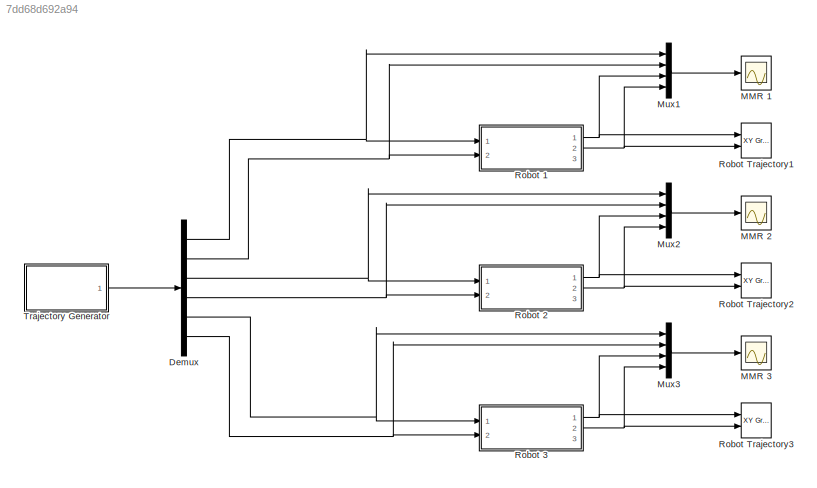
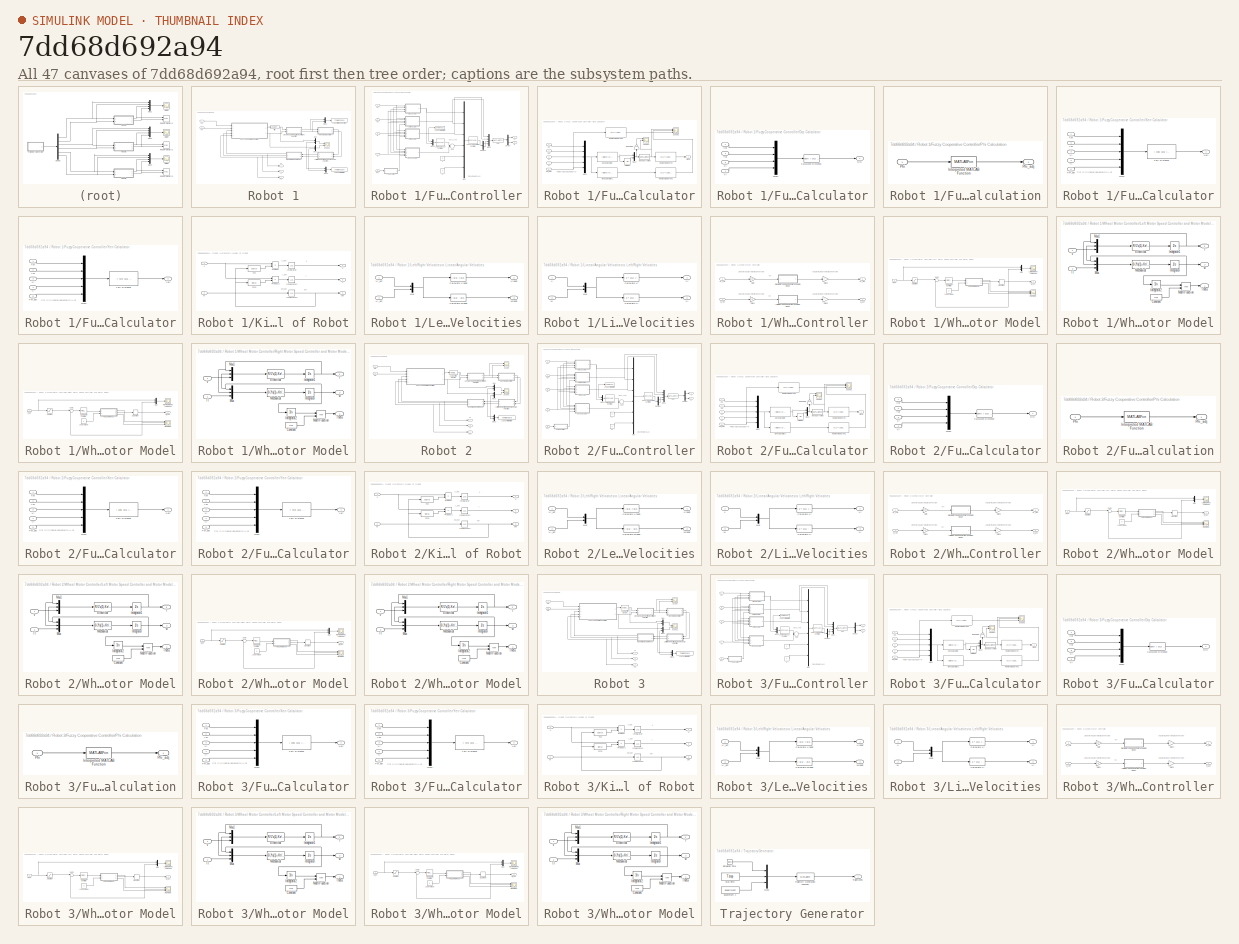
[diagram: thumbnail index - all 47 canvases of the model, root first then tree order]
MODEL slx_7dd68d692a94
KIND model
BLOCK [Demux] Demux
  DisplayOption = bar
  Outputs = 6
  Ports = [1, 6]
BLOCK [Scope] MMR 1
  DataFormat = StructureWithTime
  Floating = off
  LimitDataPoints = off
  NumInputPorts = 1
  Ports = [1]
  SampleTime = 0
  SaveName = Robot1
  SaveToWorkspace = on
  ShowLegends = off
  TimeRange = 100
  YMax = 10.5
  YMin = 0
BLOCK [Scope] MMR 2
  DataFormat = StructureWithTime
  Floating = off
  LimitDataPoints = off
  NumInputPorts = 1
  Ports = [1]
  SampleTime = 0
  SaveName = Robot2
  SaveToWorkspace = on
  ShowLegends = off
  TimeRange = 100
  YMax = 10.5
  YMin = 0
BLOCK [Scope] MMR 3
  DataFormat = StructureWithTime
  Floating = off
  LimitDataPoints = off
  NumInputPorts = 1
  Ports = [1]
  SampleTime = 0
  SaveName = Robot3
  SaveToWorkspace = on
  ShowLegends = off
  TimeRange = 100
  YMax = 10.5
  YMin = 0
BLOCK [Mux] Mux1
  DisplayOption = bar
  Ports = [4, 1]
BLOCK [Mux] Mux2
  DisplayOption = bar
  Ports = [4, 1]
BLOCK [Mux] Mux3
  DisplayOption = bar
  Ports = [4, 1]
BLOCK [SubSystem] Robot 1
  FunctionWithSeparateData = off
  MaskHideContents = off
  MinAlgLoopOccurrences = off
  Opaque = off
  Ports = [2, 3]
  PropExecContextOutsideSubsystem = off
  RTWSystemCode = Auto
  RequestExecContextInheritance = off
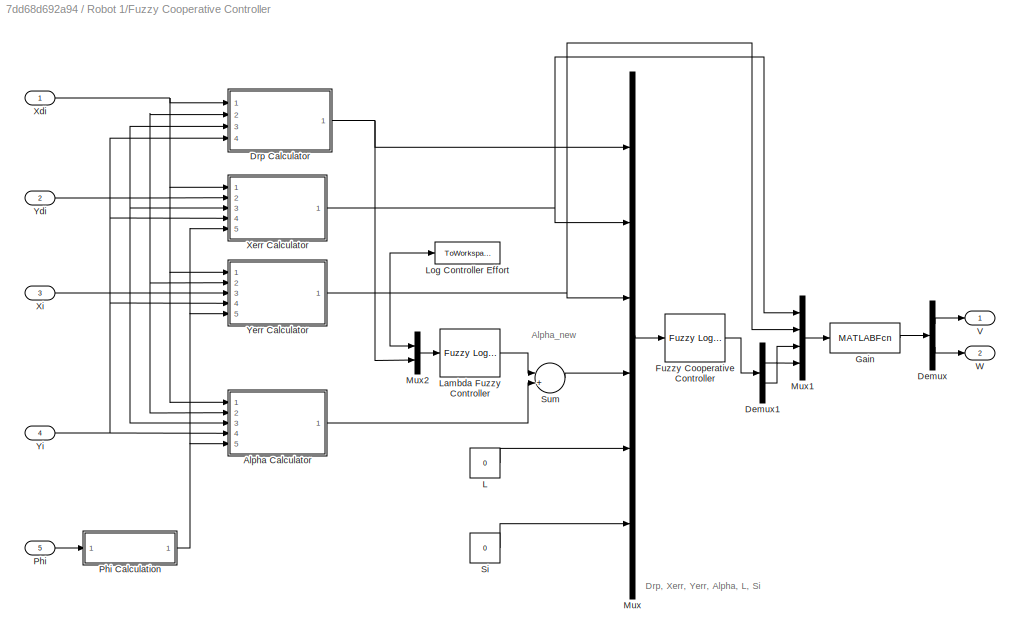
BLOCK [SubSystem] Robot 1/Fuzzy Cooperative Controller
  FunctionWithSeparateData = off
  MaskHideContents = off
  MinAlgLoopOccurrences = off
  Opaque = off
  Ports = [5, 2]
  PropExecContextOutsideSubsystem = off
  RTWSystemCode = Auto
  RequestExecContextInheritance = off
BLOCK [SubSystem] Robot 1/Fuzzy Cooperative Controller/Alpha Calculator
  FunctionWithSeparateData = off
  MaskHideContents = off
  MinAlgLoopOccurrences = off
  Opaque = off
  Ports = [5, 1]
  PropExecContextOutsideSubsystem = off
  RTWSystemCode = Auto
  RequestExecContextInheritance = off
BLOCK [Outport] Robot 1/Fuzzy Cooperative Controller/Alpha Calculator/Alpha
  IconDisplay = Port number
BLOCK [Fcn] Robot 1/Fuzzy Cooperative Controller/Alpha Calculator/Alpha Calculator
  Expr = ( atan2( ( u(2) - u(4) ), ( u(1) - u(3) ) ) ) - u(5)
BLOCK [Fcn] Robot 1/Fuzzy Cooperative Controller/Alpha Calculator/Alpha Calculator1
  Expr = ( atan2( ( u(2) - u(4) ), ( u(1) - u(3) ) ) )
BLOCK [MATLABFcn] Robot 1/Fuzzy Cooperative Controller/Alpha Calculator/Alpha Correction
  MATLABFcn = alpha_correct
  Ports = [1, 1]
BLOCK [Mux] Robot 1/Fuzzy Cooperative Controller/Alpha Calculator/Mux1
  DisplayOption = bar
  Inputs = 5
  Ports = [5, 1]
BLOCK [Mux] Robot 1/Fuzzy Cooperative Controller/Alpha Calculator/Mux2
  DisplayOption = bar
  Inputs = 2
  Ports = [2, 1]
BLOCK [Inport] Robot 1/Fuzzy Cooperative Controller/Alpha Calculator/Phi_adj
  IconDisplay = Port number
  Port = 5
BLOCK [Gain] Robot 1/Fuzzy Cooperative Controller/Alpha Calculator/Rad2Deg
  Gain = 180/pi
  OutDataTypeStr = Inherit: Inherit via internal rule
  ParamDataTypeStr = Inherit: Inherit via internal rule
  SaturateOnIntegerOverflow = off
BLOCK [Fcn] Robot 1/Fuzzy Cooperative Controller/Alpha Calculator/Radians to Degree
  Expr = u(1) * (180 / pi)
BLOCK [Fcn] Robot 1/Fuzzy Cooperative Controller/Alpha Calculator/Radians to Degree1
  Expr = u(1) * (180 / pi)
BLOCK [Fcn] Robot 1/Fuzzy Cooperative Controller/Alpha Calculator/Radians to Degree2
  Expr = u(1) * (180 / pi)
BLOCK [Scope] Robot 1/Fuzzy Cooperative Controller/Alpha Calculator/Scope1
  DataFormat = StructureWithTime
  Floating = off
  LimitDataPoints = off
  NumInputPorts = 3
  Ports = [3]
  SampleTime = 0
  SaveName = ScopeData4
  ShowLegends = off
  YMax = 50~200~200
  YMin = -325~-200~-175
  ZoomMode = xonly
BLOCK [Scope] Robot 1/Fuzzy Cooperative Controller/Alpha Calculator/Scope2
  DataFormat = StructureWithTime
  Floating = off
  LimitDataPoints = off
  NumInputPorts = 3
  Ports = [3]
  SampleTime = 0
  SaveName = ScopeData2
  ShowLegends = off
  YMax = 50~200~200
  YMin = -325~-200~-175
  ZoomMode = xonly
BLOCK [UnitDelay] Robot 1/Fuzzy Cooperative Controller/Alpha Calculator/Unit Delay
  SampleTime = -1
BLOCK [Inport] Robot 1/Fuzzy Cooperative Controller/Alpha Calculator/Xdi
  IconDisplay = Port number
BLOCK [Inport] Robot 1/Fuzzy Cooperative Controller/Alpha Calculator/Xi
  IconDisplay = Port number
  Port = 3
BLOCK [Inport] Robot 1/Fuzzy Cooperative Controller/Alpha Calculator/Ydi
  IconDisplay = Port number
  Port = 2
BLOCK [Inport] Robot 1/Fuzzy Cooperative Controller/Alpha Calculator/Yi
  IconDisplay = Port number
  Port = 4
BLOCK [Demux] Robot 1/Fuzzy Cooperative Controller/Demux
  DisplayOption = bar
  Outputs = 2
  Ports = [1, 2]
BLOCK [Demux] Robot 1/Fuzzy Cooperative Controller/Demux1
  DisplayOption = bar
  Outputs = 2
  Ports = [1, 2]
BLOCK [SubSystem] Robot 1/Fuzzy Cooperative Controller/Drp Calculator
  FunctionWithSeparateData = off
  MaskHideContents = off
  MinAlgLoopOccurrences = off
  Opaque = off
  Ports = [4, 1]
  PropExecContextOutsideSubsystem = off
  RTWSystemCode = Auto
  RequestExecContextInheritance = off
BLOCK [Fcn] Robot 1/Fuzzy Cooperative Controller/Drp Calculator/Calculate Distance
  Expr = sqrt( ( u(1) - u(3) )^2 +  ( u(2) - u(4) )^2   )
BLOCK [Outport] Robot 1/Fuzzy Cooperative Controller/Drp Calculator/Drp
  IconDisplay = Port number
BLOCK [Mux] Robot 1/Fuzzy Cooperative Controller/Drp Calculator/Mux1
  DisplayOption = bar
  Ports = [4, 1]
BLOCK [Inport] Robot 1/Fuzzy Cooperative Controller/Drp Calculator/Xdi
  IconDisplay = Port number
BLOCK [Inport] Robot 1/Fuzzy Cooperative Controller/Drp Calculator/Xi
  IconDisplay = Port number
  Port = 3
BLOCK [Inport] Robot 1/Fuzzy Cooperative Controller/Drp Calculator/Ydi
  IconDisplay = Port number
  Port = 2
BLOCK [Inport] Robot 1/Fuzzy Cooperative Controller/Drp Calculator/Yi
  IconDisplay = Port number
  Port = 4
BLOCK [Reference] Robot 1/Fuzzy Cooperative Controller/Fuzzy Cooperative Controller  REF=fuzblock/Fuzzy Logic   (lib defined in mdl_858b3b3e7478)
Controller
  Ports = [1, 1]
  SourceBlock = fuzblock/Fuzzy Logic \nController
  SourceType = FIS
  fis = FuzzyCoperativeController
BLOCK [MATLABFcn] Robot 1/Fuzzy Cooperative Controller/Gain
  MATLABFcn = gain
  Ports = [1, 1]
BLOCK [Constant] Robot 1/Fuzzy Cooperative Controller/L
  Value = 0
BLOCK [Reference] Robot 1/Fuzzy Cooperative Controller/Lambda Fuzzy Controller  REF=fuzblock/Fuzzy Logic   (lib defined in mdl_858b3b3e7478)
Controller
  Ports = [1, 1]
  SourceBlock = fuzblock/Fuzzy Logic \nController
  SourceType = FIS
  fis = LamdaFuzzyController
BLOCK [ToWorkspace] Robot 1/Fuzzy Cooperative Controller/Log Controller Effort
  MaxDataPoints = inf
  Ports = [1]
  SampleTime = -1
  SaveFormat = Structure With Time
  VariableName = Robot1_Yerr
BLOCK [Mux] Robot 1/Fuzzy Cooperative Controller/Mux
  DisplayOption = bar
  Inputs = 6
  Ports = [6, 1]
BLOCK [Mux] Robot 1/Fuzzy Cooperative Controller/Mux1
  DisplayOption = bar
  Ports = [4, 1]
BLOCK [Mux] Robot 1/Fuzzy Cooperative Controller/Mux2
  DisplayOption = bar
  Inputs = 2
  Ports = [2, 1]
BLOCK [Inport] Robot 1/Fuzzy Cooperative Controller/Phi
  IconDisplay = Port number
  Port = 5
BLOCK [SubSystem] Robot 1/Fuzzy Cooperative Controller/Phi Calculation
  FunctionWithSeparateData = off
  MaskHideContents = off
  MinAlgLoopOccurrences = off
  Opaque = off
  Ports = [1, 1]
  PropExecContextOutsideSubsystem = off
  RTWSystemCode = Auto
  RequestExecContextInheritance = off
BLOCK [MATLABFcn] Robot 1/Fuzzy Cooperative Controller/Phi Calculation/Interpreted MATLAB Function
  MATLABFcn = PhiAdjust
  Ports = [1, 1]
BLOCK [Inport] Robot 1/Fuzzy Cooperative Controller/Phi Calculation/Phi
  IconDisplay = Port number
BLOCK [Outport] Robot 1/Fuzzy Cooperative Controller/Phi Calculation/Phi_adj
  IconDisplay = Port number
BLOCK [Constant] Robot 1/Fuzzy Cooperative Controller/Si
  Value = 0
BLOCK [Sum] Robot 1/Fuzzy Cooperative Controller/Sum
  IconShape = round
  InputSameDT = off
  Inputs = |+||+|
  OutDataTypeStr = Inherit: Inherit via internal rule
  Ports = [2, 1]
  SaturateOnIntegerOverflow = off
BLOCK [Outport] Robot 1/Fuzzy Cooperative Controller/V
  IconDisplay = Port number
BLOCK [Outport] Robot 1/Fuzzy Cooperative Controller/W
  IconDisplay = Port number
  Port = 2
BLOCK [Inport] Robot 1/Fuzzy Cooperative Controller/Xdi
  IconDisplay = Port number
BLOCK [SubSystem] Robot 1/Fuzzy Cooperative Controller/Xerr Calculator
  FunctionWithSeparateData = off
  MaskHideContents = off
  MinAlgLoopOccurrences = off
  Opaque = off
  Ports = [5, 1]
  PropExecContextOutsideSubsystem = off
  RTWSystemCode = Auto
  RequestExecContextInheritance = off
BLOCK [Mux] Robot 1/Fuzzy Cooperative Controller/Xerr Calculator/Mux1
  DisplayOption = bar
  Inputs = 5
  Ports = [5, 1]
BLOCK [Inport] Robot 1/Fuzzy Cooperative Controller/Xerr Calculator/Phi_adj
  IconDisplay = Port number
  Port = 5
BLOCK [Inport] Robot 1/Fuzzy Cooperative Controller/Xerr Calculator/Xdi
  IconDisplay = Port number
BLOCK [Outport] Robot 1/Fuzzy Cooperative Controller/Xerr Calculator/Xerr
  IconDisplay = Port number
BLOCK [Fcn] Robot 1/Fuzzy Cooperative Controller/Xerr Calculator/Xerr Distance
  Expr = ( cos( u(5) ) * ( u(1) - u(3) ) ) +  ( sin( u(5) ) * ( ( u(2) - u(4) ) ) )
BLOCK [Inport] Robot 1/Fuzzy Cooperative Controller/Xerr Calculator/Xi
  IconDisplay = Port number
  Port = 3
BLOCK [Inport] Robot 1/Fuzzy Cooperative Controller/Xerr Calculator/Ydi
  IconDisplay = Port number
  Port = 2
BLOCK [Inport] Robot 1/Fuzzy Cooperative Controller/Xerr Calculator/Yi
  IconDisplay = Port number
  Port = 4
BLOCK [Inport] Robot 1/Fuzzy Cooperative Controller/Xi
  IconDisplay = Port number
  Port = 3
BLOCK [Inport] Robot 1/Fuzzy Cooperative Controller/Ydi
  IconDisplay = Port number
  Port = 2
BLOCK [SubSystem] Robot 1/Fuzzy Cooperative Controller/Yerr Calculator
  FunctionWithSeparateData = off
  MaskHideContents = off
  MinAlgLoopOccurrences = off
  Opaque = off
  Ports = [5, 1]
  PropExecContextOutsideSubsystem = off
  RTWSystemCode = Auto
  RequestExecContextInheritance = off
BLOCK [Mux] Robot 1/Fuzzy Cooperative Controller/Yerr Calculator/Mux1
  DisplayOption = bar
  Inputs = 5
  Ports = [5, 1]
BLOCK [Inport] Robot 1/Fuzzy Cooperative Controller/Yerr Calculator/Phi_adj
  IconDisplay = Port number
  Port = 5
BLOCK [Inport] Robot 1/Fuzzy Cooperative Controller/Yerr Calculator/Xdi
  IconDisplay = Port number
BLOCK [Inport] Robot 1/Fuzzy Cooperative Controller/Yerr Calculator/Xi
  IconDisplay = Port number
  Port = 3
BLOCK [Inport] Robot 1/Fuzzy Cooperative Controller/Yerr Calculator/Ydi
  IconDisplay = Port number
  Port = 2
BLOCK [Outport] Robot 1/Fuzzy Cooperative Controller/Yerr Calculator/Yerr
  IconDisplay = Port number
BLOCK [Fcn] Robot 1/Fuzzy Cooperative Controller/Yerr Calculator/Yerr Distance
  Expr = -( sin( u(5) ) * ( ( u(1) - u(3) ) ) ) + ( cos( u(5) ) * ( u(2) - u(4) ) )
BLOCK [Inport] Robot 1/Fuzzy Cooperative Controller/Yerr Calculator/Yi
  IconDisplay = Port number
  Port = 4
BLOCK [Inport] Robot 1/Fuzzy Cooperative Controller/Yi
  IconDisplay = Port number
  Port = 4
BLOCK [SubSystem] Robot 1/Kinematic Model of Robot
  FunctionWithSeparateData = off
  MaskHideContents = off
  MinAlgLoopOccurrences = off
  Opaque = off
  Ports = [2, 3]
  PropExecContextOutsideSubsystem = off
  RTWSystemCode = Auto
  RequestExecContextInheritance = off
BLOCK [Fcn] Robot 1/Kinematic Model of Robot/Fcn
  Expr = cos(u)
BLOCK [Fcn] Robot 1/Kinematic Model of Robot/Fcn1
  Expr = sin(u)
BLOCK [Integrator] Robot 1/Kinematic Model of Robot/Integrator
  InitialCondition = R1_xi
  Ports = [1, 1]
BLOCK [Integrator] Robot 1/Kinematic Model of Robot/Integrator1
  InitialCondition = R1_yi
  Ports = [1, 1]
BLOCK [Integrator] Robot 1/Kinematic Model of Robot/Integrator2
  InitialCondition = R1_phi
  Ports = [1, 1]
BLOCK [Product] Robot 1/Kinematic Model of Robot/Product
  InputSameDT = off
  OutDataTypeStr = Inherit: Inherit via internal rule
  Ports = [2, 1]
  RndMeth = Floor
  SaturateOnIntegerOverflow = off
BLOCK [Product] Robot 1/Kinematic Model of Robot/Product1
  InputSameDT = off
  OutDataTypeStr = Inherit: Inherit via internal rule
  Ports = [2, 1]
  RndMeth = Floor
  SaturateOnIntegerOverflow = off
BLOCK [Outport] Robot 1/Kinematic Model of Robot/phi
  IconDisplay = Port number
  Port = 3
BLOCK [Inport] Robot 1/Kinematic Model of Robot/v
  IconDisplay = Port number
BLOCK [Inport] Robot 1/Kinematic Model of Robot/w
  IconDisplay = Port number
  Port = 2
BLOCK [Outport] Robot 1/Kinematic Model of Robot/x
  IconDisplay = Port number
BLOCK [Outport] Robot 1/Kinematic Model of Robot/y
  IconDisplay = Port number
  Port = 2
BLOCK [SubSystem] Robot 1/Left//Right Velocities to Linear//Angular Velocities
  FunctionWithSeparateData = off
  MaskHideContents = off
  MinAlgLoopOccurrences = off
  Opaque = off
  Ports = [2, 2]
  PropExecContextOutsideSubsystem = off
  RTWSystemCode = Auto
  RequestExecContextInheritance = off
BLOCK [Fcn] Robot 1/Left//Right Velocities to Linear//Angular Velocities/Calculate Vrobot
  Expr = (  u(1) + u(2) ) / 2
BLOCK [Fcn] Robot 1/Left//Right Velocities to Linear//Angular Velocities/Calculate Wrobot
  Expr = (  u(1) - u(2) ) / Len
BLOCK [Mux] Robot 1/Left//Right Velocities to Linear//Angular Velocities/Mux
  DisplayOption = bar
  Inputs = 2
  Ports = [2, 1]
BLOCK [Inport] Robot 1/Left//Right Velocities to Linear//Angular Velocities/Vl_act
  IconDisplay = Port number
  Port = 2
BLOCK [Inport] Robot 1/Left//Right Velocities to Linear//Angular Velocities/Vr_act
  IconDisplay = Port number
BLOCK [Outport] Robot 1/Left//Right Velocities to Linear//Angular Velocities/Vrobot
  IconDisplay = Port number
BLOCK [Outport] Robot 1/Left//Right Velocities to Linear//Angular Velocities/Wrobot
  IconDisplay = Port number
  Port = 2
BLOCK [SubSystem] Robot 1/Linear//Angular Velocities to Left//Right Velocities
  FunctionWithSeparateData = off
  MaskHideContents = off
  MinAlgLoopOccurrences = off
  Opaque = off
  Ports = [2, 2]
  PropExecContextOutsideSubsystem = off
  RTWSystemCode = Auto
  RequestExecContextInheritance = off
BLOCK [Fcn] Robot 1/Linear//Angular Velocities to Left//Right Velocities/Calculate Vl
  Expr = ( 2 * u(1) - u(2) * Len ) / 2
BLOCK [Fcn] Robot 1/Linear//Angular Velocities to Left//Right Velocities/Calculate Vr
  Expr = ( 2 * u(1) + u(2) * Len ) / 2
BLOCK [Mux] Robot 1/Linear//Angular Velocities to Left//Right Velocities/Mux
  DisplayOption = bar
  Inputs = 2
  Ports = [2, 1]
BLOCK [Inport] Robot 1/Linear//Angular Velocities to Left//Right Velocities/V
  IconDisplay = Port number
BLOCK [Outport] Robot 1/Linear//Angular Velocities to Left//Right Velocities/Vl
  IconDisplay = Port number
  Port = 2
BLOCK [Outport] Robot 1/Linear//Angular Velocities to Left//Right Velocities/Vr
  IconDisplay = Port number
BLOCK [Inport] Robot 1/Linear//Angular Velocities to Left//Right Velocities/W
  IconDisplay = Port number
  Port = 2
BLOCK [ToWorkspace] Robot 1/Log Controller Effort
  MaxDataPoints = inf
  Ports = [1]
  SampleTime = -1
  SaveFormat = Structure With Time
  VariableName = Robot1_VW
BLOCK [ToWorkspace] Robot 1/Log Left//Right Velocities
  MaxDataPoints = inf
  Ports = [1]
  SampleTime = -1
  SaveFormat = Structure With Time
  VariableName = Robot1_VrVl
BLOCK [Mux] Robot 1/Mux
  DisplayOption = bar
  Inputs = 2
  Ports = [2, 1]
BLOCK [Mux] Robot 1/Mux1
  DisplayOption = bar
  Inputs = 2
  Ports = [2, 1]
BLOCK [Mux] Robot 1/Mux2
  DisplayOption = bar
  Inputs = 2
  Ports = [2, 1]
BLOCK [Mux] Robot 1/Mux3
  DisplayOption = bar
  Inputs = 2
  Ports = [2, 1]
BLOCK [Outport] Robot 1/Phi
  IconDisplay = Port number
  Port = 3
BLOCK [Scope] Robot 1/Scope1
  DataFormat = StructureWithTime
  Floating = off
  LimitDataPoints = off
  NumInputPorts = 2
  Ports = [2]
  SampleTime = 0
  SaveName = ScopeData5
  ShowLegends = off
  YMax = 5~5
  YMin = -5~-5
BLOCK [SubSystem] Robot 1/Wheel Motor Controller
  FunctionWithSeparateData = off
  MaskHideContents = off
  MinAlgLoopOccurrences = off
  Opaque = off
  Ports = [2, 2]
  PropExecContextOutsideSubsystem = off
  RTWSystemCode = Auto
  RequestExecContextInheritance = off
BLOCK [Gain] Robot 1/Wheel Motor Controller/Gain
  Gain = 1/r
  OutDataTypeStr = Inherit: Inherit via internal rule
  ParamDataTypeStr = Inherit: Inherit via internal rule
  SaturateOnIntegerOverflow = off
BLOCK [Gain] Robot 1/Wheel Motor Controller/Gain1
  Gain = 1/r
  OutDataTypeStr = Inherit: Inherit via internal rule
  ParamDataTypeStr = Inherit: Inherit via internal rule
  SaturateOnIntegerOverflow = off
BLOCK [Gain] Robot 1/Wheel Motor Controller/Gain2
  Gain = r
  OutDataTypeStr = Inherit: Inherit via internal rule
  ParamDataTypeStr = Inherit: Inherit via internal rule
  SaturateOnIntegerOverflow = off
BLOCK [Gain] Robot 1/Wheel Motor Controller/Gain3
  Gain = r
  OutDataTypeStr = Inherit: Inherit via internal rule
  ParamDataTypeStr = Inherit: Inherit via internal rule
  SaturateOnIntegerOverflow = off
BLOCK [SubSystem] Robot 1/Wheel Motor Controller/Left Motor Speed Controller and Motor Model
  FunctionWithSeparateData = off
  MaskHideContents = off
  MinAlgLoopOccurrences = off
  Opaque = off
  Ports = [1, 1]
  PropExecContextOutsideSubsystem = off
  RTWSystemCode = Auto
  RequestExecContextInheritance = off
BLOCK [Scope] Robot 1/Wheel Motor Controller/Left Motor Speed Controller and Motor Model/Left Motor Ref vs Act Speed
  DataFormat = StructureWithTime
  Floating = off
  LimitDataPoints = off
  NumInputPorts = 1
  Ports = [1]
  SampleTime = 0
  SaveName = ScopeData6
  ShowLegends = off
  TimeRange = 20
  YMax = 0.12
  YMin = -0.01
BLOCK [Constant] Robot 1/Wheel Motor Controller/Left Motor Speed Controller and Motor Model/Load Torque
  Value = 0
BLOCK [Mux] Robot 1/Wheel Motor Controller/Left Motor Speed Controller and Motor Model/Mux
  DisplayOption = bar
  Inputs = 2
  Ports = [2, 1]
BLOCK [SubSystem] Robot 1/Wheel Motor Controller/Left Motor Speed Controller and Motor Model/PMDC Motor Model
  FunctionWithSeparateData = off
  MaskHideContents = off
  MinAlgLoopOccurrences = off
  Opaque = off
  Ports = [2, 3]
  PropExecContextOutsideSubsystem = off
  RTWSystemCode = Auto
  RequestExecContextInheritance = off
BLOCK [Constant] Robot 1/Wheel Motor Controller/Left Motor Speed Controller and Motor Model/PMDC Motor Model/Constant
  Value = 2*pi
BLOCK [Fcn] Robot 1/Wheel Motor Controller/Left Motor Speed Controller and Motor Model/PMDC Motor Model/Electrical
  Expr = -R/L*u(1)-Ke/L*u(2)+u(3)/L
BLOCK [Outport] Robot 1/Wheel Motor Controller/Left Motor Speed Controller and Motor Model/PMDC Motor Model/I
  IconDisplay = Port number
  Port = 3
BLOCK [Integrator] Robot 1/Wheel Motor Controller/Left Motor Speed Controller and Motor Model/PMDC Motor Model/Integrator
  Ports = [1, 1]
BLOCK [Integrator] Robot 1/Wheel Motor Controller/Left Motor Speed Controller and Motor Model/PMDC Motor Model/Integrator1
  Ports = [1, 1]
BLOCK [Integrator] Robot 1/Wheel Motor Controller/Left Motor Speed Controller and Motor Model/PMDC Motor Model/Integrator2
  Ports = [1, 1]
BLOCK [Math] Robot 1/Wheel Motor Controller/Left Motor Speed Controller and Motor Model/PMDC Motor Model/Math Function
  Operator = rem
  Ports = [2, 1]
BLOCK [Fcn] Robot 1/Wheel Motor Controller/Left Motor Speed Controller and Motor Model/PMDC Motor Model/Mechanical
  Expr = -B/J*u(1)+Kt/J*u[2]-u(3)/J
BLOCK [Mux] Robot 1/Wheel Motor Controller/Left Motor Speed Controller and Motor Model/PMDC Motor Model/Mux
  DisplayOption = bar
  Inputs = 3
  Ports = [3, 1]
BLOCK [Mux] Robot 1/Wheel Motor Controller/Left Motor Speed Controller and Motor Model/PMDC Motor Model/Mux1
  DisplayOption = bar
  Inputs = 3
  Ports = [3, 1]
BLOCK [Outport] Robot 1/Wheel Motor Controller/Left Motor Speed Controller and Motor Model/PMDC Motor Model/Theta
  IconDisplay = Port number
BLOCK [Inport] Robot 1/Wheel Motor Controller/Left Motor Speed Controller and Motor Model/PMDC Motor Model/Tl
  IconDisplay = Port number
  Port = 2
BLOCK [Inport] Robot 1/Wheel Motor Controller/Left Motor Speed Controller and Motor Model/PMDC Motor Model/V
  IconDisplay = Port number
BLOCK [Outport] Robot 1/Wheel Motor Controller/Left Motor Speed Controller and Motor Model/PMDC Motor Model/w
  IconDisplay = Port number
  Port = 2
BLOCK [Quantizer] Robot 1/Wheel Motor Controller/Left Motor Speed Controller and Motor Model/Quantizer
  QuantizationInterval = 0.001
BLOCK [Scope] Robot 1/Wheel Motor Controller/Left Motor Speed Controller and Motor Model/Right Motor
  DataFormat = StructureWithTime
  Floating = off
  NumInputPorts = 3
  Ports = [3]
  SampleTime = 0
  ShowLegends = off
  TimeRange = 20
  YMax = 5~5~5
  YMin = -5~-5~-5
  ZoomMode = yonly
BLOCK [Saturate] Robot 1/Wheel Motor Controller/Left Motor Speed Controller and Motor Model/Saturation
  InputPortMap = u0
  LowerLimit = -2000
  Ports = [1, 1]
  UpperLimit = 2000
BLOCK [Reference] Robot 1/Wheel Motor Controller/Left Motor Speed Controller and Motor Model/Speed PID Controller  REF=simulink/Continuous/PID Controller
  AntiWindupMode = none
  Controller = PID
  D = -0.0516542631137251
  DOutDataTypeStr = Inherit: Inherit via internal rule
  DOutMax = []
  DOutMin = []
  DParamDataTypeStr = Inherit: Inherit via internal rule
  DParamMax = []
  DParamMin = []
  ExternalReset = none
  FilterContinuousStateAttributes = ''
  FilterMethod = Forward Euler
  FilterOutDataTypeStr = Inherit: Inherit via internal rule
  FilterOutMax = []
  FilterOutMin = []
  FilterRTWStateStorageClass = Auto
  FilterStateMustResolveToSignalObject = off
  Form = Parallel
  I = 9.69423314548269
  IOutDataTypeStr = Inherit: Inherit via internal rule
  IOutMax = []
  IOutMin = []
  IParamDataTypeStr = Inherit: Inherit via internal rule
  IParamMax = []
  IParamMin = []
  IgnoreLimit = off
  InitialConditionForFilter = 0
  InitialConditionForIntegrator = 0
  InitialConditionSource = internal
  IntegratorContinuousStateAttributes = ''
  IntegratorMethod = Forward Euler
  IntegratorOutDataTypeStr = Inherit: Inherit via internal rule
  IntegratorOutMax = []
  IntegratorOutMin = []
  IntegratorRTWStateStorageClass = Auto
  IntegratorStateMustResolveToSignalObject = off
  Kb = 1
  KbOutDataTypeStr = Inherit: Inherit via internal rule
  KbOutMax = []
  KbOutMin = []
  KbParamDataTypeStr = Inherit: Inherit via internal rule
  KbParamMax = []
  KbParamMin = []
  Kt = 1
  KtOutDataTypeStr = Inherit: Inherit via internal rule
  KtOutMax = []
  KtOutMin = []
  KtParamDataTypeStr = Inherit: Inherit via internal rule
  KtParamMax = []
  KtParamMin = []
  LimitOutput = off
  LinearizeAsGain = on
  LockScale = off
  LowerSaturationLimit = -160
  N = 13.2920819861493
  NOutDataTypeStr = Inherit: Inherit via internal rule
  NOutMax = []
  NOutMin = []
  NParamDataTypeStr = Inherit: Inherit via internal rule
  NParamMax = []
  NParamMin = []
  P = 1.39131822817714
  POutDataTypeStr = Inherit: Inherit via internal rule
  POutMax = []
  POutMin = []
  PParamDataTypeStr = Inherit: Inherit via internal rule
  PParamMax = []
  PParamMin = []
  Ports = [1, 1]
  RndMeth = Floor
  SampleTime = 1
  SaturateOnIntegerOverflow = off
  SaturationOutDataTypeStr = Inherit: Same as input
  SaturationOutMax = []
  SaturationOutMin = []
  SourceBlock = simulink/Continuous/PID Controller
  SourceType = PID 1dof
  SumAccumDataTypeStr = Inherit: Inherit via internal rule
  SumDAccumDataTypeStr = Inherit: Inherit via internal rule
  SumDOutDataTypeStr = Inherit: Inherit via internal rule
  SumDOutMax = []
  SumDOutMin = []
  SumI1AccumDataTypeStr = Inherit: Inherit via internal rule
  SumI1OutDataTypeStr = Inherit: Inherit via internal rule
  SumI1OutMax = []
  SumI1OutMin = []
  SumI2AccumDataTypeStr = Inherit: Inherit via internal rule
  SumI2OutDataTypeStr = Inherit: Inherit via internal rule
  SumI2OutMax = []
  SumI2OutMin = []
  SumI3AccumDataTypeStr = Inherit: Inherit via internal rule
  SumI3OutDataTypeStr = Inherit: Inherit via internal rule
  SumI3OutMax = []
  SumI3OutMin = []
  SumOutDataTypeStr = Inherit: Inherit via internal rule
  SumOutMax = []
  SumOutMin = []
  TimeDomain = Continuous-time
  TrackingMode = off
  UpperSaturationLimit = 160
  ZeroCross = on
BLOCK [Sum] Robot 1/Wheel Motor Controller/Left Motor Speed Controller and Motor Model/Sum1
  IconShape = round
  InputSameDT = off
  Inputs = |+-
  OutDataTypeStr = Inherit: Inherit via internal rule
  Ports = [2, 1]
  SaturateOnIntegerOverflow = off
BLOCK [Outport] Robot 1/Wheel Motor Controller/Left Motor Speed Controller and Motor Model/W_act
  IconDisplay = Port number
BLOCK [Inport] Robot 1/Wheel Motor Controller/Left Motor Speed Controller and Motor Model/W_ref
  IconDisplay = Port number
BLOCK [SubSystem] Robot 1/Wheel Motor Controller/Right Motor Speed Controller and Motor Model
  FunctionWithSeparateData = off
  MaskHideContents = off
  MinAlgLoopOccurrences = off
  Opaque = off
  Ports = [1, 1]
  PropExecContextOutsideSubsystem = off
  RTWSystemCode = Auto
  RequestExecContextInheritance = off
BLOCK [Constant] Robot 1/Wheel Motor Controller/Right Motor Speed Controller and Motor Model/Load Torque
  Value = 0
BLOCK [Mux] Robot 1/Wheel Motor Controller/Right Motor Speed Controller and Motor Model/Mux
  DisplayOption = bar
  Inputs = 2
  Ports = [2, 1]
BLOCK [SubSystem] Robot 1/Wheel Motor Controller/Right Motor Speed Controller and Motor Model/PMDC Motor Model
  FunctionWithSeparateData = off
  MaskHideContents = off
  MinAlgLoopOccurrences = off
  Opaque = off
  Ports = [2, 3]
  PropExecContextOutsideSubsystem = off
  RTWSystemCode = Auto
  RequestExecContextInheritance = off
BLOCK [Constant] Robot 1/Wheel Motor Controller/Right Motor Speed Controller and Motor Model/PMDC Motor Model/Constant
  Value = 2*pi
BLOCK [Fcn] Robot 1/Wheel Motor Controller/Right Motor Speed Controller and Motor Model/PMDC Motor Model/Electrical
  Expr = -R/L*u(1)-Ke/L*u(2)+u(3)/L
BLOCK [Outport] Robot 1/Wheel Motor Controller/Right Motor Speed Controller and Motor Model/PMDC Motor Model/I
  IconDisplay = Port number
  Port = 3
BLOCK [Integrator] Robot 1/Wheel Motor Controller/Right Motor Speed Controller and Motor Model/PMDC Motor Model/Integrator
  Ports = [1, 1]
BLOCK [Integrator] Robot 1/Wheel Motor Controller/Right Motor Speed Controller and Motor Model/PMDC Motor Model/Integrator1
  Ports = [1, 1]
BLOCK [Integrator] Robot 1/Wheel Motor Controller/Right Motor Speed Controller and Motor Model/PMDC Motor Model/Integrator2
  Ports = [1, 1]
BLOCK [Math] Robot 1/Wheel Motor Controller/Right Motor Speed Controller and Motor Model/PMDC Motor Model/Math Function
  Operator = rem
  Ports = [2, 1]
BLOCK [Fcn] Robot 1/Wheel Motor Controller/Right Motor Speed Controller and Motor Model/PMDC Motor Model/Mechanical
  Expr = -B/J*u(1)+Kt/J*u[2]-u(3)/J
BLOCK [Mux] Robot 1/Wheel Motor Controller/Right Motor Speed Controller and Motor Model/PMDC Motor Model/Mux
  DisplayOption = bar
  Inputs = 3
  Ports = [3, 1]
BLOCK [Mux] Robot 1/Wheel Motor Controller/Right Motor Speed Controller and Motor Model/PMDC Motor Model/Mux1
  DisplayOption = bar
  Inputs = 3
  Ports = [3, 1]
BLOCK [Outport] Robot 1/Wheel Motor Controller/Right Motor Speed Controller and Motor Model/PMDC Motor Model/Theta
  IconDisplay = Port number
BLOCK [Inport] Robot 1/Wheel Motor Controller/Right Motor Speed Controller and Motor Model/PMDC Motor Model/Tl
  IconDisplay = Port number
  Port = 2
BLOCK [Inport] Robot 1/Wheel Motor Controller/Right Motor Speed Controller and Motor Model/PMDC Motor Model/V
  IconDisplay = Port number
BLOCK [Outport] Robot 1/Wheel Motor Controller/Right Motor Speed Controller and Motor Model/PMDC Motor Model/w
  IconDisplay = Port number
  Port = 2
BLOCK [Quantizer] Robot 1/Wheel Motor Controller/Right Motor Speed Controller and Motor Model/Quantizer
  QuantizationInterval = 0.001
BLOCK [Scope] Robot 1/Wheel Motor Controller/Right Motor Speed Controller and Motor Model/Right Motor
  DataFormat = StructureWithTime
  Floating = off
  NumInputPorts = 3
  Ports = [3]
  SampleTime = 0
  ShowLegends = off
  TimeRange = 20
  YMax = 5~5~5
  YMin = -5~-5~-5
  ZoomMode = xonly
BLOCK [Scope] Robot 1/Wheel Motor Controller/Right Motor Speed Controller and Motor Model/Right Motor Ref vs Act Speed
  DataFormat = StructureWithTime
  Floating = off
  LimitDataPoints = off
  NumInputPorts = 1
  Ports = [1]
  SampleTime = 0
  SaveName = ScopeData1
  ShowLegends = off
  TimeRange = 20
  YMax = 0.12
  YMin = -0.01
  ZoomMode = xonly
BLOCK [Saturate] Robot 1/Wheel Motor Controller/Right Motor Speed Controller and Motor Model/Saturation
  InputPortMap = u0
  LowerLimit = -2000
  Ports = [1, 1]
  UpperLimit = 209.4
BLOCK [Reference] Robot 1/Wheel Motor Controller/Right Motor Speed Controller and Motor Model/Speed PID Controller  REF=simulink/Continuous/PID Controller
  AntiWindupMode = none
  Controller = PID
  D = -0.0516542631137251
  DOutDataTypeStr = Inherit: Inherit via internal rule
  DOutMax = []
  DOutMin = []
  DParamDataTypeStr = Inherit: Inherit via internal rule
  DParamMax = []
  DParamMin = []
  ExternalReset = none
  FilterContinuousStateAttributes = ''
  FilterMethod = Forward Euler
  FilterOutDataTypeStr = Inherit: Inherit via internal rule
  FilterOutMax = []
  FilterOutMin = []
  FilterRTWStateStorageClass = Auto
  FilterStateMustResolveToSignalObject = off
  Form = Parallel
  I = 9.69423314548269
  IOutDataTypeStr = Inherit: Inherit via internal rule
  IOutMax = []
  IOutMin = []
  IParamDataTypeStr = Inherit: Inherit via internal rule
  IParamMax = []
  IParamMin = []
  IgnoreLimit = off
  InitialConditionForFilter = 0
  InitialConditionForIntegrator = 0
  InitialConditionSource = internal
  IntegratorContinuousStateAttributes = ''
  IntegratorMethod = Forward Euler
  IntegratorOutDataTypeStr = Inherit: Inherit via internal rule
  IntegratorOutMax = []
  IntegratorOutMin = []
  IntegratorRTWStateStorageClass = Auto
  IntegratorStateMustResolveToSignalObject = off
  Kb = 1
  KbOutDataTypeStr = Inherit: Inherit via internal rule
  KbOutMax = []
  KbOutMin = []
  KbParamDataTypeStr = Inherit: Inherit via internal rule
  KbParamMax = []
  KbParamMin = []
  Kt = 1
  KtOutDataTypeStr = Inherit: Inherit via internal rule
  KtOutMax = []
  KtOutMin = []
  KtParamDataTypeStr = Inherit: Inherit via internal rule
  KtParamMax = []
  KtParamMin = []
  LimitOutput = off
  LinearizeAsGain = on
  LockScale = off
  LowerSaturationLimit = -160
  N = 13.2920819861493
  NOutDataTypeStr = Inherit: Inherit via internal rule
  NOutMax = []
  NOutMin = []
  NParamDataTypeStr = Inherit: Inherit via internal rule
  NParamMax = []
  NParamMin = []
  P = 1.39131822817714
  POutDataTypeStr = Inherit: Inherit via internal rule
  POutMax = []
  POutMin = []
  PParamDataTypeStr = Inherit: Inherit via internal rule
  PParamMax = []
  PParamMin = []
  Ports = [1, 1]
  RndMeth = Floor
  SampleTime = 1
  SaturateOnIntegerOverflow = off
  SaturationOutDataTypeStr = Inherit: Same as input
  SaturationOutMax = []
  SaturationOutMin = []
  SourceBlock = simulink/Continuous/PID Controller
  SourceType = PID 1dof
  SumAccumDataTypeStr = Inherit: Inherit via internal rule
  SumDAccumDataTypeStr = Inherit: Inherit via internal rule
  SumDOutDataTypeStr = Inherit: Inherit via internal rule
  SumDOutMax = []
  SumDOutMin = []
  SumI1AccumDataTypeStr = Inherit: Inherit via internal rule
  SumI1OutDataTypeStr = Inherit: Inherit via internal rule
  SumI1OutMax = []
  SumI1OutMin = []
  SumI2AccumDataTypeStr = Inherit: Inherit via internal rule
  SumI2OutDataTypeStr = Inherit: Inherit via internal rule
  SumI2OutMax = []
  SumI2OutMin = []
  SumI3AccumDataTypeStr = Inherit: Inherit via internal rule
  SumI3OutDataTypeStr = Inherit: Inherit via internal rule
  SumI3OutMax = []
  SumI3OutMin = []
  SumOutDataTypeStr = Inherit: Inherit via internal rule
  SumOutMax = []
  SumOutMin = []
  TimeDomain = Continuous-time
  TrackingMode = off
  UpperSaturationLimit = 160
  ZeroCross = on
BLOCK [Sum] Robot 1/Wheel Motor Controller/Right Motor Speed Controller and Motor Model/Sum1
  IconShape = round
  InputSameDT = off
  Inputs = |+-
  OutDataTypeStr = Inherit: Inherit via internal rule
  Ports = [2, 1]
  SaturateOnIntegerOverflow = off
BLOCK [Outport] Robot 1/Wheel Motor Controller/Right Motor Speed Controller and Motor Model/W_act
  IconDisplay = Port number
BLOCK [Inport] Robot 1/Wheel Motor Controller/Right Motor Speed Controller and Motor Model/W_ref
  IconDisplay = Port number
BLOCK [Outport] Robot 1/Wheel Motor Controller/Vl_act
  IconDisplay = Port number
  Port = 2
BLOCK [Inport] Robot 1/Wheel Motor Controller/Vl_ref
  IconDisplay = Port number
  Port = 2
BLOCK [Outport] Robot 1/Wheel Motor Controller/Vr_act
  IconDisplay = Port number
BLOCK [Inport] Robot 1/Wheel Motor Controller/Vr_ref
  IconDisplay = Port number
BLOCK [Inport] Robot 1/Xdi
  IconDisplay = Port number
BLOCK [Outport] Robot 1/Xi
  IconDisplay = Port number
BLOCK [Inport] Robot 1/Ydi
  IconDisplay = Port number
  Port = 2
BLOCK [Outport] Robot 1/Yi
  IconDisplay = Port number
  Port = 2
BLOCK [Reference] Robot 1/filter  REF=dsparch4/Analog
Filter Design
  N = 5
  Ports = [1, 1]
  Rp = 2
  Rs = 40
  SourceBlock = dsparch4/Analog\nFilter Design
  SourceType = Analog Filter Design
  Whi = 80
  Wlo = 10
  filttype = Lowpass
  method = Butterworth
BLOCK [SubSystem] Robot 2
  FunctionWithSeparateData = off
  MaskHideContents = off
  MinAlgLoopOccurrences = off
  Opaque = off
  Ports = [2, 3]
  PropExecContextOutsideSubsystem = off
  RTWSystemCode = Auto
  RequestExecContextInheritance = off
BLOCK [Reference] Robot 2/Analog Filter Design  REF=dsparch4/Analog
Filter Design
  N = 5
  Ports = [1, 1]
  Rp = 2
  Rs = 40
  SourceBlock = dsparch4/Analog\nFilter Design
  SourceType = Analog Filter Design
  Whi = 80
  Wlo = 10
  filttype = Lowpass
  method = Butterworth
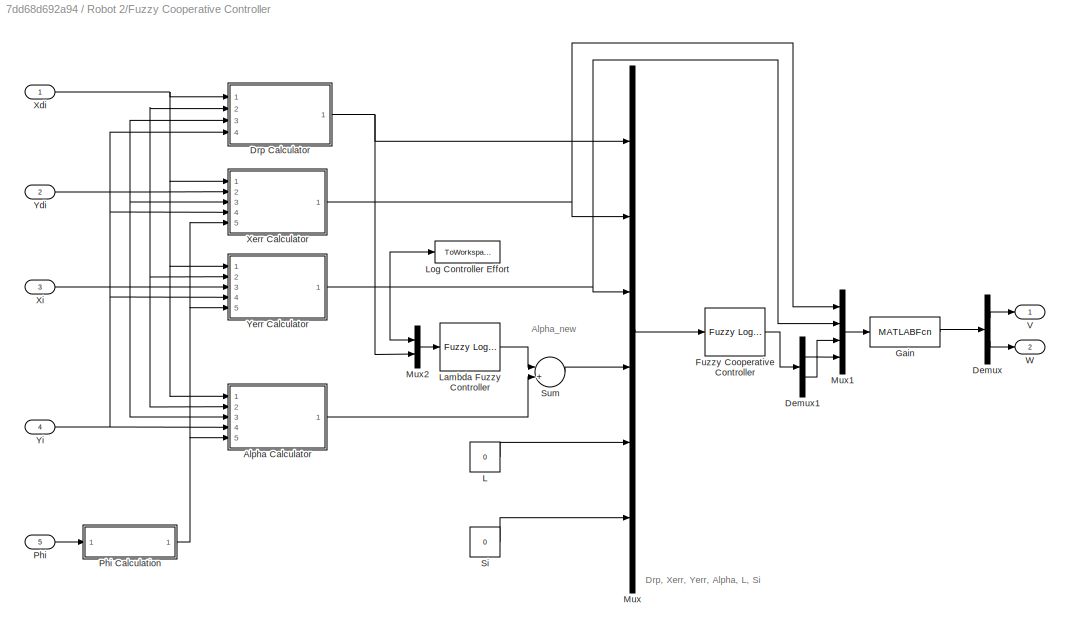
BLOCK [SubSystem] Robot 2/Fuzzy Cooperative Controller
  FunctionWithSeparateData = off
  MaskHideContents = off
  MinAlgLoopOccurrences = off
  Opaque = off
  Ports = [5, 2]
  PropExecContextOutsideSubsystem = off
  RTWSystemCode = Auto
  RequestExecContextInheritance = off
BLOCK [SubSystem] Robot 2/Fuzzy Cooperative Controller/Alpha Calculator
  FunctionWithSeparateData = off
  MaskHideContents = off
  MinAlgLoopOccurrences = off
  Opaque = off
  Ports = [5, 1]
  PropExecContextOutsideSubsystem = off
  RTWSystemCode = Auto
  RequestExecContextInheritance = off
BLOCK [Outport] Robot 2/Fuzzy Cooperative Controller/Alpha Calculator/Alpha
  IconDisplay = Port number
BLOCK [Fcn] Robot 2/Fuzzy Cooperative Controller/Alpha Calculator/Alpha Calculator
  Expr = ( atan2( ( u(2) - u(4) ), ( u(1) - u(3) ) ) ) - u(5)
BLOCK [Fcn] Robot 2/Fuzzy Cooperative Controller/Alpha Calculator/Alpha Calculator1
  Expr = ( atan2( ( u(2) - u(4) ), ( u(1) - u(3) ) ) )
BLOCK [MATLABFcn] Robot 2/Fuzzy Cooperative Controller/Alpha Calculator/Alpha Correction
  MATLABFcn = alpha_correct
  Ports = [1, 1]
BLOCK [Mux] Robot 2/Fuzzy Cooperative Controller/Alpha Calculator/Mux1
  DisplayOption = bar
  Inputs = 5
  Ports = [5, 1]
BLOCK [Mux] Robot 2/Fuzzy Cooperative Controller/Alpha Calculator/Mux2
  DisplayOption = bar
  Inputs = 2
  Ports = [2, 1]
BLOCK [Inport] Robot 2/Fuzzy Cooperative Controller/Alpha Calculator/Phi_adj
  IconDisplay = Port number
  Port = 5
BLOCK [Gain] Robot 2/Fuzzy Cooperative Controller/Alpha Calculator/Rad2Deg
  Gain = 180/pi
  OutDataTypeStr = Inherit: Inherit via internal rule
  ParamDataTypeStr = Inherit: Inherit via internal rule
  SaturateOnIntegerOverflow = off
BLOCK [Fcn] Robot 2/Fuzzy Cooperative Controller/Alpha Calculator/Radians to Degree
  Expr = u(1) * (180 / pi)
BLOCK [Fcn] Robot 2/Fuzzy Cooperative Controller/Alpha Calculator/Radians to Degree1
  Expr = u(1) * (180 / pi)
BLOCK [Fcn] Robot 2/Fuzzy Cooperative Controller/Alpha Calculator/Radians to Degree2
  Expr = u(1) * (180 / pi)
BLOCK [Scope] Robot 2/Fuzzy Cooperative Controller/Alpha Calculator/Scope1
  DataFormat = StructureWithTime
  Floating = off
  LimitDataPoints = off
  NumInputPorts = 3
  Ports = [3]
  SampleTime = 0
  SaveName = ScopeData4
  ShowLegends = off
  YMax = 50~200~200
  YMin = -325~-200~-175
  ZoomMode = xonly
BLOCK [Scope] Robot 2/Fuzzy Cooperative Controller/Alpha Calculator/Scope2
  DataFormat = StructureWithTime
  Floating = off
  LimitDataPoints = off
  NumInputPorts = 3
  Ports = [3]
  SampleTime = 0
  SaveName = ScopeData2
  ShowLegends = off
  YMax = 50~200~200
  YMin = -325~-200~-175
  ZoomMode = xonly
BLOCK [UnitDelay] Robot 2/Fuzzy Cooperative Controller/Alpha Calculator/Unit Delay
  SampleTime = -1
BLOCK [Inport] Robot 2/Fuzzy Cooperative Controller/Alpha Calculator/Xdi
  IconDisplay = Port number
BLOCK [Inport] Robot 2/Fuzzy Cooperative Controller/Alpha Calculator/Xi
  IconDisplay = Port number
  Port = 3
BLOCK [Inport] Robot 2/Fuzzy Cooperative Controller/Alpha Calculator/Ydi
  IconDisplay = Port number
  Port = 2
BLOCK [Inport] Robot 2/Fuzzy Cooperative Controller/Alpha Calculator/Yi
  IconDisplay = Port number
  Port = 4
BLOCK [Demux] Robot 2/Fuzzy Cooperative Controller/Demux
  DisplayOption = bar
  Outputs = 2
  Ports = [1, 2]
BLOCK [Demux] Robot 2/Fuzzy Cooperative Controller/Demux1
  DisplayOption = bar
  Outputs = 2
  Ports = [1, 2]
BLOCK [SubSystem] Robot 2/Fuzzy Cooperative Controller/Drp Calculator
  FunctionWithSeparateData = off
  MaskHideContents = off
  MinAlgLoopOccurrences = off
  Opaque = off
  Ports = [4, 1]
  PropExecContextOutsideSubsystem = off
  RTWSystemCode = Auto
  RequestExecContextInheritance = off
BLOCK [Fcn] Robot 2/Fuzzy Cooperative Controller/Drp Calculator/Calculate Distance
  Expr = sqrt( ( u(1) - u(3) )^2 +  ( u(2) - u(4) )^2   )
BLOCK [Outport] Robot 2/Fuzzy Cooperative Controller/Drp Calculator/Drp
  IconDisplay = Port number
BLOCK [Mux] Robot 2/Fuzzy Cooperative Controller/Drp Calculator/Mux1
  DisplayOption = bar
  Ports = [4, 1]
BLOCK [Inport] Robot 2/Fuzzy Cooperative Controller/Drp Calculator/Xdi
  IconDisplay = Port number
BLOCK [Inport] Robot 2/Fuzzy Cooperative Controller/Drp Calculator/Xi
  IconDisplay = Port number
  Port = 3
BLOCK [Inport] Robot 2/Fuzzy Cooperative Controller/Drp Calculator/Ydi
  IconDisplay = Port number
  Port = 2
BLOCK [Inport] Robot 2/Fuzzy Cooperative Controller/Drp Calculator/Yi
  IconDisplay = Port number
  Port = 4
BLOCK [Reference] Robot 2/Fuzzy Cooperative Controller/Fuzzy Cooperative Controller  REF=fuzblock/Fuzzy Logic   (lib defined in mdl_858b3b3e7478)
Controller
  Ports = [1, 1]
  SourceBlock = fuzblock/Fuzzy Logic \nController
  SourceType = FIS
  fis = FuzzyCoperativeController
BLOCK [MATLABFcn] Robot 2/Fuzzy Cooperative Controller/Gain
  MATLABFcn = gain
  Ports = [1, 1]
BLOCK [Constant] Robot 2/Fuzzy Cooperative Controller/L
  Value = 0
BLOCK [Reference] Robot 2/Fuzzy Cooperative Controller/Lambda Fuzzy Controller  REF=fuzblock/Fuzzy Logic   (lib defined in mdl_858b3b3e7478)
Controller
  Ports = [1, 1]
  SourceBlock = fuzblock/Fuzzy Logic \nController
  SourceType = FIS
  fis = LamdaFuzzyController
BLOCK [ToWorkspace] Robot 2/Fuzzy Cooperative Controller/Log Controller Effort
  MaxDataPoints = inf
  Ports = [1]
  SampleTime = -1
  SaveFormat = Structure With Time
  VariableName = Robot2_Yerr
BLOCK [Mux] Robot 2/Fuzzy Cooperative Controller/Mux
  DisplayOption = bar
  Inputs = 6
  Ports = [6, 1]
BLOCK [Mux] Robot 2/Fuzzy Cooperative Controller/Mux1
  DisplayOption = bar
  Ports = [4, 1]
BLOCK [Mux] Robot 2/Fuzzy Cooperative Controller/Mux2
  DisplayOption = bar
  Inputs = 2
  Ports = [2, 1]
BLOCK [Inport] Robot 2/Fuzzy Cooperative Controller/Phi
  IconDisplay = Port number
  Port = 5
BLOCK [SubSystem] Robot 2/Fuzzy Cooperative Controller/Phi Calculation
  FunctionWithSeparateData = off
  MaskHideContents = off
  MinAlgLoopOccurrences = off
  Opaque = off
  Ports = [1, 1]
  PropExecContextOutsideSubsystem = off
  RTWSystemCode = Auto
  RequestExecContextInheritance = off
BLOCK [MATLABFcn] Robot 2/Fuzzy Cooperative Controller/Phi Calculation/Interpreted MATLAB Function
  MATLABFcn = PhiAdjust
  Ports = [1, 1]
BLOCK [Inport] Robot 2/Fuzzy Cooperative Controller/Phi Calculation/Phi
  IconDisplay = Port number
BLOCK [Outport] Robot 2/Fuzzy Cooperative Controller/Phi Calculation/Phi_adj
  IconDisplay = Port number
BLOCK [Constant] Robot 2/Fuzzy Cooperative Controller/Si
  Value = 0
BLOCK [Sum] Robot 2/Fuzzy Cooperative Controller/Sum
  IconShape = round
  InputSameDT = off
  Inputs = |+||+|
  OutDataTypeStr = Inherit: Inherit via internal rule
  Ports = [2, 1]
  SaturateOnIntegerOverflow = off
BLOCK [Outport] Robot 2/Fuzzy Cooperative Controller/V
  IconDisplay = Port number
BLOCK [Outport] Robot 2/Fuzzy Cooperative Controller/W
  IconDisplay = Port number
  Port = 2
BLOCK [Inport] Robot 2/Fuzzy Cooperative Controller/Xdi
  IconDisplay = Port number
BLOCK [SubSystem] Robot 2/Fuzzy Cooperative Controller/Xerr Calculator
  FunctionWithSeparateData = off
  MaskHideContents = off
  MinAlgLoopOccurrences = off
  Opaque = off
  Ports = [5, 1]
  PropExecContextOutsideSubsystem = off
  RTWSystemCode = Auto
  RequestExecContextInheritance = off
BLOCK [Mux] Robot 2/Fuzzy Cooperative Controller/Xerr Calculator/Mux1
  DisplayOption = bar
  Inputs = 5
  Ports = [5, 1]
BLOCK [Inport] Robot 2/Fuzzy Cooperative Controller/Xerr Calculator/Phi_adj
  IconDisplay = Port number
  Port = 5
BLOCK [Inport] Robot 2/Fuzzy Cooperative Controller/Xerr Calculator/Xdi
  IconDisplay = Port number
BLOCK [Outport] Robot 2/Fuzzy Cooperative Controller/Xerr Calculator/Xerr
  IconDisplay = Port number
BLOCK [Fcn] Robot 2/Fuzzy Cooperative Controller/Xerr Calculator/Xerr Distance
  Expr = ( cos( u(5) ) * ( u(1) - u(3) ) ) +  ( sin( u(5) ) * ( ( u(2) - u(4) ) ) )
BLOCK [Inport] Robot 2/Fuzzy Cooperative Controller/Xerr Calculator/Xi
  IconDisplay = Port number
  Port = 3
BLOCK [Inport] Robot 2/Fuzzy Cooperative Controller/Xerr Calculator/Ydi
  IconDisplay = Port number
  Port = 2
BLOCK [Inport] Robot 2/Fuzzy Cooperative Controller/Xerr Calculator/Yi
  IconDisplay = Port number
  Port = 4
BLOCK [Inport] Robot 2/Fuzzy Cooperative Controller/Xi
  IconDisplay = Port number
  Port = 3
BLOCK [Inport] Robot 2/Fuzzy Cooperative Controller/Ydi
  IconDisplay = Port number
  Port = 2
BLOCK [SubSystem] Robot 2/Fuzzy Cooperative Controller/Yerr Calculator
  FunctionWithSeparateData = off
  MaskHideContents = off
  MinAlgLoopOccurrences = off
  Opaque = off
  Ports = [5, 1]
  PropExecContextOutsideSubsystem = off
  RTWSystemCode = Auto
  RequestExecContextInheritance = off
BLOCK [Mux] Robot 2/Fuzzy Cooperative Controller/Yerr Calculator/Mux1
  DisplayOption = bar
  Inputs = 5
  Ports = [5, 1]
BLOCK [Inport] Robot 2/Fuzzy Cooperative Controller/Yerr Calculator/Phi_adj
  IconDisplay = Port number
  Port = 5
BLOCK [Inport] Robot 2/Fuzzy Cooperative Controller/Yerr Calculator/Xdi
  IconDisplay = Port number
BLOCK [Inport] Robot 2/Fuzzy Cooperative Controller/Yerr Calculator/Xi
  IconDisplay = Port number
  Port = 3
BLOCK [Inport] Robot 2/Fuzzy Cooperative Controller/Yerr Calculator/Ydi
  IconDisplay = Port number
  Port = 2
BLOCK [Outport] Robot 2/Fuzzy Cooperative Controller/Yerr Calculator/Yerr
  IconDisplay = Port number
BLOCK [Fcn] Robot 2/Fuzzy Cooperative Controller/Yerr Calculator/Yerr Distance
  Expr = -( sin( u(5) ) * ( ( u(1) - u(3) ) ) ) + ( cos( u(5) ) * ( u(2) - u(4) ) )
BLOCK [Inport] Robot 2/Fuzzy Cooperative Controller/Yerr Calculator/Yi
  IconDisplay = Port number
  Port = 4
BLOCK [Inport] Robot 2/Fuzzy Cooperative Controller/Yi
  IconDisplay = Port number
  Port = 4
BLOCK [SubSystem] Robot 2/Kinematic Model of Robot
  FunctionWithSeparateData = off
  MaskHideContents = off
  MinAlgLoopOccurrences = off
  Opaque = off
  Ports = [2, 3]
  PropExecContextOutsideSubsystem = off
  RTWSystemCode = Auto
  RequestExecContextInheritance = off
BLOCK [Fcn] Robot 2/Kinematic Model of Robot/Fcn
  Expr = cos(u)
BLOCK [Fcn] Robot 2/Kinematic Model of Robot/Fcn1
  Expr = sin(u)
BLOCK [Integrator] Robot 2/Kinematic Model of Robot/Integrator
  InitialCondition = R2_xi
  Ports = [1, 1]
BLOCK [Integrator] Robot 2/Kinematic Model of Robot/Integrator1
  InitialCondition = R2_yi
  Ports = [1, 1]
BLOCK [Integrator] Robot 2/Kinematic Model of Robot/Integrator2
  InitialCondition = R2_phi
  Ports = [1, 1]
BLOCK [Product] Robot 2/Kinematic Model of Robot/Product
  InputSameDT = off
  OutDataTypeStr = Inherit: Inherit via internal rule
  Ports = [2, 1]
  RndMeth = Floor
  SaturateOnIntegerOverflow = off
BLOCK [Product] Robot 2/Kinematic Model of Robot/Product1
  InputSameDT = off
  OutDataTypeStr = Inherit: Inherit via internal rule
  Ports = [2, 1]
  RndMeth = Floor
  SaturateOnIntegerOverflow = off
BLOCK [Outport] Robot 2/Kinematic Model of Robot/phi
  IconDisplay = Port number
  Port = 3
BLOCK [Inport] Robot 2/Kinematic Model of Robot/v
  IconDisplay = Port number
BLOCK [Inport] Robot 2/Kinematic Model of Robot/w
  IconDisplay = Port number
  Port = 2
BLOCK [Outport] Robot 2/Kinematic Model of Robot/x
  IconDisplay = Port number
BLOCK [Outport] Robot 2/Kinematic Model of Robot/y
  IconDisplay = Port number
  Port = 2
BLOCK [SubSystem] Robot 2/Left//Right Velocities to Linear//Angular Velocities
  FunctionWithSeparateData = off
  MaskHideContents = off
  MinAlgLoopOccurrences = off
  Opaque = off
  Ports = [2, 2]
  PropExecContextOutsideSubsystem = off
  RTWSystemCode = Auto
  RequestExecContextInheritance = off
BLOCK [Fcn] Robot 2/Left//Right Velocities to Linear//Angular Velocities/Calculate Vrobot
  Expr = (  u(1) + u(2) ) / 2
BLOCK [Fcn] Robot 2/Left//Right Velocities to Linear//Angular Velocities/Calculate Wrobot
  Expr = (  u(1) - u(2) ) / Len
BLOCK [Mux] Robot 2/Left//Right Velocities to Linear//Angular Velocities/Mux
  DisplayOption = bar
  Inputs = 2
  Ports = [2, 1]
BLOCK [Inport] Robot 2/Left//Right Velocities to Linear//Angular Velocities/Vl_act
  IconDisplay = Port number
  Port = 2
BLOCK [Inport] Robot 2/Left//Right Velocities to Linear//Angular Velocities/Vr_act
  IconDisplay = Port number
BLOCK [Outport] Robot 2/Left//Right Velocities to Linear//Angular Velocities/Vrobot
  IconDisplay = Port number
BLOCK [Outport] Robot 2/Left//Right Velocities to Linear//Angular Velocities/Wrobot
  IconDisplay = Port number
  Port = 2
BLOCK [SubSystem] Robot 2/Linear//Angular Velocities to Left//Right Velocities
  FunctionWithSeparateData = off
  MaskHideContents = off
  MinAlgLoopOccurrences = off
  Opaque = off
  Ports = [2, 2]
  PropExecContextOutsideSubsystem = off
  RTWSystemCode = Auto
  RequestExecContextInheritance = off
BLOCK [Fcn] Robot 2/Linear//Angular Velocities to Left//Right Velocities/Calculate Vl
  Expr = ( 2 * u(1) - u(2) * Len ) / 2
BLOCK [Fcn] Robot 2/Linear//Angular Velocities to Left//Right Velocities/Calculate Vr
  Expr = ( 2 * u(1) + u(2) * Len ) / 2
BLOCK [Mux] Robot 2/Linear//Angular Velocities to Left//Right Velocities/Mux
  DisplayOption = bar
  Inputs = 2
  Ports = [2, 1]
BLOCK [Inport] Robot 2/Linear//Angular Velocities to Left//Right Velocities/V
  IconDisplay = Port number
BLOCK [Outport] Robot 2/Linear//Angular Velocities to Left//Right Velocities/Vl
  IconDisplay = Port number
  Port = 2
BLOCK [Outport] Robot 2/Linear//Angular Velocities to Left//Right Velocities/Vr
  IconDisplay = Port number
BLOCK [Inport] Robot 2/Linear//Angular Velocities to Left//Right Velocities/W
  IconDisplay = Port number
  Port = 2
BLOCK [ToWorkspace] Robot 2/Log Controller Effort
  MaxDataPoints = inf
  Ports = [1]
  SampleTime = -1
  SaveFormat = Structure With Time
  VariableName = Robot2_VW
BLOCK [Mux] Robot 2/Mux
  DisplayOption = bar
  Inputs = 2
  Ports = [2, 1]
BLOCK [Mux] Robot 2/Mux1
  DisplayOption = bar
  Inputs = 2
  Ports = [2, 1]
BLOCK [Mux] Robot 2/Mux3
  DisplayOption = bar
  Inputs = 2
  Ports = [2, 1]
BLOCK [Outport] Robot 2/Phi
  IconDisplay = Port number
  Port = 3
BLOCK [Scope] Robot 2/Scope
  DataFormat = StructureWithTime
  Floating = off
  LimitDataPoints = off
  NumInputPorts = 2
  Ports = [2]
  SampleTime = 0
  SaveName = ScopeData3
  ShowLegends = off
  YMax = 5~5
  YMin = -5~-5
  ZoomMode = xonly
BLOCK [Scope] Robot 2/Scope1
  DataFormat = StructureWithTime
  Floating = off
  LimitDataPoints = off
  NumInputPorts = 2
  Ports = [2]
  SampleTime = 0
  SaveName = ScopeData5
  ShowLegends = off
  TimeRange = 210
  YMax = 5~5
  YMin = -5~-5
  ZoomMode = xonly
BLOCK [SubSystem] Robot 2/Wheel Motor Controller
  FunctionWithSeparateData = off
  MaskHideContents = off
  MinAlgLoopOccurrences = off
  Opaque = off
  Ports = [2, 2]
  PropExecContextOutsideSubsystem = off
  RTWSystemCode = Auto
  RequestExecContextInheritance = off
BLOCK [Gain] Robot 2/Wheel Motor Controller/Gain
  Gain = 1/r
  OutDataTypeStr = Inherit: Inherit via internal rule
  ParamDataTypeStr = Inherit: Inherit via internal rule
  SaturateOnIntegerOverflow = off
BLOCK [Gain] Robot 2/Wheel Motor Controller/Gain1
  Gain = 1/r
  OutDataTypeStr = Inherit: Inherit via internal rule
  ParamDataTypeStr = Inherit: Inherit via internal rule
  SaturateOnIntegerOverflow = off
BLOCK [Gain] Robot 2/Wheel Motor Controller/Gain2
  Gain = r
  OutDataTypeStr = Inherit: Inherit via internal rule
  ParamDataTypeStr = Inherit: Inherit via internal rule
  SaturateOnIntegerOverflow = off
BLOCK [Gain] Robot 2/Wheel Motor Controller/Gain3
  Gain = r
  OutDataTypeStr = Inherit: Inherit via internal rule
  ParamDataTypeStr = Inherit: Inherit via internal rule
  SaturateOnIntegerOverflow = off
BLOCK [SubSystem] Robot 2/Wheel Motor Controller/Left Motor Speed Controller and Motor Model
  FunctionWithSeparateData = off
  MaskHideContents = off
  MinAlgLoopOccurrences = off
  Opaque = off
  Ports = [1, 1]
  PropExecContextOutsideSubsystem = off
  RTWSystemCode = Auto
  RequestExecContextInheritance = off
BLOCK [Scope] Robot 2/Wheel Motor Controller/Left Motor Speed Controller and Motor Model/Left Motor Ref vs Act Speed
  DataFormat = StructureWithTime
  Floating = off
  LimitDataPoints = off
  NumInputPorts = 1
  Ports = [1]
  SampleTime = 0
  SaveName = ScopeData6
  ShowLegends = off
  TimeRange = 20
  YMax = 0.12
  YMin = -0.01
  ZoomMode = xonly
BLOCK [Constant] Robot 2/Wheel Motor Controller/Left Motor Speed Controller and Motor Model/Load Torque
  Value = 0
BLOCK [Mux] Robot 2/Wheel Motor Controller/Left Motor Speed Controller and Motor Model/Mux
  DisplayOption = bar
  Inputs = 2
  Ports = [2, 1]
BLOCK [SubSystem] Robot 2/Wheel Motor Controller/Left Motor Speed Controller and Motor Model/PMDC Motor Model
  FunctionWithSeparateData = off
  MaskHideContents = off
  MinAlgLoopOccurrences = off
  Opaque = off
  Ports = [2, 3]
  PropExecContextOutsideSubsystem = off
  RTWSystemCode = Auto
  RequestExecContextInheritance = off
BLOCK [Constant] Robot 2/Wheel Motor Controller/Left Motor Speed Controller and Motor Model/PMDC Motor Model/Constant
  Value = 2*pi
BLOCK [Fcn] Robot 2/Wheel Motor Controller/Left Motor Speed Controller and Motor Model/PMDC Motor Model/Electrical
  Expr = -R/L*u(1)-Ke/L*u(2)+u(3)/L
BLOCK [Outport] Robot 2/Wheel Motor Controller/Left Motor Speed Controller and Motor Model/PMDC Motor Model/I
  IconDisplay = Port number
  Port = 3
BLOCK [Integrator] Robot 2/Wheel Motor Controller/Left Motor Speed Controller and Motor Model/PMDC Motor Model/Integrator
  Ports = [1, 1]
BLOCK [Integrator] Robot 2/Wheel Motor Controller/Left Motor Speed Controller and Motor Model/PMDC Motor Model/Integrator1
  Ports = [1, 1]
BLOCK [Integrator] Robot 2/Wheel Motor Controller/Left Motor Speed Controller and Motor Model/PMDC Motor Model/Integrator2
  Ports = [1, 1]
BLOCK [Math] Robot 2/Wheel Motor Controller/Left Motor Speed Controller and Motor Model/PMDC Motor Model/Math Function
  Operator = rem
  Ports = [2, 1]
BLOCK [Fcn] Robot 2/Wheel Motor Controller/Left Motor Speed Controller and Motor Model/PMDC Motor Model/Mechanical
  Expr = -B/J*u(1)+Kt/J*u[2]-u(3)/J
BLOCK [Mux] Robot 2/Wheel Motor Controller/Left Motor Speed Controller and Motor Model/PMDC Motor Model/Mux
  DisplayOption = bar
  Inputs = 3
  Ports = [3, 1]
BLOCK [Mux] Robot 2/Wheel Motor Controller/Left Motor Speed Controller and Motor Model/PMDC Motor Model/Mux1
  DisplayOption = bar
  Inputs = 3
  Ports = [3, 1]
BLOCK [Outport] Robot 2/Wheel Motor Controller/Left Motor Speed Controller and Motor Model/PMDC Motor Model/Theta
  IconDisplay = Port number
BLOCK [Inport] Robot 2/Wheel Motor Controller/Left Motor Speed Controller and Motor Model/PMDC Motor Model/Tl
  IconDisplay = Port number
  Port = 2
BLOCK [Inport] Robot 2/Wheel Motor Controller/Left Motor Speed Controller and Motor Model/PMDC Motor Model/V
  IconDisplay = Port number
BLOCK [Outport] Robot 2/Wheel Motor Controller/Left Motor Speed Controller and Motor Model/PMDC Motor Model/w
  IconDisplay = Port number
  Port = 2
BLOCK [Quantizer] Robot 2/Wheel Motor Controller/Left Motor Speed Controller and Motor Model/Quantizer
  QuantizationInterval = 0.001
BLOCK [Scope] Robot 2/Wheel Motor Controller/Left Motor Speed Controller and Motor Model/Right Motor
  DataFormat = StructureWithTime
  Floating = off
  NumInputPorts = 3
  Ports = [3]
  SampleTime = 0
  ShowLegends = off
  TimeRange = 20
  YMax = 5~5~5
  YMin = -5~-5~-5
  ZoomMode = yonly
BLOCK [Saturate] Robot 2/Wheel Motor Controller/Left Motor Speed Controller and Motor Model/Saturation
  InputPortMap = u0
  LowerLimit = -2000
  Ports = [1, 1]
  UpperLimit = 2000
BLOCK [Reference] Robot 2/Wheel Motor Controller/Left Motor Speed Controller and Motor Model/Speed PID Controller  REF=simulink/Continuous/PID Controller
  AntiWindupMode = none
  Controller = PID
  D = -0.0516542631137251
  DOutDataTypeStr = Inherit: Inherit via internal rule
  DOutMax = []
  DOutMin = []
  DParamDataTypeStr = Inherit: Inherit via internal rule
  DParamMax = []
  DParamMin = []
  ExternalReset = none
  FilterContinuousStateAttributes = ''
  FilterMethod = Forward Euler
  FilterOutDataTypeStr = Inherit: Inherit via internal rule
  FilterOutMax = []
  FilterOutMin = []
  FilterRTWStateStorageClass = Auto
  FilterStateMustResolveToSignalObject = off
  Form = Parallel
  I = 9.69423314548269
  IOutDataTypeStr = Inherit: Inherit via internal rule
  IOutMax = []
  IOutMin = []
  IParamDataTypeStr = Inherit: Inherit via internal rule
  IParamMax = []
  IParamMin = []
  IgnoreLimit = off
  InitialConditionForFilter = 0
  InitialConditionForIntegrator = 0
  InitialConditionSource = internal
  IntegratorContinuousStateAttributes = ''
  IntegratorMethod = Forward Euler
  IntegratorOutDataTypeStr = Inherit: Inherit via internal rule
  IntegratorOutMax = []
  IntegratorOutMin = []
  IntegratorRTWStateStorageClass = Auto
  IntegratorStateMustResolveToSignalObject = off
  Kb = 1
  KbOutDataTypeStr = Inherit: Inherit via internal rule
  KbOutMax = []
  KbOutMin = []
  KbParamDataTypeStr = Inherit: Inherit via internal rule
  KbParamMax = []
  KbParamMin = []
  Kt = 1
  KtOutDataTypeStr = Inherit: Inherit via internal rule
  KtOutMax = []
  KtOutMin = []
  KtParamDataTypeStr = Inherit: Inherit via internal rule
  KtParamMax = []
  KtParamMin = []
  LimitOutput = off
  LinearizeAsGain = on
  LockScale = off
  LowerSaturationLimit = -160
  N = 13.2920819861493
  NOutDataTypeStr = Inherit: Inherit via internal rule
  NOutMax = []
  NOutMin = []
  NParamDataTypeStr = Inherit: Inherit via internal rule
  NParamMax = []
  NParamMin = []
  P = 1.39131822817714
  POutDataTypeStr = Inherit: Inherit via internal rule
  POutMax = []
  POutMin = []
  PParamDataTypeStr = Inherit: Inherit via internal rule
  PParamMax = []
  PParamMin = []
  Ports = [1, 1]
  RndMeth = Floor
  SampleTime = 1
  SaturateOnIntegerOverflow = off
  SaturationOutDataTypeStr = Inherit: Same as input
  SaturationOutMax = []
  SaturationOutMin = []
  SourceBlock = simulink/Continuous/PID Controller
  SourceType = PID 1dof
  SumAccumDataTypeStr = Inherit: Inherit via internal rule
  SumDAccumDataTypeStr = Inherit: Inherit via internal rule
  SumDOutDataTypeStr = Inherit: Inherit via internal rule
  SumDOutMax = []
  SumDOutMin = []
  SumI1AccumDataTypeStr = Inherit: Inherit via internal rule
  SumI1OutDataTypeStr = Inherit: Inherit via internal rule
  SumI1OutMax = []
  SumI1OutMin = []
  SumI2AccumDataTypeStr = Inherit: Inherit via internal rule
  SumI2OutDataTypeStr = Inherit: Inherit via internal rule
  SumI2OutMax = []
  SumI2OutMin = []
  SumI3AccumDataTypeStr = Inherit: Inherit via internal rule
  SumI3OutDataTypeStr = Inherit: Inherit via internal rule
  SumI3OutMax = []
  SumI3OutMin = []
  SumOutDataTypeStr = Inherit: Inherit via internal rule
  SumOutMax = []
  SumOutMin = []
  TimeDomain = Continuous-time
  TrackingMode = off
  UpperSaturationLimit = 160
  ZeroCross = on
BLOCK [Sum] Robot 2/Wheel Motor Controller/Left Motor Speed Controller and Motor Model/Sum1
  IconShape = round
  InputSameDT = off
  Inputs = |+-
  OutDataTypeStr = Inherit: Inherit via internal rule
  Ports = [2, 1]
  SaturateOnIntegerOverflow = off
BLOCK [Outport] Robot 2/Wheel Motor Controller/Left Motor Speed Controller and Motor Model/W_act
  IconDisplay = Port number
BLOCK [Inport] Robot 2/Wheel Motor Controller/Left Motor Speed Controller and Motor Model/W_ref
  IconDisplay = Port number
BLOCK [SubSystem] Robot 2/Wheel Motor Controller/Right Motor Speed Controller and Motor Model
  FunctionWithSeparateData = off
  MaskHideContents = off
  MinAlgLoopOccurrences = off
  Opaque = off
  Ports = [1, 1]
  PropExecContextOutsideSubsystem = off
  RTWSystemCode = Auto
  RequestExecContextInheritance = off
BLOCK [Constant] Robot 2/Wheel Motor Controller/Right Motor Speed Controller and Motor Model/Load Torque
  Value = 0
BLOCK [Mux] Robot 2/Wheel Motor Controller/Right Motor Speed Controller and Motor Model/Mux
  DisplayOption = bar
  Inputs = 2
  Ports = [2, 1]
BLOCK [SubSystem] Robot 2/Wheel Motor Controller/Right Motor Speed Controller and Motor Model/PMDC Motor Model
  FunctionWithSeparateData = off
  MaskHideContents = off
  MinAlgLoopOccurrences = off
  Opaque = off
  Ports = [2, 3]
  PropExecContextOutsideSubsystem = off
  RTWSystemCode = Auto
  RequestExecContextInheritance = off
BLOCK [Constant] Robot 2/Wheel Motor Controller/Right Motor Speed Controller and Motor Model/PMDC Motor Model/Constant
  Value = 2*pi
BLOCK [Fcn] Robot 2/Wheel Motor Controller/Right Motor Speed Controller and Motor Model/PMDC Motor Model/Electrical
  Expr = -R/L*u(1)-Ke/L*u(2)+u(3)/L
BLOCK [Outport] Robot 2/Wheel Motor Controller/Right Motor Speed Controller and Motor Model/PMDC Motor Model/I
  IconDisplay = Port number
  Port = 3
BLOCK [Integrator] Robot 2/Wheel Motor Controller/Right Motor Speed Controller and Motor Model/PMDC Motor Model/Integrator
  Ports = [1, 1]
BLOCK [Integrator] Robot 2/Wheel Motor Controller/Right Motor Speed Controller and Motor Model/PMDC Motor Model/Integrator1
  Ports = [1, 1]
BLOCK [Integrator] Robot 2/Wheel Motor Controller/Right Motor Speed Controller and Motor Model/PMDC Motor Model/Integrator2
  Ports = [1, 1]
BLOCK [Math] Robot 2/Wheel Motor Controller/Right Motor Speed Controller and Motor Model/PMDC Motor Model/Math Function
  Operator = rem
  Ports = [2, 1]
BLOCK [Fcn] Robot 2/Wheel Motor Controller/Right Motor Speed Controller and Motor Model/PMDC Motor Model/Mechanical
  Expr = -B/J*u(1)+Kt/J*u[2]-u(3)/J
BLOCK [Mux] Robot 2/Wheel Motor Controller/Right Motor Speed Controller and Motor Model/PMDC Motor Model/Mux
  DisplayOption = bar
  Inputs = 3
  Ports = [3, 1]
BLOCK [Mux] Robot 2/Wheel Motor Controller/Right Motor Speed Controller and Motor Model/PMDC Motor Model/Mux1
  DisplayOption = bar
  Inputs = 3
  Ports = [3, 1]
BLOCK [Outport] Robot 2/Wheel Motor Controller/Right Motor Speed Controller and Motor Model/PMDC Motor Model/Theta
  IconDisplay = Port number
BLOCK [Inport] Robot 2/Wheel Motor Controller/Right Motor Speed Controller and Motor Model/PMDC Motor Model/Tl
  IconDisplay = Port number
  Port = 2
BLOCK [Inport] Robot 2/Wheel Motor Controller/Right Motor Speed Controller and Motor Model/PMDC Motor Model/V
  IconDisplay = Port number
BLOCK [Outport] Robot 2/Wheel Motor Controller/Right Motor Speed Controller and Motor Model/PMDC Motor Model/w
  IconDisplay = Port number
  Port = 2
BLOCK [Quantizer] Robot 2/Wheel Motor Controller/Right Motor Speed Controller and Motor Model/Quantizer
  QuantizationInterval = 0.001
BLOCK [Scope] Robot 2/Wheel Motor Controller/Right Motor Speed Controller and Motor Model/Right Motor
  DataFormat = StructureWithTime
  Floating = off
  NumInputPorts = 3
  Ports = [3]
  SampleTime = 0
  ShowLegends = off
  TimeRange = 20
  YMax = 5~5~5
  YMin = -5~-5~-5
  ZoomMode = xonly
BLOCK [Scope] Robot 2/Wheel Motor Controller/Right Motor Speed Controller and Motor Model/Right Motor Ref vs Act Speed
  DataFormat = StructureWithTime
  Floating = off
  LimitDataPoints = off
  NumInputPorts = 1
  Ports = [1]
  SampleTime = 0
  SaveName = ScopeData1
  ShowLegends = off
  TimeRange = 20
  YMax = 0.12
  YMin = -0.01
  ZoomMode = xonly
BLOCK [Saturate] Robot 2/Wheel Motor Controller/Right Motor Speed Controller and Motor Model/Saturation
  InputPortMap = u0
  LowerLimit = -2000
  Ports = [1, 1]
  UpperLimit = 2000
BLOCK [Reference] Robot 2/Wheel Motor Controller/Right Motor Speed Controller and Motor Model/Speed PID Controller  REF=simulink/Continuous/PID Controller
  AntiWindupMode = none
  Controller = PID
  D = -0.0516542631137251
  DOutDataTypeStr = Inherit: Inherit via internal rule
  DOutMax = []
  DOutMin = []
  DParamDataTypeStr = Inherit: Inherit via internal rule
  DParamMax = []
  DParamMin = []
  ExternalReset = none
  FilterContinuousStateAttributes = ''
  FilterMethod = Forward Euler
  FilterOutDataTypeStr = Inherit: Inherit via internal rule
  FilterOutMax = []
  FilterOutMin = []
  FilterRTWStateStorageClass = Auto
  FilterStateMustResolveToSignalObject = off
  Form = Parallel
  I = 9.69423314548269
  IOutDataTypeStr = Inherit: Inherit via internal rule
  IOutMax = []
  IOutMin = []
  IParamDataTypeStr = Inherit: Inherit via internal rule
  IParamMax = []
  IParamMin = []
  IgnoreLimit = off
  InitialConditionForFilter = 0
  InitialConditionForIntegrator = 0
  InitialConditionSource = internal
  IntegratorContinuousStateAttributes = ''
  IntegratorMethod = Forward Euler
  IntegratorOutDataTypeStr = Inherit: Inherit via internal rule
  IntegratorOutMax = []
  IntegratorOutMin = []
  IntegratorRTWStateStorageClass = Auto
  IntegratorStateMustResolveToSignalObject = off
  Kb = 1
  KbOutDataTypeStr = Inherit: Inherit via internal rule
  KbOutMax = []
  KbOutMin = []
  KbParamDataTypeStr = Inherit: Inherit via internal rule
  KbParamMax = []
  KbParamMin = []
  Kt = 1
  KtOutDataTypeStr = Inherit: Inherit via internal rule
  KtOutMax = []
  KtOutMin = []
  KtParamDataTypeStr = Inherit: Inherit via internal rule
  KtParamMax = []
  KtParamMin = []
  LimitOutput = off
  LinearizeAsGain = on
  LockScale = off
  LowerSaturationLimit = -160
  N = 13.2920819861493
  NOutDataTypeStr = Inherit: Inherit via internal rule
  NOutMax = []
  NOutMin = []
  NParamDataTypeStr = Inherit: Inherit via internal rule
  NParamMax = []
  NParamMin = []
  P = 1.39131822817714
  POutDataTypeStr = Inherit: Inherit via internal rule
  POutMax = []
  POutMin = []
  PParamDataTypeStr = Inherit: Inherit via internal rule
  PParamMax = []
  PParamMin = []
  Ports = [1, 1]
  RndMeth = Floor
  SampleTime = 1
  SaturateOnIntegerOverflow = off
  SaturationOutDataTypeStr = Inherit: Same as input
  SaturationOutMax = []
  SaturationOutMin = []
  SourceBlock = simulink/Continuous/PID Controller
  SourceType = PID 1dof
  SumAccumDataTypeStr = Inherit: Inherit via internal rule
  SumDAccumDataTypeStr = Inherit: Inherit via internal rule
  SumDOutDataTypeStr = Inherit: Inherit via internal rule
  SumDOutMax = []
  SumDOutMin = []
  SumI1AccumDataTypeStr = Inherit: Inherit via internal rule
  SumI1OutDataTypeStr = Inherit: Inherit via internal rule
  SumI1OutMax = []
  SumI1OutMin = []
  SumI2AccumDataTypeStr = Inherit: Inherit via internal rule
  SumI2OutDataTypeStr = Inherit: Inherit via internal rule
  SumI2OutMax = []
  SumI2OutMin = []
  SumI3AccumDataTypeStr = Inherit: Inherit via internal rule
  SumI3OutDataTypeStr = Inherit: Inherit via internal rule
  SumI3OutMax = []
  SumI3OutMin = []
  SumOutDataTypeStr = Inherit: Inherit via internal rule
  SumOutMax = []
  SumOutMin = []
  TimeDomain = Continuous-time
  TrackingMode = off
  UpperSaturationLimit = 160
  ZeroCross = on
BLOCK [Sum] Robot 2/Wheel Motor Controller/Right Motor Speed Controller and Motor Model/Sum1
  IconShape = round
  InputSameDT = off
  Inputs = |+-
  OutDataTypeStr = Inherit: Inherit via internal rule
  Ports = [2, 1]
  SaturateOnIntegerOverflow = off
BLOCK [Outport] Robot 2/Wheel Motor Controller/Right Motor Speed Controller and Motor Model/W_act
  IconDisplay = Port number
BLOCK [Inport] Robot 2/Wheel Motor Controller/Right Motor Speed Controller and Motor Model/W_ref
  IconDisplay = Port number
BLOCK [Outport] Robot 2/Wheel Motor Controller/Vl_act
  IconDisplay = Port number
  Port = 2
BLOCK [Inport] Robot 2/Wheel Motor Controller/Vl_ref
  IconDisplay = Port number
  Port = 2
BLOCK [Outport] Robot 2/Wheel Motor Controller/Vr_act
  IconDisplay = Port number
BLOCK [Inport] Robot 2/Wheel Motor Controller/Vr_ref
  IconDisplay = Port number
BLOCK [Inport] Robot 2/Xdi
  IconDisplay = Port number
BLOCK [Outport] Robot 2/Xi
  IconDisplay = Port number
BLOCK [Inport] Robot 2/Ydi
  IconDisplay = Port number
  Port = 2
BLOCK [Outport] Robot 2/Yi
  IconDisplay = Port number
  Port = 2
BLOCK [SubSystem] Robot 3
  FunctionWithSeparateData = off
  MaskHideContents = off
  MinAlgLoopOccurrences = off
  Opaque = off
  Ports = [2, 3]
  PropExecContextOutsideSubsystem = off
  RTWSystemCode = Auto
  RequestExecContextInheritance = off
BLOCK [Reference] Robot 3/Analog Filter Design  REF=dsparch4/Analog
Filter Design
  N = 5
  Ports = [1, 1]
  Rp = 2
  Rs = 40
  SourceBlock = dsparch4/Analog\nFilter Design
  SourceType = Analog Filter Design
  Whi = 80
  Wlo = 10
  filttype = Lowpass
  method = Butterworth
BLOCK [SubSystem] Robot 3/Fuzzy Cooperative Controller
  FunctionWithSeparateData = off
  MaskHideContents = off
  MinAlgLoopOccurrences = off
  Opaque = off
  Ports = [5, 2]
  PropExecContextOutsideSubsystem = off
  RTWSystemCode = Auto
  RequestExecContextInheritance = off
BLOCK [SubSystem] Robot 3/Fuzzy Cooperative Controller/Alpha Calculator
  FunctionWithSeparateData = off
  MaskHideContents = off
  MinAlgLoopOccurrences = off
  Opaque = off
  Ports = [5, 1]
  PropExecContextOutsideSubsystem = off
  RTWSystemCode = Auto
  RequestExecContextInheritance = off
BLOCK [Outport] Robot 3/Fuzzy Cooperative Controller/Alpha Calculator/Alpha
  IconDisplay = Port number
BLOCK [Fcn] Robot 3/Fuzzy Cooperative Controller/Alpha Calculator/Alpha Calculator
  Expr = ( atan2( ( u(2) - u(4) ), ( u(1) - u(3) ) ) ) - u(5)
BLOCK [Fcn] Robot 3/Fuzzy Cooperative Controller/Alpha Calculator/Alpha Calculator1
  Expr = ( atan2( ( u(2) - u(4) ), ( u(1) - u(3) ) ) )
BLOCK [MATLABFcn] Robot 3/Fuzzy Cooperative Controller/Alpha Calculator/Alpha Correction
  MATLABFcn = alpha_correct
  Ports = [1, 1]
BLOCK [Mux] Robot 3/Fuzzy Cooperative Controller/Alpha Calculator/Mux1
  DisplayOption = bar
  Inputs = 5
  Ports = [5, 1]
BLOCK [Mux] Robot 3/Fuzzy Cooperative Controller/Alpha Calculator/Mux2
  DisplayOption = bar
  Inputs = 2
  Ports = [2, 1]
BLOCK [Inport] Robot 3/Fuzzy Cooperative Controller/Alpha Calculator/Phi_adj
  IconDisplay = Port number
  Port = 5
BLOCK [Gain] Robot 3/Fuzzy Cooperative Controller/Alpha Calculator/Rad2Deg
  Gain = 180/pi
  OutDataTypeStr = Inherit: Inherit via internal rule
  ParamDataTypeStr = Inherit: Inherit via internal rule
  SaturateOnIntegerOverflow = off
BLOCK [Fcn] Robot 3/Fuzzy Cooperative Controller/Alpha Calculator/Radians to Degree
  Expr = u(1) * (180 / pi)
BLOCK [Fcn] Robot 3/Fuzzy Cooperative Controller/Alpha Calculator/Radians to Degree1
  Expr = u(1) * (180 / pi)
BLOCK [Fcn] Robot 3/Fuzzy Cooperative Controller/Alpha Calculator/Radians to Degree2
  Expr = u(1) * (180 / pi)
BLOCK [Scope] Robot 3/Fuzzy Cooperative Controller/Alpha Calculator/Scope1
  DataFormat = StructureWithTime
  Floating = off
  LimitDataPoints = off
  NumInputPorts = 3
  Ports = [3]
  SampleTime = 0
  SaveName = ScopeData4
  ShowLegends = off
  YMax = 50~200~200
  YMin = -325~-200~-175
  ZoomMode = xonly
BLOCK [Scope] Robot 3/Fuzzy Cooperative Controller/Alpha Calculator/Scope2
  DataFormat = StructureWithTime
  Floating = off
  LimitDataPoints = off
  NumInputPorts = 3
  Ports = [3]
  SampleTime = 0
  SaveName = ScopeData2
  ShowLegends = off
  YMax = 50~200~200
  YMin = -325~-200~-175
  ZoomMode = xonly
BLOCK [UnitDelay] Robot 3/Fuzzy Cooperative Controller/Alpha Calculator/Unit Delay
  SampleTime = -1
BLOCK [Inport] Robot 3/Fuzzy Cooperative Controller/Alpha Calculator/Xdi
  IconDisplay = Port number
BLOCK [Inport] Robot 3/Fuzzy Cooperative Controller/Alpha Calculator/Xi
  IconDisplay = Port number
  Port = 3
BLOCK [Inport] Robot 3/Fuzzy Cooperative Controller/Alpha Calculator/Ydi
  IconDisplay = Port number
  Port = 2
BLOCK [Inport] Robot 3/Fuzzy Cooperative Controller/Alpha Calculator/Yi
  IconDisplay = Port number
  Port = 4
BLOCK [Demux] Robot 3/Fuzzy Cooperative Controller/Demux
  DisplayOption = bar
  Outputs = 2
  Ports = [1, 2]
BLOCK [Demux] Robot 3/Fuzzy Cooperative Controller/Demux1
  DisplayOption = bar
  Outputs = 2
  Ports = [1, 2]
BLOCK [SubSystem] Robot 3/Fuzzy Cooperative Controller/Drp Calculator
  FunctionWithSeparateData = off
  MaskHideContents = off
  MinAlgLoopOccurrences = off
  Opaque = off
  Ports = [4, 1]
  PropExecContextOutsideSubsystem = off
  RTWSystemCode = Auto
  RequestExecContextInheritance = off
BLOCK [Fcn] Robot 3/Fuzzy Cooperative Controller/Drp Calculator/Calculate Distance
  Expr = sqrt( ( u(1) - u(3) )^2 +  ( u(2) - u(4) )^2   )
BLOCK [Outport] Robot 3/Fuzzy Cooperative Controller/Drp Calculator/Drp
  IconDisplay = Port number
BLOCK [Mux] Robot 3/Fuzzy Cooperative Controller/Drp Calculator/Mux1
  DisplayOption = bar
  Ports = [4, 1]
BLOCK [Inport] Robot 3/Fuzzy Cooperative Controller/Drp Calculator/Xdi
  IconDisplay = Port number
BLOCK [Inport] Robot 3/Fuzzy Cooperative Controller/Drp Calculator/Xi
  IconDisplay = Port number
  Port = 3
BLOCK [Inport] Robot 3/Fuzzy Cooperative Controller/Drp Calculator/Ydi
  IconDisplay = Port number
  Port = 2
BLOCK [Inport] Robot 3/Fuzzy Cooperative Controller/Drp Calculator/Yi
  IconDisplay = Port number
  Port = 4
BLOCK [Reference] Robot 3/Fuzzy Cooperative Controller/Fuzzy Cooperative Controller  REF=fuzblock/Fuzzy Logic   (lib defined in mdl_858b3b3e7478)
Controller
  Ports = [1, 1]
  SourceBlock = fuzblock/Fuzzy Logic \nController
  SourceType = FIS
  fis = FuzzyCoperativeController
BLOCK [MATLABFcn] Robot 3/Fuzzy Cooperative Controller/Gain
  MATLABFcn = gain
  Ports = [1, 1]
BLOCK [Constant] Robot 3/Fuzzy Cooperative Controller/L
  Value = 0
BLOCK [Reference] Robot 3/Fuzzy Cooperative Controller/Lambda Fuzzy Controller  REF=fuzblock/Fuzzy Logic   (lib defined in mdl_858b3b3e7478)
Controller
  Ports = [1, 1]
  SourceBlock = fuzblock/Fuzzy Logic \nController
  SourceType = FIS
  fis = LamdaFuzzyController
BLOCK [ToWorkspace] Robot 3/Fuzzy Cooperative Controller/Log Controller Effort
  MaxDataPoints = inf
  Ports = [1]
  SampleTime = -1
  SaveFormat = Structure With Time
  VariableName = Robot3_Yerr
BLOCK [Mux] Robot 3/Fuzzy Cooperative Controller/Mux
  DisplayOption = bar
  Inputs = 6
  Ports = [6, 1]
BLOCK [Mux] Robot 3/Fuzzy Cooperative Controller/Mux1
  DisplayOption = bar
  Ports = [4, 1]
BLOCK [Mux] Robot 3/Fuzzy Cooperative Controller/Mux2
  DisplayOption = bar
  Inputs = 2
  Ports = [2, 1]
BLOCK [Inport] Robot 3/Fuzzy Cooperative Controller/Phi
  IconDisplay = Port number
  Port = 5
BLOCK [SubSystem] Robot 3/Fuzzy Cooperative Controller/Phi Calculation
  FunctionWithSeparateData = off
  MaskHideContents = off
  MinAlgLoopOccurrences = off
  Opaque = off
  Ports = [1, 1]
  PropExecContextOutsideSubsystem = off
  RTWSystemCode = Auto
  RequestExecContextInheritance = off
BLOCK [MATLABFcn] Robot 3/Fuzzy Cooperative Controller/Phi Calculation/Interpreted MATLAB Function
  MATLABFcn = PhiAdjust
  Ports = [1, 1]
BLOCK [Inport] Robot 3/Fuzzy Cooperative Controller/Phi Calculation/Phi
  IconDisplay = Port number
BLOCK [Outport] Robot 3/Fuzzy Cooperative Controller/Phi Calculation/Phi_adj
  IconDisplay = Port number
BLOCK [Constant] Robot 3/Fuzzy Cooperative Controller/Si
  Value = 0
BLOCK [Sum] Robot 3/Fuzzy Cooperative Controller/Sum
  IconShape = round
  InputSameDT = off
  Inputs = |+||+|
  OutDataTypeStr = Inherit: Inherit via internal rule
  Ports = [2, 1]
  SaturateOnIntegerOverflow = off
BLOCK [Outport] Robot 3/Fuzzy Cooperative Controller/V
  IconDisplay = Port number
BLOCK [Outport] Robot 3/Fuzzy Cooperative Controller/W
  IconDisplay = Port number
  Port = 2
BLOCK [Inport] Robot 3/Fuzzy Cooperative Controller/Xdi
  IconDisplay = Port number
BLOCK [SubSystem] Robot 3/Fuzzy Cooperative Controller/Xerr Calculator
  FunctionWithSeparateData = off
  MaskHideContents = off
  MinAlgLoopOccurrences = off
  Opaque = off
  Ports = [5, 1]
  PropExecContextOutsideSubsystem = off
  RTWSystemCode = Auto
  RequestExecContextInheritance = off
BLOCK [Mux] Robot 3/Fuzzy Cooperative Controller/Xerr Calculator/Mux1
  DisplayOption = bar
  Inputs = 5
  Ports = [5, 1]
BLOCK [Inport] Robot 3/Fuzzy Cooperative Controller/Xerr Calculator/Phi_adj
  IconDisplay = Port number
  Port = 5
BLOCK [Inport] Robot 3/Fuzzy Cooperative Controller/Xerr Calculator/Xdi
  IconDisplay = Port number
BLOCK [Outport] Robot 3/Fuzzy Cooperative Controller/Xerr Calculator/Xerr
  IconDisplay = Port number
BLOCK [Fcn] Robot 3/Fuzzy Cooperative Controller/Xerr Calculator/Xerr Distance
  Expr = ( cos( u(5) ) * ( u(1) - u(3) ) ) +  ( sin( u(5) ) * ( ( u(2) - u(4) ) ) )
BLOCK [Inport] Robot 3/Fuzzy Cooperative Controller/Xerr Calculator/Xi
  IconDisplay = Port number
  Port = 3
BLOCK [Inport] Robot 3/Fuzzy Cooperative Controller/Xerr Calculator/Ydi
  IconDisplay = Port number
  Port = 2
BLOCK [Inport] Robot 3/Fuzzy Cooperative Controller/Xerr Calculator/Yi
  IconDisplay = Port number
  Port = 4
BLOCK [Inport] Robot 3/Fuzzy Cooperative Controller/Xi
  IconDisplay = Port number
  Port = 3
BLOCK [Inport] Robot 3/Fuzzy Cooperative Controller/Ydi
  IconDisplay = Port number
  Port = 2
BLOCK [SubSystem] Robot 3/Fuzzy Cooperative Controller/Yerr Calculator
  FunctionWithSeparateData = off
  MaskHideContents = off
  MinAlgLoopOccurrences = off
  Opaque = off
  Ports = [5, 1]
  PropExecContextOutsideSubsystem = off
  RTWSystemCode = Auto
  RequestExecContextInheritance = off
BLOCK [Mux] Robot 3/Fuzzy Cooperative Controller/Yerr Calculator/Mux1
  DisplayOption = bar
  Inputs = 5
  Ports = [5, 1]
BLOCK [Inport] Robot 3/Fuzzy Cooperative Controller/Yerr Calculator/Phi_adj
  IconDisplay = Port number
  Port = 5
BLOCK [Inport] Robot 3/Fuzzy Cooperative Controller/Yerr Calculator/Xdi
  IconDisplay = Port number
BLOCK [Inport] Robot 3/Fuzzy Cooperative Controller/Yerr Calculator/Xi
  IconDisplay = Port number
  Port = 3
BLOCK [Inport] Robot 3/Fuzzy Cooperative Controller/Yerr Calculator/Ydi
  IconDisplay = Port number
  Port = 2
BLOCK [Outport] Robot 3/Fuzzy Cooperative Controller/Yerr Calculator/Yerr
  IconDisplay = Port number
BLOCK [Fcn] Robot 3/Fuzzy Cooperative Controller/Yerr Calculator/Yerr Distance
  Expr = -( sin( u(5) ) * ( ( u(1) - u(3) ) ) ) + ( cos( u(5) ) * ( u(2) - u(4) ) )
BLOCK [Inport] Robot 3/Fuzzy Cooperative Controller/Yerr Calculator/Yi
  IconDisplay = Port number
  Port = 4
BLOCK [Inport] Robot 3/Fuzzy Cooperative Controller/Yi
  IconDisplay = Port number
  Port = 4
BLOCK [SubSystem] Robot 3/Kinematic Model of Robot
  FunctionWithSeparateData = off
  MaskHideContents = off
  MinAlgLoopOccurrences = off
  Opaque = off
  Ports = [2, 3]
  PropExecContextOutsideSubsystem = off
  RTWSystemCode = Auto
  RequestExecContextInheritance = off
BLOCK [Fcn] Robot 3/Kinematic Model of Robot/Fcn
  Expr = cos(u)
BLOCK [Fcn] Robot 3/Kinematic Model of Robot/Fcn1
  Expr = sin(u)
BLOCK [Integrator] Robot 3/Kinematic Model of Robot/Integrator
  InitialCondition = R3_xi
  Ports = [1, 1]
BLOCK [Integrator] Robot 3/Kinematic Model of Robot/Integrator1
  InitialCondition = R3_yi
  Ports = [1, 1]
BLOCK [Integrator] Robot 3/Kinematic Model of Robot/Integrator2
  InitialCondition = R3_phi
  Ports = [1, 1]
BLOCK [Product] Robot 3/Kinematic Model of Robot/Product
  InputSameDT = off
  OutDataTypeStr = Inherit: Inherit via internal rule
  Ports = [2, 1]
  RndMeth = Floor
  SaturateOnIntegerOverflow = off
BLOCK [Product] Robot 3/Kinematic Model of Robot/Product1
  InputSameDT = off
  OutDataTypeStr = Inherit: Inherit via internal rule
  Ports = [2, 1]
  RndMeth = Floor
  SaturateOnIntegerOverflow = off
BLOCK [Outport] Robot 3/Kinematic Model of Robot/phi
  IconDisplay = Port number
  Port = 3
BLOCK [Inport] Robot 3/Kinematic Model of Robot/v
  IconDisplay = Port number
BLOCK [Inport] Robot 3/Kinematic Model of Robot/w
  IconDisplay = Port number
  Port = 2
BLOCK [Outport] Robot 3/Kinematic Model of Robot/x
  IconDisplay = Port number
BLOCK [Outport] Robot 3/Kinematic Model of Robot/y
  IconDisplay = Port number
  Port = 2
BLOCK [SubSystem] Robot 3/Left//Right Velocities to Linear//Angular Velocities
  FunctionWithSeparateData = off
  MaskHideContents = off
  MinAlgLoopOccurrences = off
  Opaque = off
  Ports = [2, 2]
  PropExecContextOutsideSubsystem = off
  RTWSystemCode = Auto
  RequestExecContextInheritance = off
BLOCK [Fcn] Robot 3/Left//Right Velocities to Linear//Angular Velocities/Calculate Vrobot
  Expr = (  u(1) + u(2) ) / 2
BLOCK [Fcn] Robot 3/Left//Right Velocities to Linear//Angular Velocities/Calculate Wrobot
  Expr = (  u(1) - u(2) ) / Len
BLOCK [Mux] Robot 3/Left//Right Velocities to Linear//Angular Velocities/Mux
  DisplayOption = bar
  Inputs = 2
  Ports = [2, 1]
BLOCK [Inport] Robot 3/Left//Right Velocities to Linear//Angular Velocities/Vl_act
  IconDisplay = Port number
  Port = 2
BLOCK [Inport] Robot 3/Left//Right Velocities to Linear//Angular Velocities/Vr_act
  IconDisplay = Port number
BLOCK [Outport] Robot 3/Left//Right Velocities to Linear//Angular Velocities/Vrobot
  IconDisplay = Port number
BLOCK [Outport] Robot 3/Left//Right Velocities to Linear//Angular Velocities/Wrobot
  IconDisplay = Port number
  Port = 2
BLOCK [SubSystem] Robot 3/Linear//Angular Velocities to Left//Right Velocities
  FunctionWithSeparateData = off
  MaskHideContents = off
  MinAlgLoopOccurrences = off
  Opaque = off
  Ports = [2, 2]
  PropExecContextOutsideSubsystem = off
  RTWSystemCode = Auto
  RequestExecContextInheritance = off
BLOCK [Fcn] Robot 3/Linear//Angular Velocities to Left//Right Velocities/Calculate Vl
  Expr = ( 2 * u(1) - u(2) * Len ) / 2
BLOCK [Fcn] Robot 3/Linear//Angular Velocities to Left//Right Velocities/Calculate Vr
  Expr = ( 2 * u(1) + u(2) * Len ) / 2
BLOCK [Mux] Robot 3/Linear//Angular Velocities to Left//Right Velocities/Mux
  DisplayOption = bar
  Inputs = 2
  Ports = [2, 1]
BLOCK [Inport] Robot 3/Linear//Angular Velocities to Left//Right Velocities/V
  IconDisplay = Port number
BLOCK [Outport] Robot 3/Linear//Angular Velocities to Left//Right Velocities/Vl
  IconDisplay = Port number
  Port = 2
BLOCK [Outport] Robot 3/Linear//Angular Velocities to Left//Right Velocities/Vr
  IconDisplay = Port number
BLOCK [Inport] Robot 3/Linear//Angular Velocities to Left//Right Velocities/W
  IconDisplay = Port number
  Port = 2
BLOCK [ToWorkspace] Robot 3/Log Controller Effort
  MaxDataPoints = inf
  Ports = [1]
  SampleTime = -1
  SaveFormat = Structure With Time
  VariableName = Robot3_VW
BLOCK [Mux] Robot 3/Mux
  DisplayOption = bar
  Inputs = 2
  Ports = [2, 1]
BLOCK [Mux] Robot 3/Mux1
  DisplayOption = bar
  Inputs = 2
  Ports = [2, 1]
BLOCK [Mux] Robot 3/Mux3
  DisplayOption = bar
  Inputs = 2
  Ports = [2, 1]
BLOCK [Outport] Robot 3/Phi
  IconDisplay = Port number
  Port = 3
BLOCK [Scope] Robot 3/Scope
  DataFormat = StructureWithTime
  Floating = off
  LimitDataPoints = off
  NumInputPorts = 2
  Ports = [2]
  SampleTime = 0
  SaveName = ScopeData3
  ShowLegends = off
  YMax = 5~5
  YMin = -5~-5
  ZoomMode = xonly
BLOCK [Scope] Robot 3/Scope1
  DataFormat = StructureWithTime
  Floating = off
  LimitDataPoints = off
  NumInputPorts = 2
  Ports = [2]
  SampleTime = 0
  SaveName = ScopeData5
  ShowLegends = off
  YMax = 5~5
  YMin = -5~-5
BLOCK [SubSystem] Robot 3/Wheel Motor Controller
  FunctionWithSeparateData = off
  MaskHideContents = off
  MinAlgLoopOccurrences = off
  Opaque = off
  Ports = [2, 2]
  PropExecContextOutsideSubsystem = off
  RTWSystemCode = Auto
  RequestExecContextInheritance = off
BLOCK [Gain] Robot 3/Wheel Motor Controller/Gain
  Gain = 1/r
  OutDataTypeStr = Inherit: Inherit via internal rule
  ParamDataTypeStr = Inherit: Inherit via internal rule
  SaturateOnIntegerOverflow = off
BLOCK [Gain] Robot 3/Wheel Motor Controller/Gain1
  Gain = 1/r
  OutDataTypeStr = Inherit: Inherit via internal rule
  ParamDataTypeStr = Inherit: Inherit via internal rule
  SaturateOnIntegerOverflow = off
BLOCK [Gain] Robot 3/Wheel Motor Controller/Gain2
  Gain = r
  OutDataTypeStr = Inherit: Inherit via internal rule
  ParamDataTypeStr = Inherit: Inherit via internal rule
  SaturateOnIntegerOverflow = off
BLOCK [Gain] Robot 3/Wheel Motor Controller/Gain3
  Gain = r
  OutDataTypeStr = Inherit: Inherit via internal rule
  ParamDataTypeStr = Inherit: Inherit via internal rule
  SaturateOnIntegerOverflow = off
BLOCK [SubSystem] Robot 3/Wheel Motor Controller/Left Motor Speed Controller and Motor Model
  FunctionWithSeparateData = off
  MaskHideContents = off
  MinAlgLoopOccurrences = off
  Opaque = off
  Ports = [1, 1]
  PropExecContextOutsideSubsystem = off
  RTWSystemCode = Auto
  RequestExecContextInheritance = off
BLOCK [Scope] Robot 3/Wheel Motor Controller/Left Motor Speed Controller and Motor Model/Left Motor Ref vs Act Speed
  DataFormat = StructureWithTime
  Floating = off
  LimitDataPoints = off
  NumInputPorts = 1
  Ports = [1]
  SampleTime = 0
  SaveName = ScopeData6
  ShowLegends = off
  TimeRange = 20
  YMax = 0.12
  YMin = -0.01
  ZoomMode = xonly
BLOCK [Constant] Robot 3/Wheel Motor Controller/Left Motor Speed Controller and Motor Model/Load Torque
  Value = 0
BLOCK [Mux] Robot 3/Wheel Motor Controller/Left Motor Speed Controller and Motor Model/Mux
  DisplayOption = bar
  Inputs = 2
  Ports = [2, 1]
BLOCK [SubSystem] Robot 3/Wheel Motor Controller/Left Motor Speed Controller and Motor Model/PMDC Motor Model
  FunctionWithSeparateData = off
  MaskHideContents = off
  MinAlgLoopOccurrences = off
  Opaque = off
  Ports = [2, 3]
  PropExecContextOutsideSubsystem = off
  RTWSystemCode = Auto
  RequestExecContextInheritance = off
BLOCK [Constant] Robot 3/Wheel Motor Controller/Left Motor Speed Controller and Motor Model/PMDC Motor Model/Constant
  Value = 2*pi
BLOCK [Fcn] Robot 3/Wheel Motor Controller/Left Motor Speed Controller and Motor Model/PMDC Motor Model/Electrical
  Expr = -R/L*u(1)-Ke/L*u(2)+u(3)/L
BLOCK [Outport] Robot 3/Wheel Motor Controller/Left Motor Speed Controller and Motor Model/PMDC Motor Model/I
  IconDisplay = Port number
  Port = 3
BLOCK [Integrator] Robot 3/Wheel Motor Controller/Left Motor Speed Controller and Motor Model/PMDC Motor Model/Integrator
  Ports = [1, 1]
BLOCK [Integrator] Robot 3/Wheel Motor Controller/Left Motor Speed Controller and Motor Model/PMDC Motor Model/Integrator1
  Ports = [1, 1]
BLOCK [Integrator] Robot 3/Wheel Motor Controller/Left Motor Speed Controller and Motor Model/PMDC Motor Model/Integrator2
  Ports = [1, 1]
BLOCK [Math] Robot 3/Wheel Motor Controller/Left Motor Speed Controller and Motor Model/PMDC Motor Model/Math Function
  Operator = rem
  Ports = [2, 1]
BLOCK [Fcn] Robot 3/Wheel Motor Controller/Left Motor Speed Controller and Motor Model/PMDC Motor Model/Mechanical
  Expr = -B/J*u(1)+Kt/J*u[2]-u(3)/J
BLOCK [Mux] Robot 3/Wheel Motor Controller/Left Motor Speed Controller and Motor Model/PMDC Motor Model/Mux
  DisplayOption = bar
  Inputs = 3
  Ports = [3, 1]
BLOCK [Mux] Robot 3/Wheel Motor Controller/Left Motor Speed Controller and Motor Model/PMDC Motor Model/Mux1
  DisplayOption = bar
  Inputs = 3
  Ports = [3, 1]
BLOCK [Outport] Robot 3/Wheel Motor Controller/Left Motor Speed Controller and Motor Model/PMDC Motor Model/Theta
  IconDisplay = Port number
BLOCK [Inport] Robot 3/Wheel Motor Controller/Left Motor Speed Controller and Motor Model/PMDC Motor Model/Tl
  IconDisplay = Port number
  Port = 2
BLOCK [Inport] Robot 3/Wheel Motor Controller/Left Motor Speed Controller and Motor Model/PMDC Motor Model/V
  IconDisplay = Port number
BLOCK [Outport] Robot 3/Wheel Motor Controller/Left Motor Speed Controller and Motor Model/PMDC Motor Model/w
  IconDisplay = Port number
  Port = 2
BLOCK [Quantizer] Robot 3/Wheel Motor Controller/Left Motor Speed Controller and Motor Model/Quantizer
  QuantizationInterval = 0.001
BLOCK [Scope] Robot 3/Wheel Motor Controller/Left Motor Speed Controller and Motor Model/Right Motor
  DataFormat = StructureWithTime
  Floating = off
  NumInputPorts = 3
  Ports = [3]
  SampleTime = 0
  ShowLegends = off
  TimeRange = 20
  YMax = 5~5~5
  YMin = -5~-5~-5
  ZoomMode = yonly
BLOCK [Saturate] Robot 3/Wheel Motor Controller/Left Motor Speed Controller and Motor Model/Saturation
  InputPortMap = u0
  LowerLimit = -2000
  Ports = [1, 1]
  UpperLimit = 2000
BLOCK [Reference] Robot 3/Wheel Motor Controller/Left Motor Speed Controller and Motor Model/Speed PID Controller  REF=simulink/Continuous/PID Controller
  AntiWindupMode = none
  Controller = PID
  D = -0.0516542631137251
  DOutDataTypeStr = Inherit: Inherit via internal rule
  DOutMax = []
  DOutMin = []
  DParamDataTypeStr = Inherit: Inherit via internal rule
  DParamMax = []
  DParamMin = []
  ExternalReset = none
  FilterContinuousStateAttributes = ''
  FilterMethod = Forward Euler
  FilterOutDataTypeStr = Inherit: Inherit via internal rule
  FilterOutMax = []
  FilterOutMin = []
  FilterRTWStateStorageClass = Auto
  FilterStateMustResolveToSignalObject = off
  Form = Parallel
  I = 9.69423314548269
  IOutDataTypeStr = Inherit: Inherit via internal rule
  IOutMax = []
  IOutMin = []
  IParamDataTypeStr = Inherit: Inherit via internal rule
  IParamMax = []
  IParamMin = []
  IgnoreLimit = off
  InitialConditionForFilter = 0
  InitialConditionForIntegrator = 0
  InitialConditionSource = internal
  IntegratorContinuousStateAttributes = ''
  IntegratorMethod = Forward Euler
  IntegratorOutDataTypeStr = Inherit: Inherit via internal rule
  IntegratorOutMax = []
  IntegratorOutMin = []
  IntegratorRTWStateStorageClass = Auto
  IntegratorStateMustResolveToSignalObject = off
  Kb = 1
  KbOutDataTypeStr = Inherit: Inherit via internal rule
  KbOutMax = []
  KbOutMin = []
  KbParamDataTypeStr = Inherit: Inherit via internal rule
  KbParamMax = []
  KbParamMin = []
  Kt = 1
  KtOutDataTypeStr = Inherit: Inherit via internal rule
  KtOutMax = []
  KtOutMin = []
  KtParamDataTypeStr = Inherit: Inherit via internal rule
  KtParamMax = []
  KtParamMin = []
  LimitOutput = off
  LinearizeAsGain = on
  LockScale = off
  LowerSaturationLimit = -160
  N = 13.2920819861493
  NOutDataTypeStr = Inherit: Inherit via internal rule
  NOutMax = []
  NOutMin = []
  NParamDataTypeStr = Inherit: Inherit via internal rule
  NParamMax = []
  NParamMin = []
  P = 1.39131822817714
  POutDataTypeStr = Inherit: Inherit via internal rule
  POutMax = []
  POutMin = []
  PParamDataTypeStr = Inherit: Inherit via internal rule
  PParamMax = []
  PParamMin = []
  Ports = [1, 1]
  RndMeth = Floor
  SampleTime = 1
  SaturateOnIntegerOverflow = off
  SaturationOutDataTypeStr = Inherit: Same as input
  SaturationOutMax = []
  SaturationOutMin = []
  SourceBlock = simulink/Continuous/PID Controller
  SourceType = PID 1dof
  SumAccumDataTypeStr = Inherit: Inherit via internal rule
  SumDAccumDataTypeStr = Inherit: Inherit via internal rule
  SumDOutDataTypeStr = Inherit: Inherit via internal rule
  SumDOutMax = []
  SumDOutMin = []
  SumI1AccumDataTypeStr = Inherit: Inherit via internal rule
  SumI1OutDataTypeStr = Inherit: Inherit via internal rule
  SumI1OutMax = []
  SumI1OutMin = []
  SumI2AccumDataTypeStr = Inherit: Inherit via internal rule
  SumI2OutDataTypeStr = Inherit: Inherit via internal rule
  SumI2OutMax = []
  SumI2OutMin = []
  SumI3AccumDataTypeStr = Inherit: Inherit via internal rule
  SumI3OutDataTypeStr = Inherit: Inherit via internal rule
  SumI3OutMax = []
  SumI3OutMin = []
  SumOutDataTypeStr = Inherit: Inherit via internal rule
  SumOutMax = []
  SumOutMin = []
  TimeDomain = Continuous-time
  TrackingMode = off
  UpperSaturationLimit = 160
  ZeroCross = on
BLOCK [Sum] Robot 3/Wheel Motor Controller/Left Motor Speed Controller and Motor Model/Sum1
  IconShape = round
  InputSameDT = off
  Inputs = |+-
  OutDataTypeStr = Inherit: Inherit via internal rule
  Ports = [2, 1]
  SaturateOnIntegerOverflow = off
BLOCK [Outport] Robot 3/Wheel Motor Controller/Left Motor Speed Controller and Motor Model/W_act
  IconDisplay = Port number
BLOCK [Inport] Robot 3/Wheel Motor Controller/Left Motor Speed Controller and Motor Model/W_ref
  IconDisplay = Port number
BLOCK [SubSystem] Robot 3/Wheel Motor Controller/Right Motor Speed Controller and Motor Model
  FunctionWithSeparateData = off
  MaskHideContents = off
  MinAlgLoopOccurrences = off
  Opaque = off
  Ports = [1, 1]
  PropExecContextOutsideSubsystem = off
  RTWSystemCode = Auto
  RequestExecContextInheritance = off
BLOCK [Constant] Robot 3/Wheel Motor Controller/Right Motor Speed Controller and Motor Model/Load Torque
  Value = 0
BLOCK [Mux] Robot 3/Wheel Motor Controller/Right Motor Speed Controller and Motor Model/Mux
  DisplayOption = bar
  Inputs = 2
  Ports = [2, 1]
BLOCK [SubSystem] Robot 3/Wheel Motor Controller/Right Motor Speed Controller and Motor Model/PMDC Motor Model
  FunctionWithSeparateData = off
  MaskHideContents = off
  MinAlgLoopOccurrences = off
  Opaque = off
  Ports = [2, 3]
  PropExecContextOutsideSubsystem = off
  RTWSystemCode = Auto
  RequestExecContextInheritance = off
BLOCK [Constant] Robot 3/Wheel Motor Controller/Right Motor Speed Controller and Motor Model/PMDC Motor Model/Constant
  Value = 2*pi
BLOCK [Fcn] Robot 3/Wheel Motor Controller/Right Motor Speed Controller and Motor Model/PMDC Motor Model/Electrical
  Expr = -R/L*u(1)-Ke/L*u(2)+u(3)/L
BLOCK [Outport] Robot 3/Wheel Motor Controller/Right Motor Speed Controller and Motor Model/PMDC Motor Model/I
  IconDisplay = Port number
  Port = 3
BLOCK [Integrator] Robot 3/Wheel Motor Controller/Right Motor Speed Controller and Motor Model/PMDC Motor Model/Integrator
  Ports = [1, 1]
BLOCK [Integrator] Robot 3/Wheel Motor Controller/Right Motor Speed Controller and Motor Model/PMDC Motor Model/Integrator1
  Ports = [1, 1]
BLOCK [Integrator] Robot 3/Wheel Motor Controller/Right Motor Speed Controller and Motor Model/PMDC Motor Model/Integrator2
  Ports = [1, 1]
BLOCK [Math] Robot 3/Wheel Motor Controller/Right Motor Speed Controller and Motor Model/PMDC Motor Model/Math Function
  Operator = rem
  Ports = [2, 1]
BLOCK [Fcn] Robot 3/Wheel Motor Controller/Right Motor Speed Controller and Motor Model/PMDC Motor Model/Mechanical
  Expr = -B/J*u(1)+Kt/J*u[2]-u(3)/J
BLOCK [Mux] Robot 3/Wheel Motor Controller/Right Motor Speed Controller and Motor Model/PMDC Motor Model/Mux
  DisplayOption = bar
  Inputs = 3
  Ports = [3, 1]
BLOCK [Mux] Robot 3/Wheel Motor Controller/Right Motor Speed Controller and Motor Model/PMDC Motor Model/Mux1
  DisplayOption = bar
  Inputs = 3
  Ports = [3, 1]
BLOCK [Outport] Robot 3/Wheel Motor Controller/Right Motor Speed Controller and Motor Model/PMDC Motor Model/Theta
  IconDisplay = Port number
BLOCK [Inport] Robot 3/Wheel Motor Controller/Right Motor Speed Controller and Motor Model/PMDC Motor Model/Tl
  IconDisplay = Port number
  Port = 2
BLOCK [Inport] Robot 3/Wheel Motor Controller/Right Motor Speed Controller and Motor Model/PMDC Motor Model/V
  IconDisplay = Port number
BLOCK [Outport] Robot 3/Wheel Motor Controller/Right Motor Speed Controller and Motor Model/PMDC Motor Model/w
  IconDisplay = Port number
  Port = 2
BLOCK [Quantizer] Robot 3/Wheel Motor Controller/Right Motor Speed Controller and Motor Model/Quantizer
  QuantizationInterval = 0.001
BLOCK [Scope] Robot 3/Wheel Motor Controller/Right Motor Speed Controller and Motor Model/Right Motor
  DataFormat = StructureWithTime
  Floating = off
  NumInputPorts = 3
  Ports = [3]
  SampleTime = 0
  ShowLegends = off
  TimeRange = 20
  YMax = 5~5~5
  YMin = -5~-5~-5
  ZoomMode = xonly
BLOCK [Scope] Robot 3/Wheel Motor Controller/Right Motor Speed Controller and Motor Model/Right Motor Ref vs Act Speed
  DataFormat = StructureWithTime
  Floating = off
  LimitDataPoints = off
  NumInputPorts = 1
  Ports = [1]
  SampleTime = 0
  SaveName = ScopeData1
  ShowLegends = off
  TimeRange = 20
  YMax = 0.12
  YMin = -0.01
  ZoomMode = xonly
BLOCK [Saturate] Robot 3/Wheel Motor Controller/Right Motor Speed Controller and Motor Model/Saturation
  InputPortMap = u0
  LowerLimit = -2000
  Ports = [1, 1]
  UpperLimit = 2000
BLOCK [Reference] Robot 3/Wheel Motor Controller/Right Motor Speed Controller and Motor Model/Speed PID Controller  REF=simulink/Continuous/PID Controller
  AntiWindupMode = none
  Controller = PID
  D = -0.0516542631137251
  DOutDataTypeStr = Inherit: Inherit via internal rule
  DOutMax = []
  DOutMin = []
  DParamDataTypeStr = Inherit: Inherit via internal rule
  DParamMax = []
  DParamMin = []
  ExternalReset = none
  FilterContinuousStateAttributes = ''
  FilterMethod = Forward Euler
  FilterOutDataTypeStr = Inherit: Inherit via internal rule
  FilterOutMax = []
  FilterOutMin = []
  FilterRTWStateStorageClass = Auto
  FilterStateMustResolveToSignalObject = off
  Form = Parallel
  I = 9.69423314548269
  IOutDataTypeStr = Inherit: Inherit via internal rule
  IOutMax = []
  IOutMin = []
  IParamDataTypeStr = Inherit: Inherit via internal rule
  IParamMax = []
  IParamMin = []
  IgnoreLimit = off
  InitialConditionForFilter = 0
  InitialConditionForIntegrator = 0
  InitialConditionSource = internal
  IntegratorContinuousStateAttributes = ''
  IntegratorMethod = Forward Euler
  IntegratorOutDataTypeStr = Inherit: Inherit via internal rule
  IntegratorOutMax = []
  IntegratorOutMin = []
  IntegratorRTWStateStorageClass = Auto
  IntegratorStateMustResolveToSignalObject = off
  Kb = 1
  KbOutDataTypeStr = Inherit: Inherit via internal rule
  KbOutMax = []
  KbOutMin = []
  KbParamDataTypeStr = Inherit: Inherit via internal rule
  KbParamMax = []
  KbParamMin = []
  Kt = 1
  KtOutDataTypeStr = Inherit: Inherit via internal rule
  KtOutMax = []
  KtOutMin = []
  KtParamDataTypeStr = Inherit: Inherit via internal rule
  KtParamMax = []
  KtParamMin = []
  LimitOutput = off
  LinearizeAsGain = on
  LockScale = off
  LowerSaturationLimit = -160
  N = 13.2920819861493
  NOutDataTypeStr = Inherit: Inherit via internal rule
  NOutMax = []
  NOutMin = []
  NParamDataTypeStr = Inherit: Inherit via internal rule
  NParamMax = []
  NParamMin = []
  P = 1.39131822817714
  POutDataTypeStr = Inherit: Inherit via internal rule
  POutMax = []
  POutMin = []
  PParamDataTypeStr = Inherit: Inherit via internal rule
  PParamMax = []
  PParamMin = []
  Ports = [1, 1]
  RndMeth = Floor
  SampleTime = 1
  SaturateOnIntegerOverflow = off
  SaturationOutDataTypeStr = Inherit: Same as input
  SaturationOutMax = []
  SaturationOutMin = []
  SourceBlock = simulink/Continuous/PID Controller
  SourceType = PID 1dof
  SumAccumDataTypeStr = Inherit: Inherit via internal rule
  SumDAccumDataTypeStr = Inherit: Inherit via internal rule
  SumDOutDataTypeStr = Inherit: Inherit via internal rule
  SumDOutMax = []
  SumDOutMin = []
  SumI1AccumDataTypeStr = Inherit: Inherit via internal rule
  SumI1OutDataTypeStr = Inherit: Inherit via internal rule
  SumI1OutMax = []
  SumI1OutMin = []
  SumI2AccumDataTypeStr = Inherit: Inherit via internal rule
  SumI2OutDataTypeStr = Inherit: Inherit via internal rule
  SumI2OutMax = []
  SumI2OutMin = []
  SumI3AccumDataTypeStr = Inherit: Inherit via internal rule
  SumI3OutDataTypeStr = Inherit: Inherit via internal rule
  SumI3OutMax = []
  SumI3OutMin = []
  SumOutDataTypeStr = Inherit: Inherit via internal rule
  SumOutMax = []
  SumOutMin = []
  TimeDomain = Continuous-time
  TrackingMode = off
  UpperSaturationLimit = 160
  ZeroCross = on
BLOCK [Sum] Robot 3/Wheel Motor Controller/Right Motor Speed Controller and Motor Model/Sum1
  IconShape = round
  InputSameDT = off
  Inputs = |+-
  OutDataTypeStr = Inherit: Inherit via internal rule
  Ports = [2, 1]
  SaturateOnIntegerOverflow = off
BLOCK [Outport] Robot 3/Wheel Motor Controller/Right Motor Speed Controller and Motor Model/W_act
  IconDisplay = Port number
BLOCK [Inport] Robot 3/Wheel Motor Controller/Right Motor Speed Controller and Motor Model/W_ref
  IconDisplay = Port number
BLOCK [Outport] Robot 3/Wheel Motor Controller/Vl_act
  IconDisplay = Port number
  Port = 2
BLOCK [Inport] Robot 3/Wheel Motor Controller/Vl_ref
  IconDisplay = Port number
  Port = 2
BLOCK [Outport] Robot 3/Wheel Motor Controller/Vr_act
  IconDisplay = Port number
BLOCK [Inport] Robot 3/Wheel Motor Controller/Vr_ref
  IconDisplay = Port number
BLOCK [Inport] Robot 3/Xdi
  IconDisplay = Port number
BLOCK [Outport] Robot 3/Xi
  IconDisplay = Port number
BLOCK [Inport] Robot 3/Ydi
  IconDisplay = Port number
  Port = 2
BLOCK [Outport] Robot 3/Yi
  IconDisplay = Port number
  Port = 2
BLOCK [Reference] Robot Trajectory1  REF=simulink/Sinks/XY Graph
  Ports = [2]
  SourceBlock = simulink/Sinks/XY Graph
  SourceType = XY scope.
  st = -1
  xmax = 15
  xmin = 0
  ymax = 15
  ymin = -15
BLOCK [Reference] Robot Trajectory2  REF=simulink/Sinks/XY Graph
  Ports = [2]
  SourceBlock = simulink/Sinks/XY Graph
  SourceType = XY scope.
  st = -1
  xmax = 15
  xmin = 0
  ymax = 15
  ymin = -15
BLOCK [Reference] Robot Trajectory3  REF=simulink/Sinks/XY Graph
  Ports = [2]
  SourceBlock = simulink/Sinks/XY Graph
  SourceType = XY scope.
  st = -1
  xmax = 15
  xmin = 0
  ymax = 15
  ymin = -15
BLOCK [SubSystem] Trajectory Generator
  FunctionWithSeparateData = off
  MaskHideContents = off
  MinAlgLoopOccurrences = off
  Opaque = off
  Ports = [0, 1]
  PropExecContextOutsideSubsystem = off
  RTWSystemCode = Auto
  RequestExecContextInheritance = off
BLOCK [Constant] Trajectory Generator/Experiment #
  Value = Experiment
BLOCK [Mux] Trajectory Generator/Mux2
  DisplayOption = bar
  Inputs = 3
  Ports = [3, 1]
BLOCK [Clock] Trajectory Generator/Simulation Time
BLOCK [Constant] Trajectory Generator/Stop Time
  Value = Tstop
BLOCK [Outport] Trajectory Generator/Trajectories
  IconDisplay = Port number
BLOCK [MATLABFcn] Trajectory Generator/Trajectory Generation Function
  MATLABFcn = TrajGen_MMR_FUZZYTEST
  Ports = [1, 1]
ANNOTATION Robot 1/Fuzzy Cooperative Controller: Alpha_new
ANNOTATION Robot 1/Fuzzy Cooperative Controller: Drp, Xerr, Yerr, Alpha, L, Si
ANNOTATION Robot 1/Fuzzy Cooperative Controller/Alpha Calculator: Phi is in radian adjusted to +/-pi
ANNOTATION Robot 1/Fuzzy Cooperative Controller/Xerr Calculator: Phi is in radian adjusted to +/-pi
ANNOTATION Robot 1/Fuzzy Cooperative Controller/Yerr Calculator: Phi is in radian adjusted to +/-pi
ANNOTATION Robot 1/Kinematic Model of Robot: phi
ANNOTATION Robot 1/Kinematic Model of Robot: phi_dot
ANNOTATION Robot 1/Kinematic Model of Robot: x
ANNOTATION Robot 1/Kinematic Model of Robot: x_dot
ANNOTATION Robot 1/Kinematic Model of Robot: y
ANNOTATION Robot 1/Kinematic Model of Robot: y_dot
ANNOTATION Robot 1/Wheel Motor Controller: Angular to Linear Velocity Conversion
ANNOTATION Robot 1/Wheel Motor Controller: Linear to Angular Velocity Conversion
ANNOTATION Robot 1/Wheel Motor Controller: Wl
ANNOTATION Robot 1/Wheel Motor Controller: Wr
ANNOTATION Robot 2/Fuzzy Cooperative Controller: Alpha_new
ANNOTATION Robot 2/Fuzzy Cooperative Controller: Drp, Xerr, Yerr, Alpha, L, Si
ANNOTATION Robot 2/Fuzzy Cooperative Controller/Alpha Calculator: Phi is in radian adjusted to +/-pi
ANNOTATION Robot 2/Fuzzy Cooperative Controller/Xerr Calculator: Phi is in radian adjusted to +/-pi
ANNOTATION Robot 2/Fuzzy Cooperative Controller/Yerr Calculator: Phi is in radian adjusted to +/-pi
ANNOTATION Robot 2/Kinematic Model of Robot: phi
ANNOTATION Robot 2/Kinematic Model of Robot: phi_dot
ANNOTATION Robot 2/Kinematic Model of Robot: x
ANNOTATION Robot 2/Kinematic Model of Robot: x_dot
ANNOTATION Robot 2/Kinematic Model of Robot: y
ANNOTATION Robot 2/Kinematic Model of Robot: y_dot
ANNOTATION Robot 2/Wheel Motor Controller: Angular to Linear Velocity Conversion
ANNOTATION Robot 2/Wheel Motor Controller: Linear to Angular Velocity Conversion
ANNOTATION Robot 2/Wheel Motor Controller: Wl
ANNOTATION Robot 2/Wheel Motor Controller: Wr
ANNOTATION Robot 3/Fuzzy Cooperative Controller: Alpha_new
ANNOTATION Robot 3/Fuzzy Cooperative Controller: Drp, Xerr, Yerr, Alpha, L, Si
ANNOTATION Robot 3/Fuzzy Cooperative Controller/Alpha Calculator: Phi is in radian adjusted to +/-pi
ANNOTATION Robot 3/Fuzzy Cooperative Controller/Xerr Calculator: Phi is in radian adjusted to +/-pi
ANNOTATION Robot 3/Fuzzy Cooperative Controller/Yerr Calculator: Phi is in radian adjusted to +/-pi
ANNOTATION Robot 3/Kinematic Model of Robot: phi
ANNOTATION Robot 3/Kinematic Model of Robot: phi_dot
ANNOTATION Robot 3/Kinematic Model of Robot: x
ANNOTATION Robot 3/Kinematic Model of Robot: x_dot
ANNOTATION Robot 3/Kinematic Model of Robot: y
ANNOTATION Robot 3/Kinematic Model of Robot: y_dot
ANNOTATION Robot 3/Wheel Motor Controller: Angular to Linear Velocity Conversion
ANNOTATION Robot 3/Wheel Motor Controller: Linear to Angular Velocity Conversion
ANNOTATION Robot 3/Wheel Motor Controller: Wl
ANNOTATION Robot 3/Wheel Motor Controller: Wr
NET Demux:1 -> Mux1:1, Robot 1:1
NET Demux:2 -> Mux1:2, Robot 1:2
NET Demux:3 -> Mux2:1, Robot 2:1
NET Demux:4 -> Mux2:2, Robot 2:2
NET Demux:5 -> Mux3:1, Robot 3:1
NET Demux:6 -> Mux3:2, Robot 3:2
LINE Mux1:1 -> MMR 1:1
LINE Mux2:1 -> MMR 2:1
LINE Mux3:1 -> MMR 3:1
LINE Robot 1/Fuzzy Cooperative Controller/Alpha Calculator/Alpha Calculator1:1 -> Robot 1/Fuzzy Cooperative Controller/Alpha Calculator/Radians to Degree1:1
NET Robot 1/Fuzzy Cooperative Controller/Alpha Calculator/Alpha Calculator:1 -> Robot 1/Fuzzy Cooperative Controller/Alpha Calculator/Mux2:1, Robot 1/Fuzzy Cooperative Controller/Alpha Calculator/Unit Delay:1
NET Robot 1/Fuzzy Cooperative Controller/Alpha Calculator/Alpha Correction:1 -> Robot 1/Fuzzy Cooperative Controller/Alpha Calculator/Radians to Degree:1, Robot 1/Fuzzy Cooperative Controller/Alpha Calculator/Scope1:2, Robot 1/Fuzzy Cooperative Controller/Alpha Calculator/Scope2:1
NET Robot 1/Fuzzy Cooperative Controller/Alpha Calculator/Mux1:1 -> Robot 1/Fuzzy Cooperative Controller/Alpha Calculator/Alpha Calculator1:1, Robot 1/Fuzzy Cooperative Controller/Alpha Calculator/Alpha Calculator:1
NET Robot 1/Fuzzy Cooperative Controller/Alpha Calculator/Mux2:1 -> Robot 1/Fuzzy Cooperative Controller/Alpha Calculator/Alpha Correction:1, Robot 1/Fuzzy Cooperative Controller/Alpha Calculator/Rad2Deg:1
NET Robot 1/Fuzzy Cooperative Controller/Alpha Calculator/Phi_adj:1 -> Robot 1/Fuzzy Cooperative Controller/Alpha Calculator/Mux1:5, Robot 1/Fuzzy Cooperative Controller/Alpha Calculator/Radians to Degree2:1
LINE Robot 1/Fuzzy Cooperative Controller/Alpha Calculator/Rad2Deg:1 -> Robot 1/Fuzzy Cooperative Controller/Alpha Calculator/Scope1:1
LINE Robot 1/Fuzzy Cooperative Controller/Alpha Calculator/Radians to Degree1:1 -> Robot 1/Fuzzy Cooperative Controller/Alpha Calculator/Scope2:2
LINE Robot 1/Fuzzy Cooperative Controller/Alpha Calculator/Radians to Degree2:1 -> Robot 1/Fuzzy Cooperative Controller/Alpha Calculator/Scope2:3
LINE Robot 1/Fuzzy Cooperative Controller/Alpha Calculator/Radians to Degree:1 -> Robot 1/Fuzzy Cooperative Controller/Alpha Calculator/Alpha:1
LINE Robot 1/Fuzzy Cooperative Controller/Alpha Calculator/Unit Delay:1 -> Robot 1/Fuzzy Cooperative Controller/Alpha Calculator/Mux2:2
LINE Robot 1/Fuzzy Cooperative Controller/Alpha Calculator/Xdi:1 -> Robot 1/Fuzzy Cooperative Controller/Alpha Calculator/Mux1:1
LINE Robot 1/Fuzzy Cooperative Controller/Alpha Calculator/Xi:1 -> Robot 1/Fuzzy Cooperative Controller/Alpha Calculator/Mux1:3
LINE Robot 1/Fuzzy Cooperative Controller/Alpha Calculator/Ydi:1 -> Robot 1/Fuzzy Cooperative Controller/Alpha Calculator/Mux1:2
LINE Robot 1/Fuzzy Cooperative Controller/Alpha Calculator/Yi:1 -> Robot 1/Fuzzy Cooperative Controller/Alpha Calculator/Mux1:4
LINE Robot 1/Fuzzy Cooperative Controller/Alpha Calculator:1 -> Robot 1/Fuzzy Cooperative Controller/Sum:2
LINE Robot 1/Fuzzy Cooperative Controller/Demux1:1 -> Robot 1/Fuzzy Cooperative Controller/Mux1:3
LINE Robot 1/Fuzzy Cooperative Controller/Demux1:2 -> Robot 1/Fuzzy Cooperative Controller/Mux1:4
LINE Robot 1/Fuzzy Cooperative Controller/Demux:1 -> Robot 1/Fuzzy Cooperative Controller/V:1
LINE Robot 1/Fuzzy Cooperative Controller/Demux:2 -> Robot 1/Fuzzy Cooperative Controller/W:1
LINE Robot 1/Fuzzy Cooperative Controller/Drp Calculator/Calculate Distance:1 -> Robot 1/Fuzzy Cooperative Controller/Drp Calculator/Drp:1
LINE Robot 1/Fuzzy Cooperative Controller/Drp Calculator/Mux1:1 -> Robot 1/Fuzzy Cooperative Controller/Drp Calculator/Calculate Distance:1
LINE Robot 1/Fuzzy Cooperative Controller/Drp Calculator/Xdi:1 -> Robot 1/Fuzzy Cooperative Controller/Drp Calculator/Mux1:1
LINE Robot 1/Fuzzy Cooperative Controller/Drp Calculator/Xi:1 -> Robot 1/Fuzzy Cooperative Controller/Drp Calculator/Mux1:3
LINE Robot 1/Fuzzy Cooperative Controller/Drp Calculator/Ydi:1 -> Robot 1/Fuzzy Cooperative Controller/Drp Calculator/Mux1:2
LINE Robot 1/Fuzzy Cooperative Controller/Drp Calculator/Yi:1 -> Robot 1/Fuzzy Cooperative Controller/Drp Calculator/Mux1:4
NET Robot 1/Fuzzy Cooperative Controller/Drp Calculator:1 -> Robot 1/Fuzzy Cooperative Controller/Mux2:2, Robot 1/Fuzzy Cooperative Controller/Mux:1
LINE Robot 1/Fuzzy Cooperative Controller/Fuzzy Cooperative Controller:1 -> Robot 1/Fuzzy Cooperative Controller/Demux1:1
LINE Robot 1/Fuzzy Cooperative Controller/Gain:1 -> Robot 1/Fuzzy Cooperative Controller/Demux:1
LINE Robot 1/Fuzzy Cooperative Controller/L:1 -> Robot 1/Fuzzy Cooperative Controller/Mux:5
LINE Robot 1/Fuzzy Cooperative Controller/Lambda Fuzzy Controller:1 -> Robot 1/Fuzzy Cooperative Controller/Sum:1
LINE Robot 1/Fuzzy Cooperative Controller/Mux1:1 -> Robot 1/Fuzzy Cooperative Controller/Gain:1
LINE Robot 1/Fuzzy Cooperative Controller/Mux2:1 -> Robot 1/Fuzzy Cooperative Controller/Lambda Fuzzy Controller:1
LINE Robot 1/Fuzzy Cooperative Controller/Mux:1 -> Robot 1/Fuzzy Cooperative Controller/Fuzzy Cooperative Controller:1
LINE Robot 1/Fuzzy Cooperative Controller/Phi Calculation/Interpreted MATLAB Function:1 -> Robot 1/Fuzzy Cooperative Controller/Phi Calculation/Phi_adj:1
LINE Robot 1/Fuzzy Cooperative Controller/Phi Calculation/Phi:1 -> Robot 1/Fuzzy Cooperative Controller/Phi Calculation/Interpreted MATLAB Function:1
NET Robot 1/Fuzzy Cooperative Controller/Phi Calculation:1 -> Robot 1/Fuzzy Cooperative Controller/Alpha Calculator:5, Robot 1/Fuzzy Cooperative Controller/Xerr Calculator:5, Robot 1/Fuzzy Cooperative Controller/Yerr Calculator:5
LINE Robot 1/Fuzzy Cooperative Controller/Phi:1 -> Robot 1/Fuzzy Cooperative Controller/Phi Calculation:1
LINE Robot 1/Fuzzy Cooperative Controller/Si:1 -> Robot 1/Fuzzy Cooperative Controller/Mux:6
LINE Robot 1/Fuzzy Cooperative Controller/Sum:1 -> Robot 1/Fuzzy Cooperative Controller/Mux:4
NET Robot 1/Fuzzy Cooperative Controller/Xdi:1 -> Robot 1/Fuzzy Cooperative Controller/Alpha Calculator:1, Robot 1/Fuzzy Cooperative Controller/Drp Calculator:1, Robot 1/Fuzzy Cooperative Controller/Xerr Calculator:1, Robot 1/Fuzzy Cooperative Controller/Yerr Calculator:1
LINE Robot 1/Fuzzy Cooperative Controller/Xerr Calculator/Mux1:1 -> Robot 1/Fuzzy Cooperative Controller/Xerr Calculator/Xerr Distance:1
LINE Robot 1/Fuzzy Cooperative Controller/Xerr Calculator/Phi_adj:1 -> Robot 1/Fuzzy Cooperative Controller/Xerr Calculator/Mux1:5
LINE Robot 1/Fuzzy Cooperative Controller/Xerr Calculator/Xdi:1 -> Robot 1/Fuzzy Cooperative Controller/Xerr Calculator/Mux1:1
LINE Robot 1/Fuzzy Cooperative Controller/Xerr Calculator/Xerr Distance:1 -> Robot 1/Fuzzy Cooperative Controller/Xerr Calculator/Xerr:1
LINE Robot 1/Fuzzy Cooperative Controller/Xerr Calculator/Xi:1 -> Robot 1/Fuzzy Cooperative Controller/Xerr Calculator/Mux1:3
LINE Robot 1/Fuzzy Cooperative Controller/Xerr Calculator/Ydi:1 -> Robot 1/Fuzzy Cooperative Controller/Xerr Calculator/Mux1:2
LINE Robot 1/Fuzzy Cooperative Controller/Xerr Calculator/Yi:1 -> Robot 1/Fuzzy Cooperative Controller/Xerr Calculator/Mux1:4
NET Robot 1/Fuzzy Cooperative Controller/Xerr Calculator:1 -> Robot 1/Fuzzy Cooperative Controller/Mux1:1, Robot 1/Fuzzy Cooperative Controller/Mux:2
NET Robot 1/Fuzzy Cooperative Controller/Xi:1 -> Robot 1/Fuzzy Cooperative Controller/Alpha Calculator:3, Robot 1/Fuzzy Cooperative Controller/Drp Calculator:3, Robot 1/Fuzzy Cooperative Controller/Xerr Calculator:3, Robot 1/Fuzzy Cooperative Controller/Yerr Calculator:3
NET Robot 1/Fuzzy Cooperative Controller/Ydi:1 -> Robot 1/Fuzzy Cooperative Controller/Alpha Calculator:2, Robot 1/Fuzzy Cooperative Controller/Drp Calculator:2, Robot 1/Fuzzy Cooperative Controller/Xerr Calculator:2, Robot 1/Fuzzy Cooperative Controller/Yerr Calculator:2
LINE Robot 1/Fuzzy Cooperative Controller/Yerr Calculator/Mux1:1 -> Robot 1/Fuzzy Cooperative Controller/Yerr Calculator/Yerr Distance:1
LINE Robot 1/Fuzzy Cooperative Controller/Yerr Calculator/Phi_adj:1 -> Robot 1/Fuzzy Cooperative Controller/Yerr Calculator/Mux1:5
LINE Robot 1/Fuzzy Cooperative Controller/Yerr Calculator/Xdi:1 -> Robot 1/Fuzzy Cooperative Controller/Yerr Calculator/Mux1:1
LINE Robot 1/Fuzzy Cooperative Controller/Yerr Calculator/Xi:1 -> Robot 1/Fuzzy Cooperative Controller/Yerr Calculator/Mux1:3
LINE Robot 1/Fuzzy Cooperative Controller/Yerr Calculator/Ydi:1 -> Robot 1/Fuzzy Cooperative Controller/Yerr Calculator/Mux1:2
LINE Robot 1/Fuzzy Cooperative Controller/Yerr Calculator/Yerr Distance:1 -> Robot 1/Fuzzy Cooperative Controller/Yerr Calculator/Yerr:1
LINE Robot 1/Fuzzy Cooperative Controller/Yerr Calculator/Yi:1 -> Robot 1/Fuzzy Cooperative Controller/Yerr Calculator/Mux1:4
NET Robot 1/Fuzzy Cooperative Controller/Yerr Calculator:1 -> Robot 1/Fuzzy Cooperative Controller/Log Controller Effort:1, Robot 1/Fuzzy Cooperative Controller/Mux1:2, Robot 1/Fuzzy Cooperative Controller/Mux2:1, Robot 1/Fuzzy Cooperative Controller/Mux:3
NET Robot 1/Fuzzy Cooperative Controller/Yi:1 -> Robot 1/Fuzzy Cooperative Controller/Alpha Calculator:4, Robot 1/Fuzzy Cooperative Controller/Drp Calculator:4, Robot 1/Fuzzy Cooperative Controller/Xerr Calculator:4, Robot 1/Fuzzy Cooperative Controller/Yerr Calculator:4
LINE Robot 1/Fuzzy Cooperative Controller:1 -> Robot 1/filter:1
NET Robot 1/Fuzzy Cooperative Controller:2 -> Robot 1/Linear//Angular Velocities to Left//Right Velocities:2, Robot 1/Mux1:1
LINE Robot 1/Kinematic Model of Robot/Fcn1:1 -> Robot 1/Kinematic Model of Robot/Product1:2
LINE Robot 1/Kinematic Model of Robot/Fcn:1 -> Robot 1/Kinematic Model of Robot/Product:2
LINE Robot 1/Kinematic Model of Robot/Integrator1:1 -> Robot 1/Kinematic Model of Robot/y:1
NET Robot 1/Kinematic Model of Robot/Integrator2:1 -> Robot 1/Kinematic Model of Robot/Fcn1:1, Robot 1/Kinematic Model of Robot/Fcn:1, Robot 1/Kinematic Model of Robot/phi:1
LINE Robot 1/Kinematic Model of Robot/Integrator:1 -> Robot 1/Kinematic Model of Robot/x:1
LINE Robot 1/Kinematic Model of Robot/Product1:1 -> Robot 1/Kinematic Model of Robot/Integrator1:1
LINE Robot 1/Kinematic Model of Robot/Product:1 -> Robot 1/Kinematic Model of Robot/Integrator:1
NET Robot 1/Kinematic Model of Robot/v:1 -> Robot 1/Kinematic Model of Robot/Product1:1, Robot 1/Kinematic Model of Robot/Product:1
LINE Robot 1/Kinematic Model of Robot/w:1 -> Robot 1/Kinematic Model of Robot/Integrator2:1
NET Robot 1/Kinematic Model of Robot:1 -> Robot 1/Fuzzy Cooperative Controller:3, Robot 1/Xi:1
NET Robot 1/Kinematic Model of Robot:2 -> Robot 1/Fuzzy Cooperative Controller:4, Robot 1/Yi:1
NET Robot 1/Kinematic Model of Robot:3 -> Robot 1/Fuzzy Cooperative Controller:5, Robot 1/Phi:1
LINE Robot 1/Left//Right Velocities to Linear//Angular Velocities/Calculate Vrobot:1 -> Robot 1/Left//Right Velocities to Linear//Angular Velocities/Vrobot:1
LINE Robot 1/Left//Right Velocities to Linear//Angular Velocities/Calculate Wrobot:1 -> Robot 1/Left//Right Velocities to Linear//Angular Velocities/Wrobot:1
NET Robot 1/Left//Right Velocities to Linear//Angular Velocities/Mux:1 -> Robot 1/Left//Right Velocities to Linear//Angular Velocities/Calculate Vrobot:1, Robot 1/Left//Right Velocities to Linear//Angular Velocities/Calculate Wrobot:1
LINE Robot 1/Left//Right Velocities to Linear//Angular Velocities/Vl_act:1 -> Robot 1/Left//Right Velocities to Linear//Angular Velocities/Mux:2
LINE Robot 1/Left//Right Velocities to Linear//Angular Velocities/Vr_act:1 -> Robot 1/Left//Right Velocities to Linear//Angular Velocities/Mux:1
NET Robot 1/Left//Right Velocities to Linear//Angular Velocities:1 -> Robot 1/Kinematic Model of Robot:1, Robot 1/Mux3:1, Robot 1/Mux:2
NET Robot 1/Left//Right Velocities to Linear//Angular Velocities:2 -> Robot 1/Kinematic Model of Robot:2, Robot 1/Mux1:2, Robot 1/Mux3:2
LINE Robot 1/Linear//Angular Velocities to Left//Right Velocities/Calculate Vl:1 -> Robot 1/Linear//Angular Velocities to Left//Right Velocities/Vl:1
LINE Robot 1/Linear//Angular Velocities to Left//Right Velocities/Calculate Vr:1 -> Robot 1/Linear//Angular Velocities to Left//Right Velocities/Vr:1
NET Robot 1/Linear//Angular Velocities to Left//Right Velocities/Mux:1 -> Robot 1/Linear//Angular Velocities to Left//Right Velocities/Calculate Vl:1, Robot 1/Linear//Angular Velocities to Left//Right Velocities/Calculate Vr:1
LINE Robot 1/Linear//Angular Velocities to Left//Right Velocities/V:1 -> Robot 1/Linear//Angular Velocities to Left//Right Velocities/Mux:1
LINE Robot 1/Linear//Angular Velocities to Left//Right Velocities/W:1 -> Robot 1/Linear//Angular Velocities to Left//Right Velocities/Mux:2
NET Robot 1/Linear//Angular Velocities to Left//Right Velocities:1 -> Robot 1/Mux2:1, Robot 1/Wheel Motor Controller:1
NET Robot 1/Linear//Angular Velocities to Left//Right Velocities:2 -> Robot 1/Mux2:2, Robot 1/Wheel Motor Controller:2
LINE Robot 1/Mux1:1 -> Robot 1/Scope1:2
LINE Robot 1/Mux2:1 -> Robot 1/Log Left//Right Velocities:1
LINE Robot 1/Mux3:1 -> Robot 1/Log Controller Effort:1
LINE Robot 1/Mux:1 -> Robot 1/Scope1:1
LINE Robot 1/Wheel Motor Controller/Gain1:1 -> Robot 1/Wheel Motor Controller/Left Motor Speed Controller and Motor Model:1
LINE Robot 1/Wheel Motor Controller/Gain2:1 -> Robot 1/Wheel Motor Controller/Vr_act:1
LINE Robot 1/Wheel Motor Controller/Gain3:1 -> Robot 1/Wheel Motor Controller/Vl_act:1
LINE Robot 1/Wheel Motor Controller/Gain:1 -> Robot 1/Wheel Motor Controller/Right Motor Speed Controller and Motor Model:1
LINE Robot 1/Wheel Motor Controller/Left Motor Speed Controller and Motor Model/Load Torque:1 -> Robot 1/Wheel Motor Controller/Left Motor Speed Controller and Motor Model/PMDC Motor Model:2
LINE Robot 1/Wheel Motor Controller/Left Motor Speed Controller and Motor Model/Mux:1 -> Robot 1/Wheel Motor Controller/Left Motor Speed Controller and Motor Model/Left Motor Ref vs Act Speed:1
LINE Robot 1/Wheel Motor Controller/Left Motor Speed Controller and Motor Model/PMDC Motor Model/Constant:1 -> Robot 1/Wheel Motor Controller/Left Motor Speed Controller and Motor Model/PMDC Motor Model/Math Function:2
LINE Robot 1/Wheel Motor Controller/Left Motor Speed Controller and Motor Model/PMDC Motor Model/Electrical:1 -> Robot 1/Wheel Motor Controller/Left Motor Speed Controller and Motor Model/PMDC Motor Model/Integrator1:1
NET Robot 1/Wheel Motor Controller/Left Motor Speed Controller and Motor Model/PMDC Motor Model/Integrator1:1 -> Robot 1/Wheel Motor Controller/Left Motor Speed Controller and Motor Model/PMDC Motor Model/I:1, Robot 1/Wheel Motor Controller/Left Motor Speed Controller and Motor Model/PMDC Motor Model/Mux1:1, Robot 1/Wheel Motor Controller/Left Motor Speed Controller and Motor Model/PMDC Motor Model/Mux:2
LINE Robot 1/Wheel Motor Controller/Left Motor Speed Controller and Motor Model/PMDC Motor Model/Integrator2:1 -> Robot 1/Wheel Motor Controller/Left Motor Speed Controller and Motor Model/PMDC Motor Model/Math Function:1
NET Robot 1/Wheel Motor Controller/Left Motor Speed Controller and Motor Model/PMDC Motor Model/Integrator:1 -> Robot 1/Wheel Motor Controller/Left Motor Speed Controller and Motor Model/PMDC Motor Model/Integrator2:1, Robot 1/Wheel Motor Controller/Left Motor Speed Controller and Motor Model/PMDC Motor Model/Mux1:2, Robot 1/Wheel Motor Controller/Left Motor Speed Controller and Motor Model/PMDC Motor Model/Mux:1, Robot 1/Wheel Motor Controller/Left Motor Speed Controller and Motor Model/PMDC Motor Model/w:1
LINE Robot 1/Wheel Motor Controller/Left Motor Speed Controller and Motor Model/PMDC Motor Model/Math Function:1 -> Robot 1/Wheel Motor Controller/Left Motor Speed Controller and Motor Model/PMDC Motor Model/Theta:1
LINE Robot 1/Wheel Motor Controller/Left Motor Speed Controller and Motor Model/PMDC Motor Model/Mechanical:1 -> Robot 1/Wheel Motor Controller/Left Motor Speed Controller and Motor Model/PMDC Motor Model/Integrator:1
LINE Robot 1/Wheel Motor Controller/Left Motor Speed Controller and Motor Model/PMDC Motor Model/Mux1:1 -> Robot 1/Wheel Motor Controller/Left Motor Speed Controller and Motor Model/PMDC Motor Model/Electrical:1
LINE Robot 1/Wheel Motor Controller/Left Motor Speed Controller and Motor Model/PMDC Motor Model/Mux:1 -> Robot 1/Wheel Motor Controller/Left Motor Speed Controller and Motor Model/PMDC Motor Model/Mechanical:1
LINE Robot 1/Wheel Motor Controller/Left Motor Speed Controller and Motor Model/PMDC Motor Model/Tl:1 -> Robot 1/Wheel Motor Controller/Left Motor Speed Controller and Motor Model/PMDC Motor Model/Mux:3
LINE Robot 1/Wheel Motor Controller/Left Motor Speed Controller and Motor Model/PMDC Motor Model/V:1 -> Robot 1/Wheel Motor Controller/Left Motor Speed Controller and Motor Model/PMDC Motor Model/Mux1:3
LINE Robot 1/Wheel Motor Controller/Left Motor Speed Controller and Motor Model/PMDC Motor Model:1 -> Robot 1/Wheel Motor Controller/Left Motor Speed Controller and Motor Model/Right Motor:1
LINE Robot 1/Wheel Motor Controller/Left Motor Speed Controller and Motor Model/PMDC Motor Model:2 -> Robot 1/Wheel Motor Controller/Left Motor Speed Controller and Motor Model/Quantizer:1
LINE Robot 1/Wheel Motor Controller/Left Motor Speed Controller and Motor Model/PMDC Motor Model:3 -> Robot 1/Wheel Motor Controller/Left Motor Speed Controller and Motor Model/Right Motor:3
NET Robot 1/Wheel Motor Controller/Left Motor Speed Controller and Motor Model/Quantizer:1 -> Robot 1/Wheel Motor Controller/Left Motor Speed Controller and Motor Model/Mux:2, Robot 1/Wheel Motor Controller/Left Motor Speed Controller and Motor Model/Right Motor:2, Robot 1/Wheel Motor Controller/Left Motor Speed Controller and Motor Model/Sum1:2, Robot 1/Wheel Motor Controller/Left Motor Speed Controller and Motor Model/W_act:1
LINE Robot 1/Wheel Motor Controller/Left Motor Speed Controller and Motor Model/Saturation:1 -> Robot 1/Wheel Motor Controller/Left Motor Speed Controller and Motor Model/Sum1:1
LINE Robot 1/Wheel Motor Controller/Left Motor Speed Controller and Motor Model/Speed PID Controller:1 -> Robot 1/Wheel Motor Controller/Left Motor Speed Controller and Motor Model/PMDC Motor Model:1
LINE Robot 1/Wheel Motor Controller/Left Motor Speed Controller and Motor Model/Sum1:1 -> Robot 1/Wheel Motor Controller/Left Motor Speed Controller and Motor Model/Speed PID Controller:1
NET Robot 1/Wheel Motor Controller/Left Motor Speed Controller and Motor Model/W_ref:1 -> Robot 1/Wheel Motor Controller/Left Motor Speed Controller and Motor Model/Mux:1, Robot 1/Wheel Motor Controller/Left Motor Speed Controller and Motor Model/Saturation:1
LINE Robot 1/Wheel Motor Controller/Left Motor Speed Controller and Motor Model:1 -> Robot 1/Wheel Motor Controller/Gain3:1
LINE Robot 1/Wheel Motor Controller/Right Motor Speed Controller and Motor Model/Load Torque:1 -> Robot 1/Wheel Motor Controller/Right Motor Speed Controller and Motor Model/PMDC Motor Model:2
LINE Robot 1/Wheel Motor Controller/Right Motor Speed Controller and Motor Model/Mux:1 -> Robot 1/Wheel Motor Controller/Right Motor Speed Controller and Motor Model/Right Motor Ref vs Act Speed:1
LINE Robot 1/Wheel Motor Controller/Right Motor Speed Controller and Motor Model/PMDC Motor Model/Constant:1 -> Robot 1/Wheel Motor Controller/Right Motor Speed Controller and Motor Model/PMDC Motor Model/Math Function:2
LINE Robot 1/Wheel Motor Controller/Right Motor Speed Controller and Motor Model/PMDC Motor Model/Electrical:1 -> Robot 1/Wheel Motor Controller/Right Motor Speed Controller and Motor Model/PMDC Motor Model/Integrator1:1
NET Robot 1/Wheel Motor Controller/Right Motor Speed Controller and Motor Model/PMDC Motor Model/Integrator1:1 -> Robot 1/Wheel Motor Controller/Right Motor Speed Controller and Motor Model/PMDC Motor Model/I:1, Robot 1/Wheel Motor Controller/Right Motor Speed Controller and Motor Model/PMDC Motor Model/Mux1:1, Robot 1/Wheel Motor Controller/Right Motor Speed Controller and Motor Model/PMDC Motor Model/Mux:2
LINE Robot 1/Wheel Motor Controller/Right Motor Speed Controller and Motor Model/PMDC Motor Model/Integrator2:1 -> Robot 1/Wheel Motor Controller/Right Motor Speed Controller and Motor Model/PMDC Motor Model/Math Function:1
NET Robot 1/Wheel Motor Controller/Right Motor Speed Controller and Motor Model/PMDC Motor Model/Integrator:1 -> Robot 1/Wheel Motor Controller/Right Motor Speed Controller and Motor Model/PMDC Motor Model/Integrator2:1, Robot 1/Wheel Motor Controller/Right Motor Speed Controller and Motor Model/PMDC Motor Model/Mux1:2, Robot 1/Wheel Motor Controller/Right Motor Speed Controller and Motor Model/PMDC Motor Model/Mux:1, Robot 1/Wheel Motor Controller/Right Motor Speed Controller and Motor Model/PMDC Motor Model/w:1
LINE Robot 1/Wheel Motor Controller/Right Motor Speed Controller and Motor Model/PMDC Motor Model/Math Function:1 -> Robot 1/Wheel Motor Controller/Right Motor Speed Controller and Motor Model/PMDC Motor Model/Theta:1
LINE Robot 1/Wheel Motor Controller/Right Motor Speed Controller and Motor Model/PMDC Motor Model/Mechanical:1 -> Robot 1/Wheel Motor Controller/Right Motor Speed Controller and Motor Model/PMDC Motor Model/Integrator:1
LINE Robot 1/Wheel Motor Controller/Right Motor Speed Controller and Motor Model/PMDC Motor Model/Mux1:1 -> Robot 1/Wheel Motor Controller/Right Motor Speed Controller and Motor Model/PMDC Motor Model/Electrical:1
LINE Robot 1/Wheel Motor Controller/Right Motor Speed Controller and Motor Model/PMDC Motor Model/Mux:1 -> Robot 1/Wheel Motor Controller/Right Motor Speed Controller and Motor Model/PMDC Motor Model/Mechanical:1
LINE Robot 1/Wheel Motor Controller/Right Motor Speed Controller and Motor Model/PMDC Motor Model/Tl:1 -> Robot 1/Wheel Motor Controller/Right Motor Speed Controller and Motor Model/PMDC Motor Model/Mux:3
LINE Robot 1/Wheel Motor Controller/Right Motor Speed Controller and Motor Model/PMDC Motor Model/V:1 -> Robot 1/Wheel Motor Controller/Right Motor Speed Controller and Motor Model/PMDC Motor Model/Mux1:3
LINE Robot 1/Wheel Motor Controller/Right Motor Speed Controller and Motor Model/PMDC Motor Model:1 -> Robot 1/Wheel Motor Controller/Right Motor Speed Controller and Motor Model/Right Motor:1
LINE Robot 1/Wheel Motor Controller/Right Motor Speed Controller and Motor Model/PMDC Motor Model:2 -> Robot 1/Wheel Motor Controller/Right Motor Speed Controller and Motor Model/Quantizer:1
LINE Robot 1/Wheel Motor Controller/Right Motor Speed Controller and Motor Model/PMDC Motor Model:3 -> Robot 1/Wheel Motor Controller/Right Motor Speed Controller and Motor Model/Right Motor:3
NET Robot 1/Wheel Motor Controller/Right Motor Speed Controller and Motor Model/Quantizer:1 -> Robot 1/Wheel Motor Controller/Right Motor Speed Controller and Motor Model/Mux:2, Robot 1/Wheel Motor Controller/Right Motor Speed Controller and Motor Model/Right Motor:2, Robot 1/Wheel Motor Controller/Right Motor Speed Controller and Motor Model/Sum1:2, Robot 1/Wheel Motor Controller/Right Motor Speed Controller and Motor Model/W_act:1
LINE Robot 1/Wheel Motor Controller/Right Motor Speed Controller and Motor Model/Saturation:1 -> Robot 1/Wheel Motor Controller/Right Motor Speed Controller and Motor Model/Sum1:1
LINE Robot 1/Wheel Motor Controller/Right Motor Speed Controller and Motor Model/Speed PID Controller:1 -> Robot 1/Wheel Motor Controller/Right Motor Speed Controller and Motor Model/PMDC Motor Model:1
LINE Robot 1/Wheel Motor Controller/Right Motor Speed Controller and Motor Model/Sum1:1 -> Robot 1/Wheel Motor Controller/Right Motor Speed Controller and Motor Model/Speed PID Controller:1
NET Robot 1/Wheel Motor Controller/Right Motor Speed Controller and Motor Model/W_ref:1 -> Robot 1/Wheel Motor Controller/Right Motor Speed Controller and Motor Model/Mux:1, Robot 1/Wheel Motor Controller/Right Motor Speed Controller and Motor Model/Saturation:1
LINE Robot 1/Wheel Motor Controller/Right Motor Speed Controller and Motor Model:1 -> Robot 1/Wheel Motor Controller/Gain2:1
LINE Robot 1/Wheel Motor Controller/Vl_ref:1 -> Robot 1/Wheel Motor Controller/Gain1:1
LINE Robot 1/Wheel Motor Controller/Vr_ref:1 -> Robot 1/Wheel Motor Controller/Gain:1
LINE Robot 1/Wheel Motor Controller:1 -> Robot 1/Left//Right Velocities to Linear//Angular Velocities:1
LINE Robot 1/Wheel Motor Controller:2 -> Robot 1/Left//Right Velocities to Linear//Angular Velocities:2
LINE Robot 1/Xdi:1 -> Robot 1/Fuzzy Cooperative Controller:1
LINE Robot 1/Ydi:1 -> Robot 1/Fuzzy Cooperative Controller:2
NET Robot 1/filter:1 -> Robot 1/Linear//Angular Velocities to Left//Right Velocities:1, Robot 1/Mux:1
NET Robot 1:1 -> Mux1:3, Robot Trajectory1:1
NET Robot 1:2 -> Mux1:4, Robot Trajectory1:2
NET Robot 2/Analog Filter Design:1 -> Robot 2/Linear//Angular Velocities to Left//Right Velocities:1, Robot 2/Mux:1
LINE Robot 2/Fuzzy Cooperative Controller/Alpha Calculator/Alpha Calculator1:1 -> Robot 2/Fuzzy Cooperative Controller/Alpha Calculator/Radians to Degree1:1
NET Robot 2/Fuzzy Cooperative Controller/Alpha Calculator/Alpha Calculator:1 -> Robot 2/Fuzzy Cooperative Controller/Alpha Calculator/Mux2:1, Robot 2/Fuzzy Cooperative Controller/Alpha Calculator/Unit Delay:1
NET Robot 2/Fuzzy Cooperative Controller/Alpha Calculator/Alpha Correction:1 -> Robot 2/Fuzzy Cooperative Controller/Alpha Calculator/Radians to Degree:1, Robot 2/Fuzzy Cooperative Controller/Alpha Calculator/Scope1:2, Robot 2/Fuzzy Cooperative Controller/Alpha Calculator/Scope2:1
NET Robot 2/Fuzzy Cooperative Controller/Alpha Calculator/Mux1:1 -> Robot 2/Fuzzy Cooperative Controller/Alpha Calculator/Alpha Calculator1:1, Robot 2/Fuzzy Cooperative Controller/Alpha Calculator/Alpha Calculator:1
NET Robot 2/Fuzzy Cooperative Controller/Alpha Calculator/Mux2:1 -> Robot 2/Fuzzy Cooperative Controller/Alpha Calculator/Alpha Correction:1, Robot 2/Fuzzy Cooperative Controller/Alpha Calculator/Rad2Deg:1
NET Robot 2/Fuzzy Cooperative Controller/Alpha Calculator/Phi_adj:1 -> Robot 2/Fuzzy Cooperative Controller/Alpha Calculator/Mux1:5, Robot 2/Fuzzy Cooperative Controller/Alpha Calculator/Radians to Degree2:1
LINE Robot 2/Fuzzy Cooperative Controller/Alpha Calculator/Rad2Deg:1 -> Robot 2/Fuzzy Cooperative Controller/Alpha Calculator/Scope1:1
LINE Robot 2/Fuzzy Cooperative Controller/Alpha Calculator/Radians to Degree1:1 -> Robot 2/Fuzzy Cooperative Controller/Alpha Calculator/Scope2:2
LINE Robot 2/Fuzzy Cooperative Controller/Alpha Calculator/Radians to Degree2:1 -> Robot 2/Fuzzy Cooperative Controller/Alpha Calculator/Scope2:3
LINE Robot 2/Fuzzy Cooperative Controller/Alpha Calculator/Radians to Degree:1 -> Robot 2/Fuzzy Cooperative Controller/Alpha Calculator/Alpha:1
LINE Robot 2/Fuzzy Cooperative Controller/Alpha Calculator/Unit Delay:1 -> Robot 2/Fuzzy Cooperative Controller/Alpha Calculator/Mux2:2
LINE Robot 2/Fuzzy Cooperative Controller/Alpha Calculator/Xdi:1 -> Robot 2/Fuzzy Cooperative Controller/Alpha Calculator/Mux1:1
LINE Robot 2/Fuzzy Cooperative Controller/Alpha Calculator/Xi:1 -> Robot 2/Fuzzy Cooperative Controller/Alpha Calculator/Mux1:3
LINE Robot 2/Fuzzy Cooperative Controller/Alpha Calculator/Ydi:1 -> Robot 2/Fuzzy Cooperative Controller/Alpha Calculator/Mux1:2
LINE Robot 2/Fuzzy Cooperative Controller/Alpha Calculator/Yi:1 -> Robot 2/Fuzzy Cooperative Controller/Alpha Calculator/Mux1:4
LINE Robot 2/Fuzzy Cooperative Controller/Alpha Calculator:1 -> Robot 2/Fuzzy Cooperative Controller/Sum:2
LINE Robot 2/Fuzzy Cooperative Controller/Demux1:1 -> Robot 2/Fuzzy Cooperative Controller/Mux1:3
LINE Robot 2/Fuzzy Cooperative Controller/Demux1:2 -> Robot 2/Fuzzy Cooperative Controller/Mux1:4
LINE Robot 2/Fuzzy Cooperative Controller/Demux:1 -> Robot 2/Fuzzy Cooperative Controller/V:1
LINE Robot 2/Fuzzy Cooperative Controller/Demux:2 -> Robot 2/Fuzzy Cooperative Controller/W:1
LINE Robot 2/Fuzzy Cooperative Controller/Drp Calculator/Calculate Distance:1 -> Robot 2/Fuzzy Cooperative Controller/Drp Calculator/Drp:1
LINE Robot 2/Fuzzy Cooperative Controller/Drp Calculator/Mux1:1 -> Robot 2/Fuzzy Cooperative Controller/Drp Calculator/Calculate Distance:1
LINE Robot 2/Fuzzy Cooperative Controller/Drp Calculator/Xdi:1 -> Robot 2/Fuzzy Cooperative Controller/Drp Calculator/Mux1:1
LINE Robot 2/Fuzzy Cooperative Controller/Drp Calculator/Xi:1 -> Robot 2/Fuzzy Cooperative Controller/Drp Calculator/Mux1:3
LINE Robot 2/Fuzzy Cooperative Controller/Drp Calculator/Ydi:1 -> Robot 2/Fuzzy Cooperative Controller/Drp Calculator/Mux1:2
LINE Robot 2/Fuzzy Cooperative Controller/Drp Calculator/Yi:1 -> Robot 2/Fuzzy Cooperative Controller/Drp Calculator/Mux1:4
NET Robot 2/Fuzzy Cooperative Controller/Drp Calculator:1 -> Robot 2/Fuzzy Cooperative Controller/Mux2:2, Robot 2/Fuzzy Cooperative Controller/Mux:1
LINE Robot 2/Fuzzy Cooperative Controller/Fuzzy Cooperative Controller:1 -> Robot 2/Fuzzy Cooperative Controller/Demux1:1
LINE Robot 2/Fuzzy Cooperative Controller/Gain:1 -> Robot 2/Fuzzy Cooperative Controller/Demux:1
LINE Robot 2/Fuzzy Cooperative Controller/L:1 -> Robot 2/Fuzzy Cooperative Controller/Mux:5
LINE Robot 2/Fuzzy Cooperative Controller/Lambda Fuzzy Controller:1 -> Robot 2/Fuzzy Cooperative Controller/Sum:1
LINE Robot 2/Fuzzy Cooperative Controller/Mux1:1 -> Robot 2/Fuzzy Cooperative Controller/Gain:1
LINE Robot 2/Fuzzy Cooperative Controller/Mux2:1 -> Robot 2/Fuzzy Cooperative Controller/Lambda Fuzzy Controller:1
LINE Robot 2/Fuzzy Cooperative Controller/Mux:1 -> Robot 2/Fuzzy Cooperative Controller/Fuzzy Cooperative Controller:1
LINE Robot 2/Fuzzy Cooperative Controller/Phi Calculation/Interpreted MATLAB Function:1 -> Robot 2/Fuzzy Cooperative Controller/Phi Calculation/Phi_adj:1
LINE Robot 2/Fuzzy Cooperative Controller/Phi Calculation/Phi:1 -> Robot 2/Fuzzy Cooperative Controller/Phi Calculation/Interpreted MATLAB Function:1
NET Robot 2/Fuzzy Cooperative Controller/Phi Calculation:1 -> Robot 2/Fuzzy Cooperative Controller/Alpha Calculator:5, Robot 2/Fuzzy Cooperative Controller/Xerr Calculator:5, Robot 2/Fuzzy Cooperative Controller/Yerr Calculator:5
LINE Robot 2/Fuzzy Cooperative Controller/Phi:1 -> Robot 2/Fuzzy Cooperative Controller/Phi Calculation:1
LINE Robot 2/Fuzzy Cooperative Controller/Si:1 -> Robot 2/Fuzzy Cooperative Controller/Mux:6
LINE Robot 2/Fuzzy Cooperative Controller/Sum:1 -> Robot 2/Fuzzy Cooperative Controller/Mux:4
NET Robot 2/Fuzzy Cooperative Controller/Xdi:1 -> Robot 2/Fuzzy Cooperative Controller/Alpha Calculator:1, Robot 2/Fuzzy Cooperative Controller/Drp Calculator:1, Robot 2/Fuzzy Cooperative Controller/Xerr Calculator:1, Robot 2/Fuzzy Cooperative Controller/Yerr Calculator:1
LINE Robot 2/Fuzzy Cooperative Controller/Xerr Calculator/Mux1:1 -> Robot 2/Fuzzy Cooperative Controller/Xerr Calculator/Xerr Distance:1
LINE Robot 2/Fuzzy Cooperative Controller/Xerr Calculator/Phi_adj:1 -> Robot 2/Fuzzy Cooperative Controller/Xerr Calculator/Mux1:5
LINE Robot 2/Fuzzy Cooperative Controller/Xerr Calculator/Xdi:1 -> Robot 2/Fuzzy Cooperative Controller/Xerr Calculator/Mux1:1
LINE Robot 2/Fuzzy Cooperative Controller/Xerr Calculator/Xerr Distance:1 -> Robot 2/Fuzzy Cooperative Controller/Xerr Calculator/Xerr:1
LINE Robot 2/Fuzzy Cooperative Controller/Xerr Calculator/Xi:1 -> Robot 2/Fuzzy Cooperative Controller/Xerr Calculator/Mux1:3
LINE Robot 2/Fuzzy Cooperative Controller/Xerr Calculator/Ydi:1 -> Robot 2/Fuzzy Cooperative Controller/Xerr Calculator/Mux1:2
LINE Robot 2/Fuzzy Cooperative Controller/Xerr Calculator/Yi:1 -> Robot 2/Fuzzy Cooperative Controller/Xerr Calculator/Mux1:4
NET Robot 2/Fuzzy Cooperative Controller/Xerr Calculator:1 -> Robot 2/Fuzzy Cooperative Controller/Mux1:1, Robot 2/Fuzzy Cooperative Controller/Mux:2
NET Robot 2/Fuzzy Cooperative Controller/Xi:1 -> Robot 2/Fuzzy Cooperative Controller/Alpha Calculator:3, Robot 2/Fuzzy Cooperative Controller/Drp Calculator:3, Robot 2/Fuzzy Cooperative Controller/Xerr Calculator:3, Robot 2/Fuzzy Cooperative Controller/Yerr Calculator:3
NET Robot 2/Fuzzy Cooperative Controller/Ydi:1 -> Robot 2/Fuzzy Cooperative Controller/Alpha Calculator:2, Robot 2/Fuzzy Cooperative Controller/Drp Calculator:2, Robot 2/Fuzzy Cooperative Controller/Xerr Calculator:2, Robot 2/Fuzzy Cooperative Controller/Yerr Calculator:2
LINE Robot 2/Fuzzy Cooperative Controller/Yerr Calculator/Mux1:1 -> Robot 2/Fuzzy Cooperative Controller/Yerr Calculator/Yerr Distance:1
LINE Robot 2/Fuzzy Cooperative Controller/Yerr Calculator/Phi_adj:1 -> Robot 2/Fuzzy Cooperative Controller/Yerr Calculator/Mux1:5
LINE Robot 2/Fuzzy Cooperative Controller/Yerr Calculator/Xdi:1 -> Robot 2/Fuzzy Cooperative Controller/Yerr Calculator/Mux1:1
LINE Robot 2/Fuzzy Cooperative Controller/Yerr Calculator/Xi:1 -> Robot 2/Fuzzy Cooperative Controller/Yerr Calculator/Mux1:3
LINE Robot 2/Fuzzy Cooperative Controller/Yerr Calculator/Ydi:1 -> Robot 2/Fuzzy Cooperative Controller/Yerr Calculator/Mux1:2
LINE Robot 2/Fuzzy Cooperative Controller/Yerr Calculator/Yerr Distance:1 -> Robot 2/Fuzzy Cooperative Controller/Yerr Calculator/Yerr:1
LINE Robot 2/Fuzzy Cooperative Controller/Yerr Calculator/Yi:1 -> Robot 2/Fuzzy Cooperative Controller/Yerr Calculator/Mux1:4
NET Robot 2/Fuzzy Cooperative Controller/Yerr Calculator:1 -> Robot 2/Fuzzy Cooperative Controller/Log Controller Effort:1, Robot 2/Fuzzy Cooperative Controller/Mux1:2, Robot 2/Fuzzy Cooperative Controller/Mux2:1, Robot 2/Fuzzy Cooperative Controller/Mux:3
NET Robot 2/Fuzzy Cooperative Controller/Yi:1 -> Robot 2/Fuzzy Cooperative Controller/Alpha Calculator:4, Robot 2/Fuzzy Cooperative Controller/Drp Calculator:4, Robot 2/Fuzzy Cooperative Controller/Xerr Calculator:4, Robot 2/Fuzzy Cooperative Controller/Yerr Calculator:4
LINE Robot 2/Fuzzy Cooperative Controller:1 -> Robot 2/Analog Filter Design:1
NET Robot 2/Fuzzy Cooperative Controller:2 -> Robot 2/Linear//Angular Velocities to Left//Right Velocities:2, Robot 2/Mux1:1
LINE Robot 2/Kinematic Model of Robot/Fcn1:1 -> Robot 2/Kinematic Model of Robot/Product1:2
LINE Robot 2/Kinematic Model of Robot/Fcn:1 -> Robot 2/Kinematic Model of Robot/Product:2
LINE Robot 2/Kinematic Model of Robot/Integrator1:1 -> Robot 2/Kinematic Model of Robot/y:1
NET Robot 2/Kinematic Model of Robot/Integrator2:1 -> Robot 2/Kinematic Model of Robot/Fcn1:1, Robot 2/Kinematic Model of Robot/Fcn:1, Robot 2/Kinematic Model of Robot/phi:1
LINE Robot 2/Kinematic Model of Robot/Integrator:1 -> Robot 2/Kinematic Model of Robot/x:1
LINE Robot 2/Kinematic Model of Robot/Product1:1 -> Robot 2/Kinematic Model of Robot/Integrator1:1
LINE Robot 2/Kinematic Model of Robot/Product:1 -> Robot 2/Kinematic Model of Robot/Integrator:1
NET Robot 2/Kinematic Model of Robot/v:1 -> Robot 2/Kinematic Model of Robot/Product1:1, Robot 2/Kinematic Model of Robot/Product:1
LINE Robot 2/Kinematic Model of Robot/w:1 -> Robot 2/Kinematic Model of Robot/Integrator2:1
NET Robot 2/Kinematic Model of Robot:1 -> Robot 2/Fuzzy Cooperative Controller:3, Robot 2/Xi:1
NET Robot 2/Kinematic Model of Robot:2 -> Robot 2/Fuzzy Cooperative Controller:4, Robot 2/Yi:1
NET Robot 2/Kinematic Model of Robot:3 -> Robot 2/Fuzzy Cooperative Controller:5, Robot 2/Phi:1
LINE Robot 2/Left//Right Velocities to Linear//Angular Velocities/Calculate Vrobot:1 -> Robot 2/Left//Right Velocities to Linear//Angular Velocities/Vrobot:1
LINE Robot 2/Left//Right Velocities to Linear//Angular Velocities/Calculate Wrobot:1 -> Robot 2/Left//Right Velocities to Linear//Angular Velocities/Wrobot:1
NET Robot 2/Left//Right Velocities to Linear//Angular Velocities/Mux:1 -> Robot 2/Left//Right Velocities to Linear//Angular Velocities/Calculate Vrobot:1, Robot 2/Left//Right Velocities to Linear//Angular Velocities/Calculate Wrobot:1
LINE Robot 2/Left//Right Velocities to Linear//Angular Velocities/Vl_act:1 -> Robot 2/Left//Right Velocities to Linear//Angular Velocities/Mux:2
LINE Robot 2/Left//Right Velocities to Linear//Angular Velocities/Vr_act:1 -> Robot 2/Left//Right Velocities to Linear//Angular Velocities/Mux:1
NET Robot 2/Left//Right Velocities to Linear//Angular Velocities:1 -> Robot 2/Kinematic Model of Robot:1, Robot 2/Mux3:1, Robot 2/Mux:2
NET Robot 2/Left//Right Velocities to Linear//Angular Velocities:2 -> Robot 2/Kinematic Model of Robot:2, Robot 2/Mux1:2, Robot 2/Mux3:2
LINE Robot 2/Linear//Angular Velocities to Left//Right Velocities/Calculate Vl:1 -> Robot 2/Linear//Angular Velocities to Left//Right Velocities/Vl:1
LINE Robot 2/Linear//Angular Velocities to Left//Right Velocities/Calculate Vr:1 -> Robot 2/Linear//Angular Velocities to Left//Right Velocities/Vr:1
NET Robot 2/Linear//Angular Velocities to Left//Right Velocities/Mux:1 -> Robot 2/Linear//Angular Velocities to Left//Right Velocities/Calculate Vl:1, Robot 2/Linear//Angular Velocities to Left//Right Velocities/Calculate Vr:1
LINE Robot 2/Linear//Angular Velocities to Left//Right Velocities/V:1 -> Robot 2/Linear//Angular Velocities to Left//Right Velocities/Mux:1
LINE Robot 2/Linear//Angular Velocities to Left//Right Velocities/W:1 -> Robot 2/Linear//Angular Velocities to Left//Right Velocities/Mux:2
NET Robot 2/Linear//Angular Velocities to Left//Right Velocities:1 -> Robot 2/Scope:1, Robot 2/Wheel Motor Controller:1
NET Robot 2/Linear//Angular Velocities to Left//Right Velocities:2 -> Robot 2/Scope:2, Robot 2/Wheel Motor Controller:2
LINE Robot 2/Mux1:1 -> Robot 2/Scope1:2
LINE Robot 2/Mux3:1 -> Robot 2/Log Controller Effort:1
LINE Robot 2/Mux:1 -> Robot 2/Scope1:1
LINE Robot 2/Wheel Motor Controller/Gain1:1 -> Robot 2/Wheel Motor Controller/Left Motor Speed Controller and Motor Model:1
LINE Robot 2/Wheel Motor Controller/Gain2:1 -> Robot 2/Wheel Motor Controller/Vr_act:1
LINE Robot 2/Wheel Motor Controller/Gain3:1 -> Robot 2/Wheel Motor Controller/Vl_act:1
LINE Robot 2/Wheel Motor Controller/Gain:1 -> Robot 2/Wheel Motor Controller/Right Motor Speed Controller and Motor Model:1
LINE Robot 2/Wheel Motor Controller/Left Motor Speed Controller and Motor Model/Load Torque:1 -> Robot 2/Wheel Motor Controller/Left Motor Speed Controller and Motor Model/PMDC Motor Model:2
LINE Robot 2/Wheel Motor Controller/Left Motor Speed Controller and Motor Model/Mux:1 -> Robot 2/Wheel Motor Controller/Left Motor Speed Controller and Motor Model/Left Motor Ref vs Act Speed:1
LINE Robot 2/Wheel Motor Controller/Left Motor Speed Controller and Motor Model/PMDC Motor Model/Constant:1 -> Robot 2/Wheel Motor Controller/Left Motor Speed Controller and Motor Model/PMDC Motor Model/Math Function:2
LINE Robot 2/Wheel Motor Controller/Left Motor Speed Controller and Motor Model/PMDC Motor Model/Electrical:1 -> Robot 2/Wheel Motor Controller/Left Motor Speed Controller and Motor Model/PMDC Motor Model/Integrator1:1
NET Robot 2/Wheel Motor Controller/Left Motor Speed Controller and Motor Model/PMDC Motor Model/Integrator1:1 -> Robot 2/Wheel Motor Controller/Left Motor Speed Controller and Motor Model/PMDC Motor Model/I:1, Robot 2/Wheel Motor Controller/Left Motor Speed Controller and Motor Model/PMDC Motor Model/Mux1:1, Robot 2/Wheel Motor Controller/Left Motor Speed Controller and Motor Model/PMDC Motor Model/Mux:2
LINE Robot 2/Wheel Motor Controller/Left Motor Speed Controller and Motor Model/PMDC Motor Model/Integrator2:1 -> Robot 2/Wheel Motor Controller/Left Motor Speed Controller and Motor Model/PMDC Motor Model/Math Function:1
NET Robot 2/Wheel Motor Controller/Left Motor Speed Controller and Motor Model/PMDC Motor Model/Integrator:1 -> Robot 2/Wheel Motor Controller/Left Motor Speed Controller and Motor Model/PMDC Motor Model/Integrator2:1, Robot 2/Wheel Motor Controller/Left Motor Speed Controller and Motor Model/PMDC Motor Model/Mux1:2, Robot 2/Wheel Motor Controller/Left Motor Speed Controller and Motor Model/PMDC Motor Model/Mux:1, Robot 2/Wheel Motor Controller/Left Motor Speed Controller and Motor Model/PMDC Motor Model/w:1
LINE Robot 2/Wheel Motor Controller/Left Motor Speed Controller and Motor Model/PMDC Motor Model/Math Function:1 -> Robot 2/Wheel Motor Controller/Left Motor Speed Controller and Motor Model/PMDC Motor Model/Theta:1
LINE Robot 2/Wheel Motor Controller/Left Motor Speed Controller and Motor Model/PMDC Motor Model/Mechanical:1 -> Robot 2/Wheel Motor Controller/Left Motor Speed Controller and Motor Model/PMDC Motor Model/Integrator:1
LINE Robot 2/Wheel Motor Controller/Left Motor Speed Controller and Motor Model/PMDC Motor Model/Mux1:1 -> Robot 2/Wheel Motor Controller/Left Motor Speed Controller and Motor Model/PMDC Motor Model/Electrical:1
LINE Robot 2/Wheel Motor Controller/Left Motor Speed Controller and Motor Model/PMDC Motor Model/Mux:1 -> Robot 2/Wheel Motor Controller/Left Motor Speed Controller and Motor Model/PMDC Motor Model/Mechanical:1
LINE Robot 2/Wheel Motor Controller/Left Motor Speed Controller and Motor Model/PMDC Motor Model/Tl:1 -> Robot 2/Wheel Motor Controller/Left Motor Speed Controller and Motor Model/PMDC Motor Model/Mux:3
LINE Robot 2/Wheel Motor Controller/Left Motor Speed Controller and Motor Model/PMDC Motor Model/V:1 -> Robot 2/Wheel Motor Controller/Left Motor Speed Controller and Motor Model/PMDC Motor Model/Mux1:3
LINE Robot 2/Wheel Motor Controller/Left Motor Speed Controller and Motor Model/PMDC Motor Model:1 -> Robot 2/Wheel Motor Controller/Left Motor Speed Controller and Motor Model/Right Motor:1
LINE Robot 2/Wheel Motor Controller/Left Motor Speed Controller and Motor Model/PMDC Motor Model:2 -> Robot 2/Wheel Motor Controller/Left Motor Speed Controller and Motor Model/Quantizer:1
LINE Robot 2/Wheel Motor Controller/Left Motor Speed Controller and Motor Model/PMDC Motor Model:3 -> Robot 2/Wheel Motor Controller/Left Motor Speed Controller and Motor Model/Right Motor:3
NET Robot 2/Wheel Motor Controller/Left Motor Speed Controller and Motor Model/Quantizer:1 -> Robot 2/Wheel Motor Controller/Left Motor Speed Controller and Motor Model/Mux:2, Robot 2/Wheel Motor Controller/Left Motor Speed Controller and Motor Model/Right Motor:2, Robot 2/Wheel Motor Controller/Left Motor Speed Controller and Motor Model/Sum1:2, Robot 2/Wheel Motor Controller/Left Motor Speed Controller and Motor Model/W_act:1
LINE Robot 2/Wheel Motor Controller/Left Motor Speed Controller and Motor Model/Saturation:1 -> Robot 2/Wheel Motor Controller/Left Motor Speed Controller and Motor Model/Sum1:1
LINE Robot 2/Wheel Motor Controller/Left Motor Speed Controller and Motor Model/Speed PID Controller:1 -> Robot 2/Wheel Motor Controller/Left Motor Speed Controller and Motor Model/PMDC Motor Model:1
LINE Robot 2/Wheel Motor Controller/Left Motor Speed Controller and Motor Model/Sum1:1 -> Robot 2/Wheel Motor Controller/Left Motor Speed Controller and Motor Model/Speed PID Controller:1
NET Robot 2/Wheel Motor Controller/Left Motor Speed Controller and Motor Model/W_ref:1 -> Robot 2/Wheel Motor Controller/Left Motor Speed Controller and Motor Model/Mux:1, Robot 2/Wheel Motor Controller/Left Motor Speed Controller and Motor Model/Saturation:1
LINE Robot 2/Wheel Motor Controller/Left Motor Speed Controller and Motor Model:1 -> Robot 2/Wheel Motor Controller/Gain3:1
LINE Robot 2/Wheel Motor Controller/Right Motor Speed Controller and Motor Model/Load Torque:1 -> Robot 2/Wheel Motor Controller/Right Motor Speed Controller and Motor Model/PMDC Motor Model:2
LINE Robot 2/Wheel Motor Controller/Right Motor Speed Controller and Motor Model/Mux:1 -> Robot 2/Wheel Motor Controller/Right Motor Speed Controller and Motor Model/Right Motor Ref vs Act Speed:1
LINE Robot 2/Wheel Motor Controller/Right Motor Speed Controller and Motor Model/PMDC Motor Model/Constant:1 -> Robot 2/Wheel Motor Controller/Right Motor Speed Controller and Motor Model/PMDC Motor Model/Math Function:2
LINE Robot 2/Wheel Motor Controller/Right Motor Speed Controller and Motor Model/PMDC Motor Model/Electrical:1 -> Robot 2/Wheel Motor Controller/Right Motor Speed Controller and Motor Model/PMDC Motor Model/Integrator1:1
NET Robot 2/Wheel Motor Controller/Right Motor Speed Controller and Motor Model/PMDC Motor Model/Integrator1:1 -> Robot 2/Wheel Motor Controller/Right Motor Speed Controller and Motor Model/PMDC Motor Model/I:1, Robot 2/Wheel Motor Controller/Right Motor Speed Controller and Motor Model/PMDC Motor Model/Mux1:1, Robot 2/Wheel Motor Controller/Right Motor Speed Controller and Motor Model/PMDC Motor Model/Mux:2
LINE Robot 2/Wheel Motor Controller/Right Motor Speed Controller and Motor Model/PMDC Motor Model/Integrator2:1 -> Robot 2/Wheel Motor Controller/Right Motor Speed Controller and Motor Model/PMDC Motor Model/Math Function:1
NET Robot 2/Wheel Motor Controller/Right Motor Speed Controller and Motor Model/PMDC Motor Model/Integrator:1 -> Robot 2/Wheel Motor Controller/Right Motor Speed Controller and Motor Model/PMDC Motor Model/Integrator2:1, Robot 2/Wheel Motor Controller/Right Motor Speed Controller and Motor Model/PMDC Motor Model/Mux1:2, Robot 2/Wheel Motor Controller/Right Motor Speed Controller and Motor Model/PMDC Motor Model/Mux:1, Robot 2/Wheel Motor Controller/Right Motor Speed Controller and Motor Model/PMDC Motor Model/w:1
LINE Robot 2/Wheel Motor Controller/Right Motor Speed Controller and Motor Model/PMDC Motor Model/Math Function:1 -> Robot 2/Wheel Motor Controller/Right Motor Speed Controller and Motor Model/PMDC Motor Model/Theta:1
LINE Robot 2/Wheel Motor Controller/Right Motor Speed Controller and Motor Model/PMDC Motor Model/Mechanical:1 -> Robot 2/Wheel Motor Controller/Right Motor Speed Controller and Motor Model/PMDC Motor Model/Integrator:1
LINE Robot 2/Wheel Motor Controller/Right Motor Speed Controller and Motor Model/PMDC Motor Model/Mux1:1 -> Robot 2/Wheel Motor Controller/Right Motor Speed Controller and Motor Model/PMDC Motor Model/Electrical:1
LINE Robot 2/Wheel Motor Controller/Right Motor Speed Controller and Motor Model/PMDC Motor Model/Mux:1 -> Robot 2/Wheel Motor Controller/Right Motor Speed Controller and Motor Model/PMDC Motor Model/Mechanical:1
LINE Robot 2/Wheel Motor Controller/Right Motor Speed Controller and Motor Model/PMDC Motor Model/Tl:1 -> Robot 2/Wheel Motor Controller/Right Motor Speed Controller and Motor Model/PMDC Motor Model/Mux:3
LINE Robot 2/Wheel Motor Controller/Right Motor Speed Controller and Motor Model/PMDC Motor Model/V:1 -> Robot 2/Wheel Motor Controller/Right Motor Speed Controller and Motor Model/PMDC Motor Model/Mux1:3
LINE Robot 2/Wheel Motor Controller/Right Motor Speed Controller and Motor Model/PMDC Motor Model:1 -> Robot 2/Wheel Motor Controller/Right Motor Speed Controller and Motor Model/Right Motor:1
LINE Robot 2/Wheel Motor Controller/Right Motor Speed Controller and Motor Model/PMDC Motor Model:2 -> Robot 2/Wheel Motor Controller/Right Motor Speed Controller and Motor Model/Quantizer:1
LINE Robot 2/Wheel Motor Controller/Right Motor Speed Controller and Motor Model/PMDC Motor Model:3 -> Robot 2/Wheel Motor Controller/Right Motor Speed Controller and Motor Model/Right Motor:3
NET Robot 2/Wheel Motor Controller/Right Motor Speed Controller and Motor Model/Quantizer:1 -> Robot 2/Wheel Motor Controller/Right Motor Speed Controller and Motor Model/Mux:2, Robot 2/Wheel Motor Controller/Right Motor Speed Controller and Motor Model/Right Motor:2, Robot 2/Wheel Motor Controller/Right Motor Speed Controller and Motor Model/Sum1:2, Robot 2/Wheel Motor Controller/Right Motor Speed Controller and Motor Model/W_act:1
LINE Robot 2/Wheel Motor Controller/Right Motor Speed Controller and Motor Model/Saturation:1 -> Robot 2/Wheel Motor Controller/Right Motor Speed Controller and Motor Model/Sum1:1
LINE Robot 2/Wheel Motor Controller/Right Motor Speed Controller and Motor Model/Speed PID Controller:1 -> Robot 2/Wheel Motor Controller/Right Motor Speed Controller and Motor Model/PMDC Motor Model:1
LINE Robot 2/Wheel Motor Controller/Right Motor Speed Controller and Motor Model/Sum1:1 -> Robot 2/Wheel Motor Controller/Right Motor Speed Controller and Motor Model/Speed PID Controller:1
NET Robot 2/Wheel Motor Controller/Right Motor Speed Controller and Motor Model/W_ref:1 -> Robot 2/Wheel Motor Controller/Right Motor Speed Controller and Motor Model/Mux:1, Robot 2/Wheel Motor Controller/Right Motor Speed Controller and Motor Model/Saturation:1
LINE Robot 2/Wheel Motor Controller/Right Motor Speed Controller and Motor Model:1 -> Robot 2/Wheel Motor Controller/Gain2:1
LINE Robot 2/Wheel Motor Controller/Vl_ref:1 -> Robot 2/Wheel Motor Controller/Gain1:1
LINE Robot 2/Wheel Motor Controller/Vr_ref:1 -> Robot 2/Wheel Motor Controller/Gain:1
LINE Robot 2/Wheel Motor Controller:1 -> Robot 2/Left//Right Velocities to Linear//Angular Velocities:1
LINE Robot 2/Wheel Motor Controller:2 -> Robot 2/Left//Right Velocities to Linear//Angular Velocities:2
LINE Robot 2/Xdi:1 -> Robot 2/Fuzzy Cooperative Controller:1
LINE Robot 2/Ydi:1 -> Robot 2/Fuzzy Cooperative Controller:2
NET Robot 2:1 -> Mux2:3, Robot Trajectory2:1
NET Robot 2:2 -> Mux2:4, Robot Trajectory2:2
NET Robot 3/Analog Filter Design:1 -> Robot 3/Linear//Angular Velocities to Left//Right Velocities:1, Robot 3/Mux:1
LINE Robot 3/Fuzzy Cooperative Controller/Alpha Calculator/Alpha Calculator1:1 -> Robot 3/Fuzzy Cooperative Controller/Alpha Calculator/Radians to Degree1:1
NET Robot 3/Fuzzy Cooperative Controller/Alpha Calculator/Alpha Calculator:1 -> Robot 3/Fuzzy Cooperative Controller/Alpha Calculator/Mux2:1, Robot 3/Fuzzy Cooperative Controller/Alpha Calculator/Unit Delay:1
NET Robot 3/Fuzzy Cooperative Controller/Alpha Calculator/Alpha Correction:1 -> Robot 3/Fuzzy Cooperative Controller/Alpha Calculator/Radians to Degree:1, Robot 3/Fuzzy Cooperative Controller/Alpha Calculator/Scope1:2, Robot 3/Fuzzy Cooperative Controller/Alpha Calculator/Scope2:1
NET Robot 3/Fuzzy Cooperative Controller/Alpha Calculator/Mux1:1 -> Robot 3/Fuzzy Cooperative Controller/Alpha Calculator/Alpha Calculator1:1, Robot 3/Fuzzy Cooperative Controller/Alpha Calculator/Alpha Calculator:1
NET Robot 3/Fuzzy Cooperative Controller/Alpha Calculator/Mux2:1 -> Robot 3/Fuzzy Cooperative Controller/Alpha Calculator/Alpha Correction:1, Robot 3/Fuzzy Cooperative Controller/Alpha Calculator/Rad2Deg:1
NET Robot 3/Fuzzy Cooperative Controller/Alpha Calculator/Phi_adj:1 -> Robot 3/Fuzzy Cooperative Controller/Alpha Calculator/Mux1:5, Robot 3/Fuzzy Cooperative Controller/Alpha Calculator/Radians to Degree2:1
LINE Robot 3/Fuzzy Cooperative Controller/Alpha Calculator/Rad2Deg:1 -> Robot 3/Fuzzy Cooperative Controller/Alpha Calculator/Scope1:1
LINE Robot 3/Fuzzy Cooperative Controller/Alpha Calculator/Radians to Degree1:1 -> Robot 3/Fuzzy Cooperative Controller/Alpha Calculator/Scope2:2
LINE Robot 3/Fuzzy Cooperative Controller/Alpha Calculator/Radians to Degree2:1 -> Robot 3/Fuzzy Cooperative Controller/Alpha Calculator/Scope2:3
LINE Robot 3/Fuzzy Cooperative Controller/Alpha Calculator/Radians to Degree:1 -> Robot 3/Fuzzy Cooperative Controller/Alpha Calculator/Alpha:1
LINE Robot 3/Fuzzy Cooperative Controller/Alpha Calculator/Unit Delay:1 -> Robot 3/Fuzzy Cooperative Controller/Alpha Calculator/Mux2:2
LINE Robot 3/Fuzzy Cooperative Controller/Alpha Calculator/Xdi:1 -> Robot 3/Fuzzy Cooperative Controller/Alpha Calculator/Mux1:1
LINE Robot 3/Fuzzy Cooperative Controller/Alpha Calculator/Xi:1 -> Robot 3/Fuzzy Cooperative Controller/Alpha Calculator/Mux1:3
LINE Robot 3/Fuzzy Cooperative Controller/Alpha Calculator/Ydi:1 -> Robot 3/Fuzzy Cooperative Controller/Alpha Calculator/Mux1:2
LINE Robot 3/Fuzzy Cooperative Controller/Alpha Calculator/Yi:1 -> Robot 3/Fuzzy Cooperative Controller/Alpha Calculator/Mux1:4
LINE Robot 3/Fuzzy Cooperative Controller/Alpha Calculator:1 -> Robot 3/Fuzzy Cooperative Controller/Sum:2
LINE Robot 3/Fuzzy Cooperative Controller/Demux1:1 -> Robot 3/Fuzzy Cooperative Controller/Mux1:3
LINE Robot 3/Fuzzy Cooperative Controller/Demux1:2 -> Robot 3/Fuzzy Cooperative Controller/Mux1:4
LINE Robot 3/Fuzzy Cooperative Controller/Demux:1 -> Robot 3/Fuzzy Cooperative Controller/V:1
LINE Robot 3/Fuzzy Cooperative Controller/Demux:2 -> Robot 3/Fuzzy Cooperative Controller/W:1
LINE Robot 3/Fuzzy Cooperative Controller/Drp Calculator/Calculate Distance:1 -> Robot 3/Fuzzy Cooperative Controller/Drp Calculator/Drp:1
LINE Robot 3/Fuzzy Cooperative Controller/Drp Calculator/Mux1:1 -> Robot 3/Fuzzy Cooperative Controller/Drp Calculator/Calculate Distance:1
LINE Robot 3/Fuzzy Cooperative Controller/Drp Calculator/Xdi:1 -> Robot 3/Fuzzy Cooperative Controller/Drp Calculator/Mux1:1
LINE Robot 3/Fuzzy Cooperative Controller/Drp Calculator/Xi:1 -> Robot 3/Fuzzy Cooperative Controller/Drp Calculator/Mux1:3
LINE Robot 3/Fuzzy Cooperative Controller/Drp Calculator/Ydi:1 -> Robot 3/Fuzzy Cooperative Controller/Drp Calculator/Mux1:2
LINE Robot 3/Fuzzy Cooperative Controller/Drp Calculator/Yi:1 -> Robot 3/Fuzzy Cooperative Controller/Drp Calculator/Mux1:4
NET Robot 3/Fuzzy Cooperative Controller/Drp Calculator:1 -> Robot 3/Fuzzy Cooperative Controller/Mux2:2, Robot 3/Fuzzy Cooperative Controller/Mux:1
LINE Robot 3/Fuzzy Cooperative Controller/Fuzzy Cooperative Controller:1 -> Robot 3/Fuzzy Cooperative Controller/Demux1:1
LINE Robot 3/Fuzzy Cooperative Controller/Gain:1 -> Robot 3/Fuzzy Cooperative Controller/Demux:1
LINE Robot 3/Fuzzy Cooperative Controller/L:1 -> Robot 3/Fuzzy Cooperative Controller/Mux:5
LINE Robot 3/Fuzzy Cooperative Controller/Lambda Fuzzy Controller:1 -> Robot 3/Fuzzy Cooperative Controller/Sum:1
LINE Robot 3/Fuzzy Cooperative Controller/Mux1:1 -> Robot 3/Fuzzy Cooperative Controller/Gain:1
LINE Robot 3/Fuzzy Cooperative Controller/Mux2:1 -> Robot 3/Fuzzy Cooperative Controller/Lambda Fuzzy Controller:1
LINE Robot 3/Fuzzy Cooperative Controller/Mux:1 -> Robot 3/Fuzzy Cooperative Controller/Fuzzy Cooperative Controller:1
LINE Robot 3/Fuzzy Cooperative Controller/Phi Calculation/Interpreted MATLAB Function:1 -> Robot 3/Fuzzy Cooperative Controller/Phi Calculation/Phi_adj:1
LINE Robot 3/Fuzzy Cooperative Controller/Phi Calculation/Phi:1 -> Robot 3/Fuzzy Cooperative Controller/Phi Calculation/Interpreted MATLAB Function:1
NET Robot 3/Fuzzy Cooperative Controller/Phi Calculation:1 -> Robot 3/Fuzzy Cooperative Controller/Alpha Calculator:5, Robot 3/Fuzzy Cooperative Controller/Xerr Calculator:5, Robot 3/Fuzzy Cooperative Controller/Yerr Calculator:5
LINE Robot 3/Fuzzy Cooperative Controller/Phi:1 -> Robot 3/Fuzzy Cooperative Controller/Phi Calculation:1
LINE Robot 3/Fuzzy Cooperative Controller/Si:1 -> Robot 3/Fuzzy Cooperative Controller/Mux:6
LINE Robot 3/Fuzzy Cooperative Controller/Sum:1 -> Robot 3/Fuzzy Cooperative Controller/Mux:4
NET Robot 3/Fuzzy Cooperative Controller/Xdi:1 -> Robot 3/Fuzzy Cooperative Controller/Alpha Calculator:1, Robot 3/Fuzzy Cooperative Controller/Drp Calculator:1, Robot 3/Fuzzy Cooperative Controller/Xerr Calculator:1, Robot 3/Fuzzy Cooperative Controller/Yerr Calculator:1
LINE Robot 3/Fuzzy Cooperative Controller/Xerr Calculator/Mux1:1 -> Robot 3/Fuzzy Cooperative Controller/Xerr Calculator/Xerr Distance:1
LINE Robot 3/Fuzzy Cooperative Controller/Xerr Calculator/Phi_adj:1 -> Robot 3/Fuzzy Cooperative Controller/Xerr Calculator/Mux1:5
LINE Robot 3/Fuzzy Cooperative Controller/Xerr Calculator/Xdi:1 -> Robot 3/Fuzzy Cooperative Controller/Xerr Calculator/Mux1:1
LINE Robot 3/Fuzzy Cooperative Controller/Xerr Calculator/Xerr Distance:1 -> Robot 3/Fuzzy Cooperative Controller/Xerr Calculator/Xerr:1
LINE Robot 3/Fuzzy Cooperative Controller/Xerr Calculator/Xi:1 -> Robot 3/Fuzzy Cooperative Controller/Xerr Calculator/Mux1:3
LINE Robot 3/Fuzzy Cooperative Controller/Xerr Calculator/Ydi:1 -> Robot 3/Fuzzy Cooperative Controller/Xerr Calculator/Mux1:2
LINE Robot 3/Fuzzy Cooperative Controller/Xerr Calculator/Yi:1 -> Robot 3/Fuzzy Cooperative Controller/Xerr Calculator/Mux1:4
NET Robot 3/Fuzzy Cooperative Controller/Xerr Calculator:1 -> Robot 3/Fuzzy Cooperative Controller/Mux1:1, Robot 3/Fuzzy Cooperative Controller/Mux:2
NET Robot 3/Fuzzy Cooperative Controller/Xi:1 -> Robot 3/Fuzzy Cooperative Controller/Alpha Calculator:3, Robot 3/Fuzzy Cooperative Controller/Drp Calculator:3, Robot 3/Fuzzy Cooperative Controller/Xerr Calculator:3, Robot 3/Fuzzy Cooperative Controller/Yerr Calculator:3
NET Robot 3/Fuzzy Cooperative Controller/Ydi:1 -> Robot 3/Fuzzy Cooperative Controller/Alpha Calculator:2, Robot 3/Fuzzy Cooperative Controller/Drp Calculator:2, Robot 3/Fuzzy Cooperative Controller/Xerr Calculator:2, Robot 3/Fuzzy Cooperative Controller/Yerr Calculator:2
LINE Robot 3/Fuzzy Cooperative Controller/Yerr Calculator/Mux1:1 -> Robot 3/Fuzzy Cooperative Controller/Yerr Calculator/Yerr Distance:1
LINE Robot 3/Fuzzy Cooperative Controller/Yerr Calculator/Phi_adj:1 -> Robot 3/Fuzzy Cooperative Controller/Yerr Calculator/Mux1:5
LINE Robot 3/Fuzzy Cooperative Controller/Yerr Calculator/Xdi:1 -> Robot 3/Fuzzy Cooperative Controller/Yerr Calculator/Mux1:1
LINE Robot 3/Fuzzy Cooperative Controller/Yerr Calculator/Xi:1 -> Robot 3/Fuzzy Cooperative Controller/Yerr Calculator/Mux1:3
LINE Robot 3/Fuzzy Cooperative Controller/Yerr Calculator/Ydi:1 -> Robot 3/Fuzzy Cooperative Controller/Yerr Calculator/Mux1:2
LINE Robot 3/Fuzzy Cooperative Controller/Yerr Calculator/Yerr Distance:1 -> Robot 3/Fuzzy Cooperative Controller/Yerr Calculator/Yerr:1
LINE Robot 3/Fuzzy Cooperative Controller/Yerr Calculator/Yi:1 -> Robot 3/Fuzzy Cooperative Controller/Yerr Calculator/Mux1:4
NET Robot 3/Fuzzy Cooperative Controller/Yerr Calculator:1 -> Robot 3/Fuzzy Cooperative Controller/Log Controller Effort:1, Robot 3/Fuzzy Cooperative Controller/Mux1:2, Robot 3/Fuzzy Cooperative Controller/Mux2:1, Robot 3/Fuzzy Cooperative Controller/Mux:3
NET Robot 3/Fuzzy Cooperative Controller/Yi:1 -> Robot 3/Fuzzy Cooperative Controller/Alpha Calculator:4, Robot 3/Fuzzy Cooperative Controller/Drp Calculator:4, Robot 3/Fuzzy Cooperative Controller/Xerr Calculator:4, Robot 3/Fuzzy Cooperative Controller/Yerr Calculator:4
LINE Robot 3/Fuzzy Cooperative Controller:1 -> Robot 3/Analog Filter Design:1
NET Robot 3/Fuzzy Cooperative Controller:2 -> Robot 3/Linear//Angular Velocities to Left//Right Velocities:2, Robot 3/Mux1:1
LINE Robot 3/Kinematic Model of Robot/Fcn1:1 -> Robot 3/Kinematic Model of Robot/Product1:2
LINE Robot 3/Kinematic Model of Robot/Fcn:1 -> Robot 3/Kinematic Model of Robot/Product:2
LINE Robot 3/Kinematic Model of Robot/Integrator1:1 -> Robot 3/Kinematic Model of Robot/y:1
NET Robot 3/Kinematic Model of Robot/Integrator2:1 -> Robot 3/Kinematic Model of Robot/Fcn1:1, Robot 3/Kinematic Model of Robot/Fcn:1, Robot 3/Kinematic Model of Robot/phi:1
LINE Robot 3/Kinematic Model of Robot/Integrator:1 -> Robot 3/Kinematic Model of Robot/x:1
LINE Robot 3/Kinematic Model of Robot/Product1:1 -> Robot 3/Kinematic Model of Robot/Integrator1:1
LINE Robot 3/Kinematic Model of Robot/Product:1 -> Robot 3/Kinematic Model of Robot/Integrator:1
NET Robot 3/Kinematic Model of Robot/v:1 -> Robot 3/Kinematic Model of Robot/Product1:1, Robot 3/Kinematic Model of Robot/Product:1
LINE Robot 3/Kinematic Model of Robot/w:1 -> Robot 3/Kinematic Model of Robot/Integrator2:1
NET Robot 3/Kinematic Model of Robot:1 -> Robot 3/Fuzzy Cooperative Controller:3, Robot 3/Xi:1
NET Robot 3/Kinematic Model of Robot:2 -> Robot 3/Fuzzy Cooperative Controller:4, Robot 3/Yi:1
NET Robot 3/Kinematic Model of Robot:3 -> Robot 3/Fuzzy Cooperative Controller:5, Robot 3/Phi:1
LINE Robot 3/Left//Right Velocities to Linear//Angular Velocities/Calculate Vrobot:1 -> Robot 3/Left//Right Velocities to Linear//Angular Velocities/Vrobot:1
LINE Robot 3/Left//Right Velocities to Linear//Angular Velocities/Calculate Wrobot:1 -> Robot 3/Left//Right Velocities to Linear//Angular Velocities/Wrobot:1
NET Robot 3/Left//Right Velocities to Linear//Angular Velocities/Mux:1 -> Robot 3/Left//Right Velocities to Linear//Angular Velocities/Calculate Vrobot:1, Robot 3/Left//Right Velocities to Linear//Angular Velocities/Calculate Wrobot:1
LINE Robot 3/Left//Right Velocities to Linear//Angular Velocities/Vl_act:1 -> Robot 3/Left//Right Velocities to Linear//Angular Velocities/Mux:2
LINE Robot 3/Left//Right Velocities to Linear//Angular Velocities/Vr_act:1 -> Robot 3/Left//Right Velocities to Linear//Angular Velocities/Mux:1
NET Robot 3/Left//Right Velocities to Linear//Angular Velocities:1 -> Robot 3/Kinematic Model of Robot:1, Robot 3/Mux3:1, Robot 3/Mux:2
NET Robot 3/Left//Right Velocities to Linear//Angular Velocities:2 -> Robot 3/Kinematic Model of Robot:2, Robot 3/Mux1:2, Robot 3/Mux3:2
LINE Robot 3/Linear//Angular Velocities to Left//Right Velocities/Calculate Vl:1 -> Robot 3/Linear//Angular Velocities to Left//Right Velocities/Vl:1
LINE Robot 3/Linear//Angular Velocities to Left//Right Velocities/Calculate Vr:1 -> Robot 3/Linear//Angular Velocities to Left//Right Velocities/Vr:1
NET Robot 3/Linear//Angular Velocities to Left//Right Velocities/Mux:1 -> Robot 3/Linear//Angular Velocities to Left//Right Velocities/Calculate Vl:1, Robot 3/Linear//Angular Velocities to Left//Right Velocities/Calculate Vr:1
LINE Robot 3/Linear//Angular Velocities to Left//Right Velocities/V:1 -> Robot 3/Linear//Angular Velocities to Left//Right Velocities/Mux:1
LINE Robot 3/Linear//Angular Velocities to Left//Right Velocities/W:1 -> Robot 3/Linear//Angular Velocities to Left//Right Velocities/Mux:2
NET Robot 3/Linear//Angular Velocities to Left//Right Velocities:1 -> Robot 3/Scope:1, Robot 3/Wheel Motor Controller:1
NET Robot 3/Linear//Angular Velocities to Left//Right Velocities:2 -> Robot 3/Scope:2, Robot 3/Wheel Motor Controller:2
LINE Robot 3/Mux1:1 -> Robot 3/Scope1:2
LINE Robot 3/Mux3:1 -> Robot 3/Log Controller Effort:1
LINE Robot 3/Mux:1 -> Robot 3/Scope1:1
LINE Robot 3/Wheel Motor Controller/Gain1:1 -> Robot 3/Wheel Motor Controller/Left Motor Speed Controller and Motor Model:1
LINE Robot 3/Wheel Motor Controller/Gain2:1 -> Robot 3/Wheel Motor Controller/Vr_act:1
LINE Robot 3/Wheel Motor Controller/Gain3:1 -> Robot 3/Wheel Motor Controller/Vl_act:1
LINE Robot 3/Wheel Motor Controller/Gain:1 -> Robot 3/Wheel Motor Controller/Right Motor Speed Controller and Motor Model:1
LINE Robot 3/Wheel Motor Controller/Left Motor Speed Controller and Motor Model/Load Torque:1 -> Robot 3/Wheel Motor Controller/Left Motor Speed Controller and Motor Model/PMDC Motor Model:2
LINE Robot 3/Wheel Motor Controller/Left Motor Speed Controller and Motor Model/Mux:1 -> Robot 3/Wheel Motor Controller/Left Motor Speed Controller and Motor Model/Left Motor Ref vs Act Speed:1
LINE Robot 3/Wheel Motor Controller/Left Motor Speed Controller and Motor Model/PMDC Motor Model/Constant:1 -> Robot 3/Wheel Motor Controller/Left Motor Speed Controller and Motor Model/PMDC Motor Model/Math Function:2
LINE Robot 3/Wheel Motor Controller/Left Motor Speed Controller and Motor Model/PMDC Motor Model/Electrical:1 -> Robot 3/Wheel Motor Controller/Left Motor Speed Controller and Motor Model/PMDC Motor Model/Integrator1:1
NET Robot 3/Wheel Motor Controller/Left Motor Speed Controller and Motor Model/PMDC Motor Model/Integrator1:1 -> Robot 3/Wheel Motor Controller/Left Motor Speed Controller and Motor Model/PMDC Motor Model/I:1, Robot 3/Wheel Motor Controller/Left Motor Speed Controller and Motor Model/PMDC Motor Model/Mux1:1, Robot 3/Wheel Motor Controller/Left Motor Speed Controller and Motor Model/PMDC Motor Model/Mux:2
LINE Robot 3/Wheel Motor Controller/Left Motor Speed Controller and Motor Model/PMDC Motor Model/Integrator2:1 -> Robot 3/Wheel Motor Controller/Left Motor Speed Controller and Motor Model/PMDC Motor Model/Math Function:1
NET Robot 3/Wheel Motor Controller/Left Motor Speed Controller and Motor Model/PMDC Motor Model/Integrator:1 -> Robot 3/Wheel Motor Controller/Left Motor Speed Controller and Motor Model/PMDC Motor Model/Integrator2:1, Robot 3/Wheel Motor Controller/Left Motor Speed Controller and Motor Model/PMDC Motor Model/Mux1:2, Robot 3/Wheel Motor Controller/Left Motor Speed Controller and Motor Model/PMDC Motor Model/Mux:1, Robot 3/Wheel Motor Controller/Left Motor Speed Controller and Motor Model/PMDC Motor Model/w:1
LINE Robot 3/Wheel Motor Controller/Left Motor Speed Controller and Motor Model/PMDC Motor Model/Math Function:1 -> Robot 3/Wheel Motor Controller/Left Motor Speed Controller and Motor Model/PMDC Motor Model/Theta:1
LINE Robot 3/Wheel Motor Controller/Left Motor Speed Controller and Motor Model/PMDC Motor Model/Mechanical:1 -> Robot 3/Wheel Motor Controller/Left Motor Speed Controller and Motor Model/PMDC Motor Model/Integrator:1
LINE Robot 3/Wheel Motor Controller/Left Motor Speed Controller and Motor Model/PMDC Motor Model/Mux1:1 -> Robot 3/Wheel Motor Controller/Left Motor Speed Controller and Motor Model/PMDC Motor Model/Electrical:1
LINE Robot 3/Wheel Motor Controller/Left Motor Speed Controller and Motor Model/PMDC Motor Model/Mux:1 -> Robot 3/Wheel Motor Controller/Left Motor Speed Controller and Motor Model/PMDC Motor Model/Mechanical:1
LINE Robot 3/Wheel Motor Controller/Left Motor Speed Controller and Motor Model/PMDC Motor Model/Tl:1 -> Robot 3/Wheel Motor Controller/Left Motor Speed Controller and Motor Model/PMDC Motor Model/Mux:3
LINE Robot 3/Wheel Motor Controller/Left Motor Speed Controller and Motor Model/PMDC Motor Model/V:1 -> Robot 3/Wheel Motor Controller/Left Motor Speed Controller and Motor Model/PMDC Motor Model/Mux1:3
LINE Robot 3/Wheel Motor Controller/Left Motor Speed Controller and Motor Model/PMDC Motor Model:1 -> Robot 3/Wheel Motor Controller/Left Motor Speed Controller and Motor Model/Right Motor:1
LINE Robot 3/Wheel Motor Controller/Left Motor Speed Controller and Motor Model/PMDC Motor Model:2 -> Robot 3/Wheel Motor Controller/Left Motor Speed Controller and Motor Model/Quantizer:1
LINE Robot 3/Wheel Motor Controller/Left Motor Speed Controller and Motor Model/PMDC Motor Model:3 -> Robot 3/Wheel Motor Controller/Left Motor Speed Controller and Motor Model/Right Motor:3
NET Robot 3/Wheel Motor Controller/Left Motor Speed Controller and Motor Model/Quantizer:1 -> Robot 3/Wheel Motor Controller/Left Motor Speed Controller and Motor Model/Mux:2, Robot 3/Wheel Motor Controller/Left Motor Speed Controller and Motor Model/Right Motor:2, Robot 3/Wheel Motor Controller/Left Motor Speed Controller and Motor Model/Sum1:2, Robot 3/Wheel Motor Controller/Left Motor Speed Controller and Motor Model/W_act:1
LINE Robot 3/Wheel Motor Controller/Left Motor Speed Controller and Motor Model/Saturation:1 -> Robot 3/Wheel Motor Controller/Left Motor Speed Controller and Motor Model/Sum1:1
LINE Robot 3/Wheel Motor Controller/Left Motor Speed Controller and Motor Model/Speed PID Controller:1 -> Robot 3/Wheel Motor Controller/Left Motor Speed Controller and Motor Model/PMDC Motor Model:1
LINE Robot 3/Wheel Motor Controller/Left Motor Speed Controller and Motor Model/Sum1:1 -> Robot 3/Wheel Motor Controller/Left Motor Speed Controller and Motor Model/Speed PID Controller:1
NET Robot 3/Wheel Motor Controller/Left Motor Speed Controller and Motor Model/W_ref:1 -> Robot 3/Wheel Motor Controller/Left Motor Speed Controller and Motor Model/Mux:1, Robot 3/Wheel Motor Controller/Left Motor Speed Controller and Motor Model/Saturation:1
LINE Robot 3/Wheel Motor Controller/Left Motor Speed Controller and Motor Model:1 -> Robot 3/Wheel Motor Controller/Gain3:1
LINE Robot 3/Wheel Motor Controller/Right Motor Speed Controller and Motor Model/Load Torque:1 -> Robot 3/Wheel Motor Controller/Right Motor Speed Controller and Motor Model/PMDC Motor Model:2
LINE Robot 3/Wheel Motor Controller/Right Motor Speed Controller and Motor Model/Mux:1 -> Robot 3/Wheel Motor Controller/Right Motor Speed Controller and Motor Model/Right Motor Ref vs Act Speed:1
LINE Robot 3/Wheel Motor Controller/Right Motor Speed Controller and Motor Model/PMDC Motor Model/Constant:1 -> Robot 3/Wheel Motor Controller/Right Motor Speed Controller and Motor Model/PMDC Motor Model/Math Function:2
LINE Robot 3/Wheel Motor Controller/Right Motor Speed Controller and Motor Model/PMDC Motor Model/Electrical:1 -> Robot 3/Wheel Motor Controller/Right Motor Speed Controller and Motor Model/PMDC Motor Model/Integrator1:1
NET Robot 3/Wheel Motor Controller/Right Motor Speed Controller and Motor Model/PMDC Motor Model/Integrator1:1 -> Robot 3/Wheel Motor Controller/Right Motor Speed Controller and Motor Model/PMDC Motor Model/I:1, Robot 3/Wheel Motor Controller/Right Motor Speed Controller and Motor Model/PMDC Motor Model/Mux1:1, Robot 3/Wheel Motor Controller/Right Motor Speed Controller and Motor Model/PMDC Motor Model/Mux:2
LINE Robot 3/Wheel Motor Controller/Right Motor Speed Controller and Motor Model/PMDC Motor Model/Integrator2:1 -> Robot 3/Wheel Motor Controller/Right Motor Speed Controller and Motor Model/PMDC Motor Model/Math Function:1
NET Robot 3/Wheel Motor Controller/Right Motor Speed Controller and Motor Model/PMDC Motor Model/Integrator:1 -> Robot 3/Wheel Motor Controller/Right Motor Speed Controller and Motor Model/PMDC Motor Model/Integrator2:1, Robot 3/Wheel Motor Controller/Right Motor Speed Controller and Motor Model/PMDC Motor Model/Mux1:2, Robot 3/Wheel Motor Controller/Right Motor Speed Controller and Motor Model/PMDC Motor Model/Mux:1, Robot 3/Wheel Motor Controller/Right Motor Speed Controller and Motor Model/PMDC Motor Model/w:1
LINE Robot 3/Wheel Motor Controller/Right Motor Speed Controller and Motor Model/PMDC Motor Model/Math Function:1 -> Robot 3/Wheel Motor Controller/Right Motor Speed Controller and Motor Model/PMDC Motor Model/Theta:1
LINE Robot 3/Wheel Motor Controller/Right Motor Speed Controller and Motor Model/PMDC Motor Model/Mechanical:1 -> Robot 3/Wheel Motor Controller/Right Motor Speed Controller and Motor Model/PMDC Motor Model/Integrator:1
LINE Robot 3/Wheel Motor Controller/Right Motor Speed Controller and Motor Model/PMDC Motor Model/Mux1:1 -> Robot 3/Wheel Motor Controller/Right Motor Speed Controller and Motor Model/PMDC Motor Model/Electrical:1
LINE Robot 3/Wheel Motor Controller/Right Motor Speed Controller and Motor Model/PMDC Motor Model/Mux:1 -> Robot 3/Wheel Motor Controller/Right Motor Speed Controller and Motor Model/PMDC Motor Model/Mechanical:1
LINE Robot 3/Wheel Motor Controller/Right Motor Speed Controller and Motor Model/PMDC Motor Model/Tl:1 -> Robot 3/Wheel Motor Controller/Right Motor Speed Controller and Motor Model/PMDC Motor Model/Mux:3
LINE Robot 3/Wheel Motor Controller/Right Motor Speed Controller and Motor Model/PMDC Motor Model/V:1 -> Robot 3/Wheel Motor Controller/Right Motor Speed Controller and Motor Model/PMDC Motor Model/Mux1:3
LINE Robot 3/Wheel Motor Controller/Right Motor Speed Controller and Motor Model/PMDC Motor Model:1 -> Robot 3/Wheel Motor Controller/Right Motor Speed Controller and Motor Model/Right Motor:1
LINE Robot 3/Wheel Motor Controller/Right Motor Speed Controller and Motor Model/PMDC Motor Model:2 -> Robot 3/Wheel Motor Controller/Right Motor Speed Controller and Motor Model/Quantizer:1
LINE Robot 3/Wheel Motor Controller/Right Motor Speed Controller and Motor Model/PMDC Motor Model:3 -> Robot 3/Wheel Motor Controller/Right Motor Speed Controller and Motor Model/Right Motor:3
NET Robot 3/Wheel Motor Controller/Right Motor Speed Controller and Motor Model/Quantizer:1 -> Robot 3/Wheel Motor Controller/Right Motor Speed Controller and Motor Model/Mux:2, Robot 3/Wheel Motor Controller/Right Motor Speed Controller and Motor Model/Right Motor:2, Robot 3/Wheel Motor Controller/Right Motor Speed Controller and Motor Model/Sum1:2, Robot 3/Wheel Motor Controller/Right Motor Speed Controller and Motor Model/W_act:1
LINE Robot 3/Wheel Motor Controller/Right Motor Speed Controller and Motor Model/Saturation:1 -> Robot 3/Wheel Motor Controller/Right Motor Speed Controller and Motor Model/Sum1:1
LINE Robot 3/Wheel Motor Controller/Right Motor Speed Controller and Motor Model/Speed PID Controller:1 -> Robot 3/Wheel Motor Controller/Right Motor Speed Controller and Motor Model/PMDC Motor Model:1
LINE Robot 3/Wheel Motor Controller/Right Motor Speed Controller and Motor Model/Sum1:1 -> Robot 3/Wheel Motor Controller/Right Motor Speed Controller and Motor Model/Speed PID Controller:1
NET Robot 3/Wheel Motor Controller/Right Motor Speed Controller and Motor Model/W_ref:1 -> Robot 3/Wheel Motor Controller/Right Motor Speed Controller and Motor Model/Mux:1, Robot 3/Wheel Motor Controller/Right Motor Speed Controller and Motor Model/Saturation:1
LINE Robot 3/Wheel Motor Controller/Right Motor Speed Controller and Motor Model:1 -> Robot 3/Wheel Motor Controller/Gain2:1
LINE Robot 3/Wheel Motor Controller/Vl_ref:1 -> Robot 3/Wheel Motor Controller/Gain1:1
LINE Robot 3/Wheel Motor Controller/Vr_ref:1 -> Robot 3/Wheel Motor Controller/Gain:1
LINE Robot 3/Wheel Motor Controller:1 -> Robot 3/Left//Right Velocities to Linear//Angular Velocities:1
LINE Robot 3/Wheel Motor Controller:2 -> Robot 3/Left//Right Velocities to Linear//Angular Velocities:2
LINE Robot 3/Xdi:1 -> Robot 3/Fuzzy Cooperative Controller:1
LINE Robot 3/Ydi:1 -> Robot 3/Fuzzy Cooperative Controller:2
NET Robot 3:1 -> Mux3:3, Robot Trajectory3:1
NET Robot 3:2 -> Mux3:4, Robot Trajectory3:2
LINE Trajectory Generator/Experiment #:1 -> Trajectory Generator/Mux2:3
LINE Trajectory Generator/Mux2:1 -> Trajectory Generator/Trajectory Generation Function:1
LINE Trajectory Generator/Simulation Time:1 -> Trajectory Generator/Mux2:1
LINE Trajectory Generator/Stop Time:1 -> Trajectory Generator/Mux2:2
LINE Trajectory Generator/Trajectory Generation Function:1 -> Trajectory Generator/Trajectories:1
LINE Trajectory Generator:1 -> Demux:1
note: NET lines group one-source signal fan-out (src -> all destinations, sorted); 1:1 wires keep LINE
